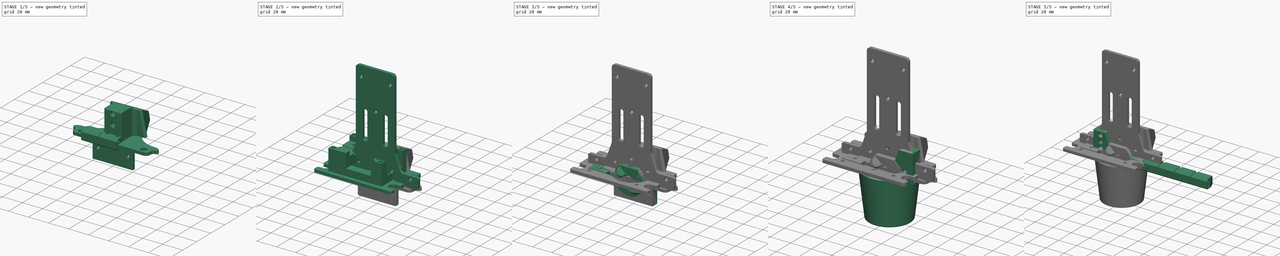
[diagram: build sequence overview — one tinted view per stage of 5, left to right]
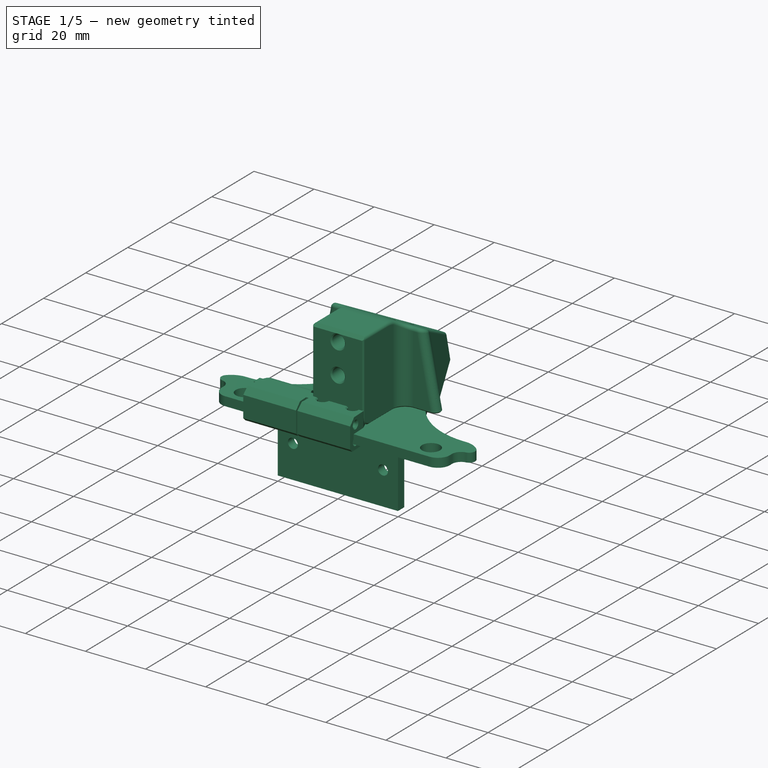
[diagram: stage 1 of 5 — iso view after this stage's code; geometry added in this stage tinted green]
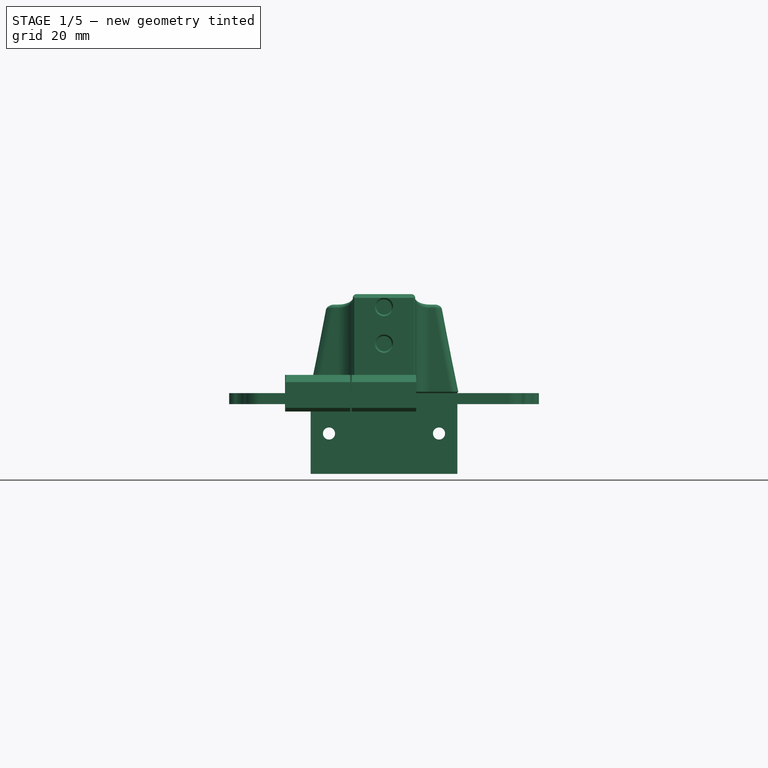
[diagram: stage 1 of 5 — front view after this stage's code; geometry added in this stage tinted green]
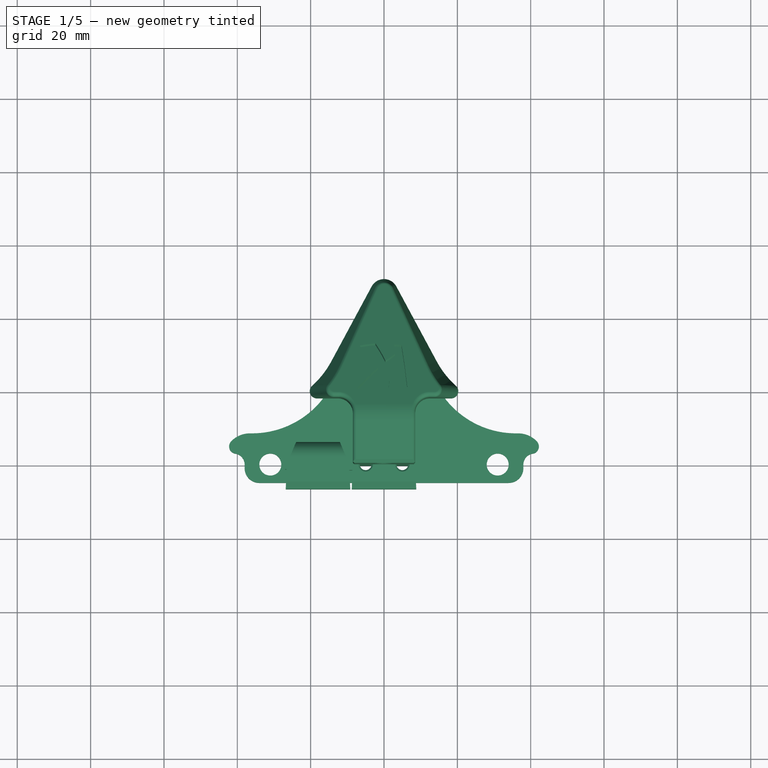
[diagram: stage 1 of 5 — top view after this stage's code; geometry added in this stage tinted green]
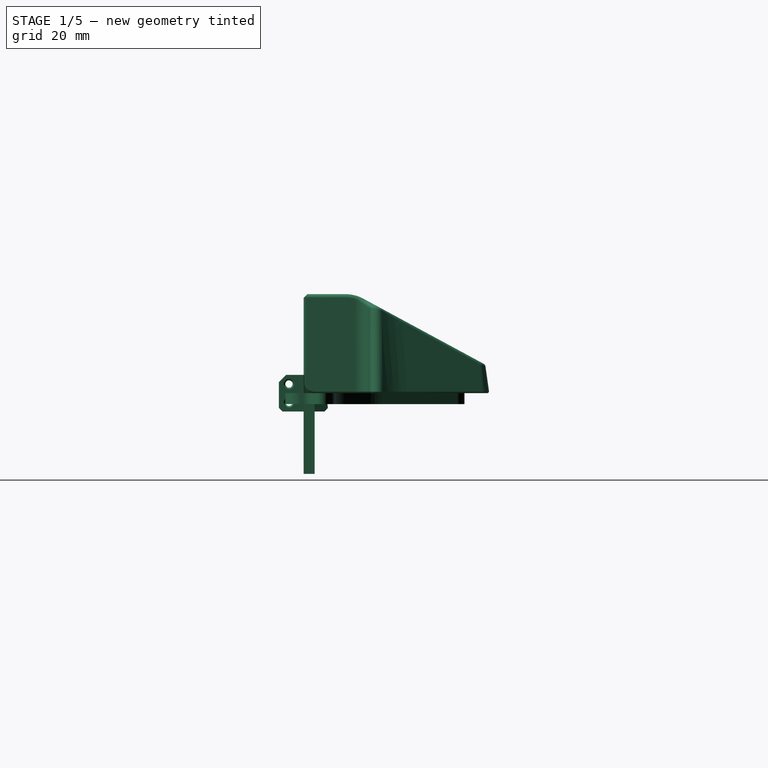
[diagram: stage 1 of 5 — right view after this stage's code; geometry added in this stage tinted green]
FCSTD DOCUMENT  (FreeCAD 2024.113R14555 (Git shallow))
Label: finger-filaflex
License: All rights reserved
LicenseURL: https://en.wikipedia.org/wiki/All_rights_reserved
objects: Sketcher::SketchObject×61, PartDesign::Chamfer×33, PartDesign::Pocket×31, PartDesign::Pad×25, PartDesign::Fillet×24, PartDesign::Body×20, App::Part×10, Part::Feature×7, PartDesign::Draft×7, Part::SubShapeBinder×7, App::Link×7, PartDesign::SubtractivePipe×6, PartDesign::FeatureBase×5, PartDesign::Mirrored×5, TechDraw::DrawProjGroupItem×5, TechDraw::DrawProjGroup×5, Part::Mirroring×3, PartDesign::Plane×2, PartDesign::SubShapeBinder×2, TechDraw::DrawSVGTemplate×2, +7 more types
note: 579 computed .brp shape members not serialized (recipe doc carries the construction recipe); baked Part::Feature solids carry a one-line shape summary decoded from their .brp
EXTERNAL_REF file=main-actuator.FCStd obj=Part

FEATURE [PartDesign::Body] Body012  label="PotBlanc"
  AutoGroupSolids = false
  ClaimAllChildren = false
  ExportMode = 0
  FixShape = 1
  Group = -> [Sketch038,Revolution,Fillet010]
  InvalidShape = false
  Origin = -> Origin019
  Placement = pos=(36,0,12) rot=(0,0,1;0rad)
  SingleSolid = true
  Tip = -> Fillet010
  TreeRank = 364
  ValidateShape = false
  _ExportChildren = -> [Revolution,Fillet010]
  _GroupVersion = 1
FEATURE [App::Link] Link001  label="Link001(PotBlanc)"
  AutoLinkLabel = true
  AutoPlacement = true
  LinkPlacement = pos=(-36,-8.94069e-06,12) rot=(0,0,1;0rad)
  LinkedObject = -> Body012
  Placement = pos=(-36,-8.94069e-06,12) rot=(0,0,1;0rad)
  SyncGroupVisibility = false
  TreeRank = 368
  _LinkVersion = 1
FEATURE [App::Part] Part007  label="EnsemblePot"
  ClaimAllChildren = false
  ExportMode = 1
  Group = -> [Body012,Link001]
  Origin = -> Origin020
  Placement = pos=(0,33,-7) rot=(0,0,1;0rad)
  TreeRank = 371
  _ExportChildren = -> [Body012,Link001]
  _GroupVersion = 1
FEATURE [Sketcher::SketchObject] Sketch039
  ArcFitTolerance = 1e-06
  AttachmentSupport = -> [XY_Plane019]
  ExternalBSplineMaxDegree = 5
  ExternalBSplineTolerance = 0.0001
  FixShape = 1
  FullyConstrained = true
  InternalTolerance = 1e-06
  InvalidShape = false
  MakeInternals = false
  MapMode = 5
  Placement = pos=(0,0,0) rot=(0,1,0;3.14159rad)
  Support = -> [XY_Plane019]
  TreeRank = 394
  ValidateShape = false
  sketch-geometry (10):
    g0: ArcOfCircle CenterX=-36 CenterY=33 CenterZ=0 NormalX=0 NormalY=0 NormalZ=1 AngleXU=0 Radius=24.5 StartAngle=4.71239 EndAngle=5.78914
    g1: LineSegment StartX=-36 StartY=8.5 StartZ=0 EndX=-41.2409 EndY=8.5 EndZ=0
    g2: LineSegment StartX=-41.2409 StartY=8.5 StartZ=0 EndX=-44 EndY=2 EndZ=0
    g3: LineSegment StartX=-44 StartY=2 StartZ=0 EndX=-44 EndY=-5 EndZ=0
    g4: LineSegment StartX=-44 StartY=-5 StartZ=0 EndX=0 EndY=-5 EndZ=0
    g5: LineSegment StartX=0 StartY=-5 StartZ=0 EndX=1e-15 EndY=30 EndZ=0
    g6: ArcOfCircle CenterX=0 CenterY=13.6105 CenterZ=0 NormalX=0 NormalY=0 NormalZ=1 AngleXU=0 Radius=16.3895 StartAngle=1.5708 EndAngle=2.64755
    g7: Circle CenterX=-41 CenterY=0 CenterZ=0 NormalX=0 NormalY=0 NormalZ=1 AngleXU=0 Radius=2
    g8: Circle CenterX=-31 CenterY=0 CenterZ=0 NormalX=0 NormalY=0 NormalZ=1 AngleXU=0 Radius=3
    g9: Circle CenterX=-5 CenterY=0 CenterZ=0 NormalX=0 NormalY=0 NormalZ=1 AngleXU=0 Radius=1.6
  constraints (31):
    c: Vertical(g0,g0)
    c: DistanceY(g0) = 33
    c: Radius(g0) = 24.5
    c: Coincident(g1,g0)
    c: Horizontal(g1)
    c: Coincident(g2,g1)
    c: Coincident(g3,g2)
    c: Vertical(g3)
    c: Coincident(g4,g3)
    c: PointOnObject(g4,g-2)
    c: Horizontal(g4)
    c: Coincident(g5,g4)
    c: PointOnObject(g5,g-2)
    c: DistanceX(g0) = -36
    c: Coincident(g6,g5)
    c: Tangent(g6,g0) = 1.5708
    c: PointOnObject(g6,g5)
    c: DistanceY(g-1,g5) = 30
    c: DistanceY(g4,g-1) = 5
    c: DistanceX(g4,g4) = 44
    c: Angle(g3,g2) = 2.74017
    c: DistanceY(g-1,g2) = 2
    c: PointOnObject(g7,g-1)
    c: PointOnObject(g8,g-1)
    c: PointOnObject(g9,g-1)
    c: DistanceX(g9,g-1) = 5
    c: Diameter(g9) = 3.2
    c: DistanceX(g7,g8) = 10
    c: DistanceX(g8,g9) = 26
    c: Diameter(g8) = 6
    c: Diameter(g7) = 4
FEATURE [PartDesign::Pad] Pad013
  AddSubType = 0
  AlongSketchNormal = false
  AutoTaperInnerAngle = true
  CheckUpToFaceLimits = true
  ClaimChildren = false
  Direction = (0,0,-1)
  Fit = 0
  FitJoin = 0
  FixShape = 1
  InnerFit = 0
  InnerFitJoin = 0
  InvalidShape = false
  Length = 3
  Length2 = 10
  Linearize = true
  NewSolid = false
  Profile = -> Sketch039
  ReferenceAxis = -> Sketch039 [N_Axis]
  Refine = true
  Suppress = false
  TaperInnerAngle = 0
  TaperInnerAngleRev = 0
  TreeRank = 396
  Type = 0
  ValidateShape = false
  _ProfileBasedVersion = 1
FEATURE [PartDesign::Mirrored] Mirrored001
  AddSubType = 0
  BaseFeature = -> Pad013
  CopyShape = false
  FixShape = 1
  InvalidShape = false
  MirrorPlane = -> Sketch039 [V_Axis]
  NewSolid = false
  OriginalSubs = -> [Pad013]
  Originals = -> [Pad013]
  ParallelTransform = true
  Refine = true
  SubTransform = true
  Suppress = false
  TreeRank = 397
  ValidateShape = false
  _Version = 3
FEATURE [PartDesign::Fillet] Fillet011
  AddSubType = 0
  Base = -> Mirrored001 [Edge5,Edge30,Edge8,Edge32]
  BaseFeature = -> Mirrored001
  FixShape = 1
  InvalidShape = false
  NewSolid = false
  Radius = 7
  Refine = true
  SupportTransform = false
  Suppress = false
  TreeRank = 398
  UseAllEdges = false
  ValidateShape = false
FEATURE [Sketcher::SketchObject] Sketch041
  ArcFitTolerance = 1e-06
  AttachmentSupport = -> [XY_Plane019]
  ExternalBSplineMaxDegree = 5
  ExternalBSplineTolerance = 0.0001
  ExternalGeometry = -> [Fillet011]
  FixShape = 1
  FullyConstrained = true
  InternalTolerance = 1e-06
  InvalidShape = false
  MakeInternals = false
  MapMode = 5
  Support = -> [XY_Plane019]
  TreeRank = 413
  ValidateShape = false
  sketch-geometry (5):
    g0: ArcOfCircle CenterX=41 CenterY=0 CenterZ=0 NormalX=0 NormalY=0 NormalZ=1 AngleXU=0 Radius=3 StartAngle=1.5708 EndAngle=3.14159
    g1: LineSegment StartX=38 StartY=0 StartZ=0 EndX=38 EndY=-8 EndZ=0
    g2: LineSegment StartX=47 StartY=3 StartZ=0 EndX=41 EndY=3 EndZ=0
    g3: LineSegment StartX=47 StartY=3 StartZ=0 EndX=47 EndY=-8 EndZ=0
    g4: LineSegment StartX=47 StartY=-8 StartZ=0 EndX=38 EndY=-8 EndZ=0
  constraints (13):
    c: Tangent(g0,g1) = -1.5708
    c: Tangent(g2,g0) = -1.5708
    c: Equal(g-4,g0)
    c: Coincident(g0,g-3)
    c: PointOnObject(g0,g-1)
    c: Coincident(g2,g3)
    c: Vertical(g3)
    c: Coincident(g3,g4)
    c: Coincident(g4,g1)
    c: Horizontal(g4)
    c: DistanceX(g-5,g3) = 3
    c: DistanceY(g3,g-5) = 3
    c: Horizontal(g2)
FEATURE [PartDesign::Pocket] Pocket019
  AddSubType = 1
  AlongSketchNormal = false
  AutoTaperInnerAngle = true
  BaseFeature = -> Fillet011
  CheckUpToFaceLimits = true
  ClaimChildren = false
  Direction = (0,0,-1)
  Fit = 0
  FitJoin = 0
  FixShape = 1
  InnerFit = 0
  InnerFitJoin = 0
  InvalidShape = false
  Length = 5
  Length2 = 10
  Linearize = true
  NewSolid = false
  Profile = -> Sketch041
  ReferenceAxis = -> Sketch041 [N_Axis]
  Refine = true
  Suppress = false
  TaperInnerAngle = 0
  TaperInnerAngleRev = 0
  TreeRank = 414
  Type = 1
  ValidateShape = false
  _ProfileBasedVersion = 1
  _Version = 1
FEATURE [PartDesign::Fillet] Fillet013
  AddSubType = 0
  Base = -> Pocket019 [Edge53]
  BaseFeature = -> Pocket019
  FixShape = 1
  InvalidShape = false
  NewSolid = false
  Radius = 2
  Refine = true
  SupportTransform = false
  Suppress = false
  TreeRank = 415
  UseAllEdges = false
  ValidateShape = false
FEATURE [PartDesign::Fillet] Fillet014
  AddSubType = 0
  Base = -> Fillet013 [Edge32]
  BaseFeature = -> Fillet013
  FixShape = 1
  InvalidShape = false
  NewSolid = false
  Radius = 4
  Refine = true
  SupportTransform = false
  Suppress = false
  TreeRank = 416
  UseAllEdges = false
  ValidateShape = false
FEATURE [PartDesign::Mirrored] Mirrored002
  AddSubType = 0
  BaseFeature = -> Fillet014
  CopyShape = false
  FixShape = 1
  InvalidShape = false
  MirrorPlane = -> YZ_Plane019
  NewSolid = false
  OriginalSubs = -> [Pocket019,Fillet013,Fillet014]
  Originals = -> [Pocket019,Fillet013,Fillet014]
  ParallelTransform = true
  Refine = true
  SubTransform = true
  Suppress = false
  TreeRank = 417
  ValidateShape = false
  _Version = 3
FEATURE [PartDesign::Body] Body015  label="GestionnaireTube"
  AutoGroupSolids = false
  ClaimAllChildren = false
  ExportMode = 0
  FixShape = 1
  Group = -> [Sketch043,Pad016,Fillet017,Sketch044,Sketch045,Pipe003,Pipe004,Sketch046,Pipe005,Sketch047,Pocket020,Mirrored,Chamfer027,Chamfer028,Chamfer029]
  InvalidShape = false
  Origin = -> Origin024
  Placement = pos=(0,-6.7,102) rot=(0,0,1;0rad)
  SingleSolid = true
  Tip = -> Chamfer029
  TreeRank = 446
  ValidateShape = false
  _ExportChildren = -> [Pad016,Fillet017,Pipe003,Pipe004,Pipe005,Pocket020,Mirrored,Chamfer027,Chamfer028,Chamfer029]
  _GroupVersion = 1
FEATURE [Sketcher::SketchObject] Sketch048
  ArcFitTolerance = 1e-06
  AttachmentSupport = -> [XZ_Plane022]
  ExternalBSplineMaxDegree = 5
  ExternalBSplineTolerance = 0.0001
  FixShape = 1
  FullyConstrained = true
  InternalTolerance = 1e-06
  InvalidShape = false
  MakeInternals = false
  MapMode = 5
  Placement = pos=(0,0,0) rot=(1,0,0;1.5708rad)
  Support = -> [XZ_Plane022]
  TreeRank = 472
  ValidateShape = false
  sketch-geometry (7):
    g0: LineSegment StartX=20 StartY=-22 StartZ=0 EndX=20 EndY=0 EndZ=0
    g1: LineSegment StartX=20 StartY=0 StartZ=0 EndX=-20 EndY=0 EndZ=0
    g2: LineSegment StartX=-20 StartY=0 StartZ=0 EndX=-20 EndY=-22 EndZ=0
    g3: LineSegment StartX=-20 StartY=-22 StartZ=0 EndX=20 EndY=-22 EndZ=0
    g4: GeomPoint [constr] X=7e-16 Y=-11 Z=0
    g5: Circle CenterX=15 CenterY=-11 CenterZ=0 NormalX=0 NormalY=0 NormalZ=1 AngleXU=0 Radius=1.65
    g6: Circle CenterX=-15 CenterY=-11 CenterZ=0 NormalX=0 NormalY=0 NormalZ=1 AngleXU=0 Radius=1.65
  constraints (17):
    c: Coincident(g0,g1)
    c: Coincident(g1,g2)
    c: Coincident(g2,g3)
    c: Coincident(g3,g0)
    c: Horizontal(g1)
    c: Horizontal(g3)
    c: Vertical(g0)
    c: Vertical(g2)
    c: Symmetric(g1,g0,g4)
    c: DistanceX(g1,g1) = 40
    c: Symmetric(g1,g0,g-1)
    c: Equal(g5,g6)
    c: Diameter(g5) = 3.3
    c: Symmetric(g5,g6,g-2)
    c: DistanceX(g5) = 15
    c: DistanceY(g6,g1) = 11
    c: Horizontal(g4,g6)
FEATURE [PartDesign::Pad] Pad017
  AddSubType = 0
  AlongSketchNormal = false
  AutoTaperInnerAngle = true
  CheckUpToFaceLimits = true
  ClaimChildren = false
  Direction = (0,-1,-2e-16)
  Fit = 0
  FitJoin = 0
  FixShape = 1
  InnerFit = 0
  InnerFitJoin = 0
  InvalidShape = false
  Length = 3
  Length2 = 10
  Linearize = true
  NewSolid = false
  Profile = -> Sketch048
  ReferenceAxis = -> Sketch048 [N_Axis]
  Refine = true
  Reversed = true
  Suppress = false
  TaperInnerAngle = 0
  TaperInnerAngleRev = 0
  TreeRank = 473
  Type = 0
  ValidateShape = true
  _ProfileBasedVersion = 1
FEATURE [PartDesign::Body] Body005  label="CliptubeServo"
  AutoGroupSolids = false
  ClaimAllChildren = false
  ExportMode = 0
  FixShape = 1
  Group = -> [Binder,Sketch027,Pad008,Sketch028,Sketch029,Pipe002,Chamfer011,Chamfer033,Chamfer039]
  InvalidShape = false
  Origin = -> Origin009
  Placement = pos=(0,0,3.5) rot=(0,0,1;0rad)
  SingleSolid = true
  Tip = -> Chamfer039
  TreeRank = 206
  ValidateShape = false
  _ExportChildren = -> [Binder,Pad008,Pipe002,Chamfer011,Chamfer033,Chamfer039]
  _GroupVersion = 1
FEATURE [App::Part] Part001  label="ServoMG996R001"
  ClaimAllChildren = false
  ExportMode = 1
  Group = -> [Solid003,Solid004,Body004,Body005,Body017]
  Origin = -> Origin004
  Placement = pos=(0,0,0) rot=(1,0,0;1.5708rad)
  TreeRank = 114
  _ExportChildren = -> [Solid003,Solid004,Body004,Body005,Body017]
  _GroupVersion = 1
FEATURE [App::Part] Part002  label="EnsembleServo"
  ClaimAllChildren = false
  ExportMode = 1
  Group = -> [Part001,Part003]
  Origin = -> Origin005
  Placement = pos=(72,9.08e-14,157) rot=(1,0,0;3.14159rad)
  TreeRank = 116
  _ExportChildren = -> [Part001,Part003]
  _GroupVersion = 1
FEATURE [TechDraw::DrawProjGroupItem] ProjItem004  label="Front004"
  CoarseView = false
  Direction = (0,1,0)
  Focus = 100
  HardHidden = false
  IsoCount = 0
  IsoHidden = false
  IsoVisible = false
  LockPosition = true
  Perspective = false
  Rotation = 0
  RotationVector = (0,0,-1)
  ScaleType = 2
  ScrubCount = 0
  SeamHidden = false
  SeamVisible = false
  SmoothHidden = false
  SmoothVisible = false
  Source = -> [Fillet016]
  TreeRank = 538
  Type = 0
  X = 0
  XDirection = (0,0,-1)
  Y = 0
FEATURE [TechDraw::DrawProjGroup] ProjGroup004
  Anchor = -> ProjItem004
  AutoDistribute = true
  LockPosition = false
  ProjectionType = 0
  Rotation = 0
  ScaleType = 0
  Source = -> [Fillet016]
  TreeRank = 539
  Views = -> [ProjItem004]
  X = 53.2734
  Y = 162.917
  spacingX = 15
  spacingY = 15
FEATURE [TechDraw::DrawProjGroupItem] ProjItem  label="Front"
  CoarseView = false
  Direction = (0,0,-1)
  Focus = 100
  HardHidden = false
  IsoCount = 0
  IsoHidden = false
  IsoVisible = false
  LockPosition = true
  Perspective = false
  Rotation = 0
  RotationVector = (0,1,0)
  ScaleType = 2
  ScrubCount = 0
  SeamHidden = false
  SeamVisible = false
  SmoothHidden = false
  SmoothVisible = false
  Source = -> [Mirrored002]
  TreeRank = 547
  Type = 0
  X = 0
  XDirection = (0,1,0)
  Y = 0
FEATURE [TechDraw::DrawProjGroup] ProjGroup
  Anchor = -> ProjItem
  AutoDistribute = true
  LockPosition = false
  ProjectionType = 0
  Rotation = 0
  ScaleType = 0
  Source = -> [Mirrored002]
  TreeRank = 548
  Views = -> [ProjItem]
  X = 128.675
  Y = 164.008
  spacingX = 15
  spacingY = 15
FEATURE [TechDraw::DrawProjGroupItem] ProjItem007  label="Front007"
  CoarseView = false
  Direction = (0,0,1)
  Focus = 100
  HardHidden = false
  IsoCount = 0
  IsoHidden = false
  IsoVisible = false
  LockPosition = true
  Perspective = false
  Rotation = 0
  RotationVector = (-1,0,0)
  ScaleType = 2
  ScrubCount = 0
  SeamHidden = false
  SeamVisible = false
  SmoothHidden = false
  SmoothVisible = false
  Source = -> [Chamfer036]
  TreeRank = 550
  Type = 0
  X = 0
  XDirection = (-1,0,0)
  Y = 0
FEATURE [TechDraw::DrawProjGroup] ProjGroup007
  Anchor = -> ProjItem007
  AutoDistribute = true
  LockPosition = false
  ProjectionType = 0
  Rotation = 0
  ScaleType = 0
  Source = -> [Chamfer036]
  TreeRank = 551
  Views = -> [ProjItem007]
  X = 200.771
  Y = 120.46
  spacingX = 15
  spacingY = 15
FEATURE [TechDraw::DrawProjGroupItem] ProjItem008  label="Front008"
  CoarseView = false
  Direction = (0,1,0)
  Focus = 100
  HardHidden = false
  IsoCount = 0
  IsoHidden = false
  IsoVisible = false
  LockPosition = true
  Perspective = false
  Rotation = 0
  RotationVector = (-1,0,0)
  ScaleType = 2
  ScrubCount = 0
  SeamHidden = false
  SeamVisible = false
  SmoothHidden = false
  SmoothVisible = false
  Source = -> [Chamfer030]
  TreeRank = 553
  Type = 0
  X = 0
  XDirection = (-1,0,0)
  Y = 0
FEATURE [TechDraw::DrawProjGroup] ProjGroup008
  Anchor = -> ProjItem008
  AutoDistribute = true
  LockPosition = false
  ProjectionType = 0
  Rotation = 0
  ScaleType = 0
  Source = -> [Chamfer030]
  TreeRank = 554
  Views = -> [ProjItem008]
  X = 185.056
  Y = 176.989
  spacingX = 15
  spacingY = 15
FEATURE [TechDraw::DrawPage] Page  label="Laser3mmFingerFlex"
  KeepUpdated = true
  NextBalloonIndex = 1
  ProjectionType = 0
  Template = -> Template
  TreeRank = 352
  Views = -> [ProjGroup004,ProjGroup,ProjGroup007,ProjGroup008]
FEATURE [App::DocumentObjectGroup] Group  label="Laser"
  ClaimAllChildren = true
  ExportMode = 1
  Group = -> [Page]
  TreeRank = 406
  _GroupVersion = 1
FEATURE [Sketcher::SketchObject] Sketch056
  ArcFitTolerance = 1e-06
  AttachmentSupport = -> [XY_Plane019]
  ExternalBSplineMaxDegree = 5
  ExternalBSplineTolerance = 0.0001
  ExternalGeometry = -> [Mirrored002]
  FixShape = 1
  FullyConstrained = true
  InternalTolerance = 1e-06
  InvalidShape = false
  MakeInternals = false
  MapMode = 5
  Support = -> [XY_Plane019]
  TreeRank = 555
  ValidateShape = false
  sketch-geometry (4):
    g0: LineSegment StartX=-14.4297 StartY=21.3823 StartZ=0 EndX=-3.41234 EndY=41.8379 EndZ=0
    g1: LineSegment StartX=14.4297 StartY=21.3823 StartZ=0 EndX=3.41234 EndY=41.8379 EndZ=0
    g2: ArcOfCircle CenterX=0 CenterY=40 CenterZ=0 NormalX=0 NormalY=0 NormalZ=1 AngleXU=0 Radius=3.8758 StartAngle=0.494046 EndAngle=2.64755
    g3: LineSegment StartX=-14.4297 StartY=21.3823 StartZ=0 EndX=14.4297 EndY=21.3823 EndZ=0
  constraints (8):
    c: Tangent(g0,g-3) = -1.5708
    c: Tangent(g1,g-4) = 1.5708
    c: PointOnObject(g2,g-2)
    c: Coincident(g2,g1)
    c: Tangent(g2,g0) = 1.5708
    c: DistanceY(g-1,g2) = 40
    c: Coincident(g3,g0)
    c: Coincident(g3,g1)
FEATURE [PartDesign::Pad] Pad024
  AddSubType = 0
  AlongSketchNormal = false
  AutoTaperInnerAngle = true
  BaseFeature = -> Mirrored002
  CheckUpToFaceLimits = true
  ClaimChildren = false
  Direction = (0,0,1)
  Fit = 0
  FitJoin = 0
  FixShape = 1
  InnerFit = 0
  InnerFitJoin = 0
  InvalidShape = false
  Length = 3
  Length2 = 10
  Linearize = true
  NewSolid = false
  Profile = -> Sketch056
  ReferenceAxis = -> Sketch056 [N_Axis]
  Refine = true
  Reversed = true
  Suppress = false
  TaperInnerAngle = 0
  TaperInnerAngleRev = 0
  TreeRank = 556
  Type = 0
  ValidateShape = true
  _ProfileBasedVersion = 1
FEATURE [PartDesign::Body] Body013  label="PlaqueCentrale"
  AutoGroupSolids = false
  ClaimAllChildren = false
  ExportMode = 0
  FixShape = 1
  Group = -> [Sketch039,Pad013,Mirrored001,Fillet011,Sketch041,Pocket019,Fillet013,Fillet014,Mirrored002,Sketch056,Pad024]
  InvalidShape = false
  Origin = -> Origin021
  Placement = pos=(0,0,-5) rot=(0,0,1;0rad)
  SingleSolid = true
  Tip = -> Pad024
  TreeRank = 393
  ValidateShape = false
  _ExportChildren = -> [Pad013,Mirrored001,Fillet011,Pocket019,Fillet013,Fillet014,Mirrored002,Pad024]
  _GroupVersion = 1
FEATURE [Part::SubShapeBinder] Import006  label="Import006(Pad024)"
  BindCopyOnChange = 0
  BindMode = 0
  ClaimChildren = false
  Context = -> <external main-actuator.FCStd>#Part [Part005.Part003.Link008.Part006.Body018.Import006.]
  EdgeTolerance = 1e-06
  FillStyle = 0
  FixShape = 1
  Fuse = false
  InvalidShape = false
  MakeFace = false
  MergeEdges = true
  OffsetFill = false
  OffsetIntersection = false
  OffsetJoinType = 0
  OffsetOpenResult = false
  Outline = false
  PartialLoad = false
  Relative = true
  SplitEdges = false
  Support = -> [Body013[Pad024.]]
  TightBound = false
  TreeRank = 568
  ValidateShape = false
  _Version = 8
FEATURE [Sketcher::SketchObject] Sketch057
  ArcFitTolerance = 1e-06
  AttachmentSupport = -> [XY_Plane024]
  ExternalBSplineMaxDegree = 5
  ExternalBSplineTolerance = 0.0001
  ExternalGeometry = -> [Import006]
  FixShape = 1
  FullyConstrained = true
  InternalTolerance = 1e-06
  InvalidShape = false
  MakeInternals = false
  MapMode = 5
  Support = -> [XY_Plane024]
  TreeRank = 567
  ValidateShape = false
  sketch-geometry (3):
    g0: ArcOfCircle CenterX=-36 CenterY=39.75 CenterZ=0 NormalX=0 NormalY=0 NormalZ=1 AngleXU=0 Radius=24.5 StartAngle=5.19074 EndAngle=5.78914
    g1: ArcOfCircle CenterX=36 CenterY=39.75 CenterZ=0 NormalX=0 NormalY=0 NormalZ=1 AngleXU=0 Radius=24.5 StartAngle=3.63564 EndAngle=4.23404
    g2: LineSegment StartX=24.7223 StartY=18 StartZ=0 EndX=-24.7223 EndY=18 EndZ=0
  constraints (8):
    c: Coincident(g0,g-6)
    c: Coincident(g0,g-6)
    c: Coincident(g1,g-7)
    c: Coincident(g1,g-7)
    c: Coincident(g2,g1)
    c: Coincident(g2,g0)
    c: Horizontal(g2)
    c: DistanceY(g-1,g1) = 18
FEATURE [PartDesign::Pad] Pad025
  AddSubType = 0
  AlongSketchNormal = false
  AutoTaperInnerAngle = true
  CheckUpToFaceLimits = true
  ClaimChildren = false
  Direction = (0,0,1)
  Fit = 0
  FitJoin = 0
  FixShape = 1
  InnerFit = 0
  InnerFitJoin = 0
  InvalidShape = false
  Length = 27
  Length2 = 10
  Linearize = true
  NewSolid = false
  Profile = -> Sketch057
  ReferenceAxis = -> Sketch057 [N_Axis]
  Refine = true
  Suppress = false
  TaperAngle = -8
  TaperInnerAngle = 0
  TaperInnerAngleRev = 0
  TreeRank = 569
  Type = 0
  ValidateShape = true
  _ProfileBasedVersion = 1
FEATURE [Sketcher::SketchObject] Sketch058
  ArcFitTolerance = 1e-06
  AttachmentSupport = -> [XY_Plane024]
  ExternalBSplineMaxDegree = 5
  ExternalBSplineTolerance = 0.0001
  FixShape = 1
  FullyConstrained = true
  InternalTolerance = 1e-06
  InvalidShape = false
  MakeInternals = false
  MapMode = 5
  Support = -> [XY_Plane024]
  TreeRank = 570
  ValidateShape = false
  sketch-geometry (4):
    g0: LineSegment StartX=-25.5 StartY=0 StartZ=0 EndX=25.5 EndY=0 EndZ=0
    g1: LineSegment StartX=25.5 StartY=0 StartZ=0 EndX=25.5 EndY=22 EndZ=0
    g2: LineSegment StartX=25.5 StartY=22 StartZ=0 EndX=-25.5 EndY=22 EndZ=0
    g3: LineSegment StartX=-25.5 StartY=22 StartZ=0 EndX=-25.5 EndY=0 EndZ=0
  constraints (11):
    c: Coincident(g0,g1)
    c: Coincident(g1,g2)
    c: Coincident(g2,g3)
    c: Coincident(g3,g0)
    c: Horizontal(g2)
    c: Vertical(g1)
    c: Vertical(g3)
    c: PointOnObject(g0,g-1)
    c: Symmetric(g0,g0,g-2)
    c: DistanceX(g2,g2) = 51
    c: DistanceY(g1,g1) = 22
FEATURE [PartDesign::Pad] Pad026
  AddSubType = 0
  AlongSketchNormal = false
  AutoTaperInnerAngle = true
  BaseFeature = -> Pad025
  CheckUpToFaceLimits = true
  ClaimChildren = false
  Direction = (0,0,1)
  Fit = 0
  FitJoin = 0
  FixShape = 1
  InnerFit = 0
  InnerFitJoin = 0
  InvalidShape = false
  Length = 27
  Length2 = 10
  Linearize = true
  NewSolid = false
  Profile = -> Sketch058
  ReferenceAxis = -> Sketch058 [N_Axis]
  Refine = true
  Suppress = false
  TaperInnerAngle = 0
  TaperInnerAngleRev = 0
  TreeRank = 571
  Type = 0
  ValidateShape = true
  _ProfileBasedVersion = 1
FEATURE [Sketcher::SketchObject] Sketch059
  ArcFitTolerance = 1e-06
  AttachmentSupport = -> [XY_Plane024]
  ExternalBSplineMaxDegree = 5
  ExternalBSplineTolerance = 0.0001
  ExternalGeometry = -> [Import006]
  FixShape = 1
  FullyConstrained = true
  InternalTolerance = 1e-06
  InvalidShape = false
  MakeInternals = false
  MapMode = 5
  Support = -> [XY_Plane024]
  TreeRank = 572
  ValidateShape = false
  sketch-geometry (2):
    g0: Circle CenterX=-36 CenterY=39.75 CenterZ=0 NormalX=0 NormalY=0 NormalZ=1 AngleXU=0 Radius=24.5
    g1: Circle CenterX=36 CenterY=39.75 CenterZ=0 NormalX=0 NormalY=0 NormalZ=1 AngleXU=0 Radius=24.5
  constraints (4):
    c: Coincident(g0,g-3)
    c: PointOnObject(g-3,g0)
    c: Symmetric(g1,g0,g-2)
    c: Equal(g1,g0)
FEATURE [PartDesign::Pocket] Pocket024
  AddSubType = 1
  AlongSketchNormal = false
  AutoTaperInnerAngle = true
  BaseFeature = -> Pad026
  CheckUpToFaceLimits = true
  ClaimChildren = false
  Direction = (0,0,-1)
  Fit = 0
  FitJoin = 0
  FixShape = 1
  InnerFit = 0
  InnerFitJoin = 0
  InvalidShape = false
  Length = 27
  Length2 = 10
  Linearize = true
  NewSolid = false
  Profile = -> Sketch059
  ReferenceAxis = -> Sketch059 [N_Axis]
  Refine = true
  Reversed = true
  Suppress = false
  TaperAngle = 8
  TaperInnerAngle = 0
  TaperInnerAngleRev = 0
  TreeRank = 573
  Type = 0
  ValidateShape = true
  _ProfileBasedVersion = 1
  _Version = 1
FEATURE [Sketcher::SketchObject] Sketch060
  ArcFitTolerance = 1e-06
  AttachmentSupport = -> [XY_Plane024]
  ExternalBSplineMaxDegree = 5
  ExternalBSplineTolerance = 0.0001
  FixShape = 1
  FullyConstrained = true
  InternalTolerance = 1e-06
  InvalidShape = false
  MakeInternals = false
  MapMode = 5
  Support = -> [XY_Plane024]
  TreeRank = 574
  ValidateShape = false
  sketch-geometry (8):
    g0: LineSegment StartX=-8.5 StartY=0 StartZ=0 EndX=-48.5 EndY=0 EndZ=0
    g1: LineSegment StartX=-48.5 StartY=0 StartZ=0 EndX=-48.5 EndY=18 EndZ=0
    g2: LineSegment StartX=-48.5 StartY=18 StartZ=0 EndX=-8.5 EndY=18 EndZ=0
    g3: LineSegment StartX=-8.5 StartY=18 StartZ=0 EndX=-8.5 EndY=0 EndZ=0
    g4: LineSegment StartX=8.5 StartY=0 StartZ=0 EndX=48.5 EndY=0 EndZ=0
    g5: LineSegment StartX=48.5 StartY=0 StartZ=0 EndX=48.5 EndY=18 EndZ=0
    g6: LineSegment StartX=48.5 StartY=18 StartZ=0 EndX=8.5 EndY=18 EndZ=0
    g7: LineSegment StartX=8.5 StartY=18 StartZ=0 EndX=8.5 EndY=0 EndZ=0
  constraints (23):
    c: Coincident(g0,g1)
    c: Coincident(g1,g2)
    c: Coincident(g2,g3)
    c: Coincident(g3,g0)
    c: Horizontal(g0)
    c: Horizontal(g2)
    c: Vertical(g1)
    c: Vertical(g3)
    c: PointOnObject(g0,g-1)
    c: DistanceY(g3,g3) = 18
    c: DistanceX(g0,g-1) = 8.5
    c: DistanceX(g2,g2) = 40
    c: Coincident(g4,g5)
    c: Coincident(g5,g6)
    c: Coincident(g6,g7)
    c: Coincident(g7,g4)
    c: Horizontal(g4)
    c: Horizontal(g6)
    c: Vertical(g5)
    c: Vertical(g7)
    c: PointOnObject(g4,g-1)
    c: Symmetric(g6,g2,g-2)
    c: Equal(g6,g2)
FEATURE [PartDesign::Pocket] Pocket025
  AddSubType = 1
  AlongSketchNormal = false
  AutoTaperInnerAngle = true
  BaseFeature = -> Pocket024
  CheckUpToFaceLimits = true
  ClaimChildren = false
  Direction = (0,0,-1)
  Fit = 0
  FitJoin = 0
  FixShape = 1
  InnerFit = 0
  InnerFitJoin = 0
  InvalidShape = false
  Length = 5
  Length2 = 10
  Linearize = true
  NewSolid = false
  Profile = -> Sketch060
  ReferenceAxis = -> Sketch060 [N_Axis]
  Refine = true
  Reversed = true
  Suppress = false
  TaperInnerAngle = 0
  TaperInnerAngleRev = 0
  TreeRank = 575
  Type = 1
  ValidateShape = true
  _ProfileBasedVersion = 1
  _Version = 1
FEATURE [Sketcher::SketchObject] Sketch061
  ArcFitTolerance = 1e-06
  AttachmentSupport = -> [YZ_Plane024]
  ExternalBSplineMaxDegree = 5
  ExternalBSplineTolerance = 0.0001
  FixShape = 1
  FullyConstrained = true
  InternalTolerance = 1e-06
  InvalidShape = false
  MakeInternals = false
  MapMode = 5
  Placement = pos=(0,0,0) rot=(0.57735,0.57735,0.57735;2.0944rad)
  Support = -> [YZ_Plane024]
  TreeRank = 576
  ValidateShape = false
  sketch-geometry (3):
    g0: LineSegment StartX=14 StartY=27 StartZ=0 EndX=51 EndY=27 EndZ=0
    g1: LineSegment StartX=51 StartY=27 StartZ=0 EndX=51 EndY=7 EndZ=0
    g2: LineSegment StartX=51 StartY=7 StartZ=0 EndX=14 EndY=27 EndZ=0
  constraints (9):
    c: Horizontal(g0)
    c: Coincident(g0,g1)
    c: Coincident(g1,g2)
    c: Coincident(g2,g0)
    c: DistanceY(g0) = 27
    c: Vertical(g1)
    c: DistanceX(g-1,g0) = 14
    c: DistanceX(g0,g0) = 37
    c: DistanceY(g1,g1) = 20
FEATURE [PartDesign::Pocket] Pocket026
  AddSubType = 1
  AlongSketchNormal = false
  AutoTaperInnerAngle = true
  BaseFeature = -> Pocket025
  CheckUpToFaceLimits = true
  ClaimChildren = false
  Direction = (-1,2e-16,-3e-16)
  Fit = 0
  FitJoin = 0
  FixShape = 1
  InnerFit = 0
  InnerFitJoin = 0
  InvalidShape = false
  Length = 5
  Length2 = 10
  Linearize = true
  Midplane = true
  NewSolid = false
  Profile = -> Sketch061
  ReferenceAxis = -> Sketch061 [N_Axis]
  Refine = true
  Suppress = false
  TaperInnerAngle = 0
  TaperInnerAngleRev = 0
  TreeRank = 577
  Type = 1
  ValidateShape = true
  _ProfileBasedVersion = 1
  _Version = 1
FEATURE [PartDesign::Fillet] Fillet022
  AddSubType = 0
  Base = -> Pocket026 [Edge26,Edge28]
  BaseFeature = -> Pocket026
  FixShape = 1
  InvalidShape = false
  NewSolid = false
  Radius = 2
  Refine = true
  SupportTransform = false
  Suppress = false
  TreeRank = 578
  UseAllEdges = false
  ValidateShape = true
FEATURE [PartDesign::Fillet] Fillet025
  AddSubType = 0
  Base = -> Fillet022 [Edge35,Edge20]
  BaseFeature = -> Fillet022
  FixShape = 1
  InvalidShape = false
  NewSolid = false
  Radius = 4
  Refine = true
  SupportTransform = false
  Suppress = false
  TreeRank = 581
  UseAllEdges = false
  ValidateShape = true
FEATURE [PartDesign::Fillet] Fillet026
  AddSubType = 0
  Base = -> Fillet025 [Edge6]
  BaseFeature = -> Fillet025
  FixShape = 1
  InvalidShape = false
  NewSolid = false
  Radius = 3
  Refine = true
  SupportTransform = false
  Suppress = false
  TreeRank = 582
  UseAllEdges = false
  ValidateShape = true
FEATURE [PartDesign::Fillet] Fillet027
  AddSubType = 0
  Base = -> Fillet026 [Edge48]
  BaseFeature = -> Fillet026
  FixShape = 1
  InvalidShape = false
  NewSolid = false
  Radius = 10
  Refine = true
  SupportTransform = false
  Suppress = false
  TreeRank = 583
  UseAllEdges = false
  ValidateShape = true
FEATURE [PartDesign::Chamfer] Chamfer040
  AddSubType = 0
  Angle = 45
  Base = -> Fillet027 [Edge30]
  BaseFeature = -> Fillet027
  ChamferType = 0
  FixShape = 1
  FlipDirection = false
  InvalidShape = false
  NewSolid = false
  Refine = true
  Size = 1
  Size2 = 1
  SupportTransform = false
  Suppress = false
  TreeRank = 584
  UseAllEdges = false
  ValidateShape = true
FEATURE [PartDesign::Chamfer] Chamfer041
  AddSubType = 0
  Angle = 45
  Base = -> Chamfer040 [Edge36]
  BaseFeature = -> Chamfer040
  ChamferType = 0
  FixShape = 1
  FlipDirection = false
  InvalidShape = false
  NewSolid = false
  Refine = true
  Size = 0.4
  Size2 = 1
  SupportTransform = false
  Suppress = false
  TreeRank = 585
  UseAllEdges = false
  ValidateShape = true
FEATURE [PartDesign::Fillet] Fillet028
  AddSubType = 0
  Base = -> Chamfer041 [Edge48]
  BaseFeature = -> Chamfer041
  FixShape = 1
  InvalidShape = false
  NewSolid = false
  Radius = 1
  Refine = true
  SupportTransform = false
  Suppress = false
  TreeRank = 586
  UseAllEdges = false
  ValidateShape = true
FEATURE [Part::Part2DObjectPython] ShapeString  # Draft 2D object (typed FeaturePython)
  FixShape = 1
  FontFile = G:/Mon Drive/02 - LES KARIBOUS/2024/COMMUNICATION/baveuse/baveuse.otf
  InvalidShape = false
  MakeFace = true
  Placement = pos=(6.51351,25.3688,12.2079) rot=(0,0.245248,0.96946;3.14159rad)
  Size = 7
  String = K
  Tracking = 0
  TreeRank = 587
  ValidateShape = false
FEATURE [PartDesign::SubShapeBinder] Binder001  label="Binder001(ShapeString)"
  BindCopyOnChange = 0
  BindMode = 0
  ClaimChildren = false
  Context = -> <external main-actuator.FCStd>#Part [Part005.Part003.Link008.Part006.Body018.Binder001.]
  EdgeTolerance = 1e-06
  FillStyle = 0
  FixShape = 1
  Fuse = false
  InvalidShape = false
  MakeFace = true
  MergeEdges = true
  OffsetFill = false
  OffsetIntersection = false
  OffsetJoinType = 0
  OffsetOpenResult = false
  Outline = false
  PartialLoad = false
  Relative = true
  SplitEdges = false
  Support = -> [ShapeString]
  TightBound = false
  TreeRank = 588
  ValidateShape = false
  _Version = 8
FEATURE [PartDesign::Pocket] Pocket027
  AddSubType = 1
  AlongSketchNormal = false
  AutoTaperInnerAngle = true
  BaseFeature = -> Fillet028
  CheckUpToFaceLimits = true
  ClaimChildren = false
  Direction = (1e-16,-0.475517,-0.879707)
  Fit = 0
  FitJoin = 0
  FixShape = 1
  InnerFit = 0
  InnerFitJoin = 0
  InvalidShape = false
  Length = 1
  Length2 = 10
  Linearize = true
  NewSolid = false
  Profile = -> Binder001
  Refine = true
  Suppress = false
  TaperInnerAngle = 0
  TaperInnerAngleRev = 0
  TreeRank = 589
  Type = 0
  ValidateShape = true
  _ProfileBasedVersion = 1
  _Version = 1
FEATURE [Part::SubShapeBinder] Import007  label="Import007(Fillet016)"
  BindCopyOnChange = 0
  BindMode = 0
  ClaimChildren = false
  Context = -> <external main-actuator.FCStd>#Part [Part005.Part003.Link008.Part006.Body018.Import007.]
  EdgeTolerance = 1e-06
  FillStyle = 0
  FixShape = 1
  Fuse = false
  InvalidShape = false
  MakeFace = false
  MergeEdges = true
  OffsetFill = false
  OffsetIntersection = false
  OffsetJoinType = 0
  OffsetOpenResult = false
  Outline = false
  PartialLoad = false
  Relative = true
  SplitEdges = false
  Support = -> [Body011[Fillet016.]]
  TightBound = false
  TreeRank = 591
  ValidateShape = false
  _Version = 8
FEATURE [Sketcher::SketchObject] Sketch062
  ArcFitTolerance = 1e-06
  AttachmentSupport = -> [Pocket027]
  ExternalBSplineMaxDegree = 5
  ExternalBSplineTolerance = 0.0001
  ExternalGeometry = -> [Import007]
  FixShape = 1
  FullyConstrained = true
  InternalTolerance = 1e-06
  InvalidShape = false
  MakeInternals = false
  MapMode = 5
  Placement = pos=(0,0,0) rot=(1,0,0;1.5708rad)
  Support = -> [Pocket027]
  TreeRank = 590
  ValidateShape = false
  sketch-geometry (2):
    g0: Circle CenterX=0 CenterY=23.5 CenterZ=0 NormalX=0 NormalY=0 NormalZ=1 AngleXU=0 Radius=2.1
    g1: Circle CenterX=0 CenterY=13.5 CenterZ=0 NormalX=0 NormalY=0 NormalZ=1 AngleXU=0 Radius=2.1
  constraints (4):
    c: Coincident(g0,g-3)
    c: Coincident(g1,g-4)
    c: Equal(g0,g1)
    c: Diameter(g0) = 4.2
FEATURE [PartDesign::Pocket] Pocket028
  AddSubType = 1
  AlongSketchNormal = false
  AutoTaperInnerAngle = true
  BaseFeature = -> Pocket027
  CheckUpToFaceLimits = true
  ClaimChildren = false
  Direction = (0,1,-2e-16)
  Fit = 0
  FitJoin = 0
  FixShape = 1
  InnerFit = 0
  InnerFitJoin = 0
  InvalidShape = false
  Length = 10
  Length2 = 10
  Linearize = true
  NewSolid = false
  Profile = -> Sketch062
  ReferenceAxis = -> Sketch062 [N_Axis]
  Refine = true
  Suppress = false
  TaperInnerAngle = 0
  TaperInnerAngleRev = 0
  TreeRank = 592
  Type = 0
  ValidateShape = true
  _ProfileBasedVersion = 1
  _Version = 1
FEATURE [Sketcher::SketchObject] Sketch063
  ArcFitTolerance = 1e-06
  AttachmentSupport = -> [XY_Plane024]
  ExternalBSplineMaxDegree = 5
  ExternalBSplineTolerance = 0.0001
  ExternalGeometry = -> [Import006]
  FixShape = 1
  FullyConstrained = true
  InternalTolerance = 1e-06
  InvalidShape = false
  MakeInternals = false
  MapMode = 5
  Support = -> [XY_Plane024]
  TreeRank = 593
  ValidateShape = false
  sketch-geometry (2):
    g0: Circle CenterX=5 CenterY=6.75 CenterZ=0 NormalX=0 NormalY=0 NormalZ=1 AngleXU=0 Radius=2.1
    g1: Circle CenterX=-5 CenterY=6.75 CenterZ=0 NormalX=0 NormalY=0 NormalZ=1 AngleXU=0 Radius=2.1
  constraints (4):
    c: Coincident(g0,g-3)
    c: Coincident(g1,g-4)
    c: Equal(g1,g0)
    c: Diameter(g1) = 4.2
FEATURE [PartDesign::Pocket] Pocket029
  AddSubType = 1
  AlongSketchNormal = false
  AutoTaperInnerAngle = true
  BaseFeature = -> Pocket028
  CheckUpToFaceLimits = true
  ClaimChildren = false
  Direction = (0,0,-1)
  Fit = 0
  FitJoin = 0
  FixShape = 1
  InnerFit = 0
  InnerFitJoin = 0
  InvalidShape = false
  Length = 10
  Length2 = 10
  Linearize = true
  NewSolid = false
  Profile = -> Sketch063
  ReferenceAxis = -> Sketch063 [N_Axis]
  Refine = true
  Reversed = true
  Suppress = false
  TaperInnerAngle = 0
  TaperInnerAngleRev = 0
  TreeRank = 594
  Type = 0
  ValidateShape = true
  _ProfileBasedVersion = 1
  _Version = 1
FEATURE [PartDesign::Chamfer] Chamfer042
  AddSubType = 0
  Angle = 45
  Base = -> Pocket029 [Edge49,Edge50,Edge28,Edge27]
  BaseFeature = -> Pocket029
  ChamferType = 0
  FixShape = 1
  FlipDirection = false
  InvalidShape = false
  NewSolid = false
  Refine = true
  Size = 0.4
  Size2 = 1
  SupportTransform = false
  Suppress = false
  TreeRank = 595
  UseAllEdges = false
  ValidateShape = true
FEATURE [PartDesign::Body] Body018  label="NezCentral-02"
  AutoGroupSolids = false
  ClaimAllChildren = false
  ExportMode = 0
  FixShape = 1
  Group = -> [Sketch057,Import006,Pad025,Sketch058,Pad026,Sketch059,Pocket024,Sketch060,Pocket025,Sketch061,Pocket026,Fillet022,Fillet025,Fillet026,Fillet027,Chamfer040,Chamfer041,Fillet028,Binder001,Pocket027,Sketch062,Import007,Pocket028,Sketch063,Pocket029,Chamfer042]
  InvalidShape = false
  Origin = -> Origin027
  Placement = pos=(0,-6.75,-5) rot=(0,0,1;0rad)
  SingleSolid = true
  Tip = -> Chamfer042
  TreeRank = 566
  ValidateShape = false
  _ExportChildren = -> [Import006,Pad025,Pad026,Pocket024,Pocket025,Pocket026,Fillet022,Fillet025,Fillet026,Fillet027,Chamfer040,Chamfer041,Fillet028,Pocket027,Import007,Pocket028,Pocket029,Chamfer042]
  _GroupVersion = 1
FEATURE [App::Part] Part006  label="EnsembleCentralFinger"
  ClaimAllChildren = false
  ExportMode = 1
  Group = -> [Body009,Body013,Body018,ShapeString]
  Origin = -> Origin017
  TreeRank = 321
  _ExportChildren = -> [Body009,Body013,Body018,ShapeString]
  _GroupVersion = 1
FEATURE [TechDraw::DrawSVGTemplate] Template001
  Height = 210
  Orientation = 1
  Template = <path>
  TreeRank = 597
  Width = 297
FEATURE [TechDraw::DrawProjGroupItem] ProjItem009  label="Front009"
  CoarseView = false
  Direction = (0,0,-1)
  Focus = 100
  HardHidden = false
  IsoCount = 0
  IsoHidden = false
  IsoVisible = false
  LockPosition = true
  Perspective = false
  Rotation = 0
  RotationVector = (0,1,0)
  ScaleType = 2
  ScrubCount = 0
  SeamHidden = false
  SeamVisible = false
  SmoothHidden = false
  SmoothVisible = false
  Source = -> [Pad024]
  TreeRank = 600
  Type = 0
  X = 0
  XDirection = (0,1,0)
  Y = 0
FEATURE [TechDraw::DrawProjGroup] ProjGroup009
  Anchor = -> ProjItem009
  AutoDistribute = true
  LockPosition = false
  ProjectionType = 0
  Rotation = 0
  ScaleType = 0
  Source = -> [Pad024]
  TreeRank = 601
  Views = -> [ProjItem009]
  X = 27.0732
  Y = 163.611
  spacingX = 15
  spacingY = 15
FEATURE [TechDraw::DrawPage] Page001  label="Laser3mm-Nez02"
  KeepUpdated = true
  NextBalloonIndex = 1
  ProjectionType = 0
  Template = -> Template001
  TreeRank = 598
  Views = -> [ProjGroup009]
FEATURE [Part::Feature] Solid005  label="FingerLeft"
  FixShape = 1
  InvalidShape = false
  TreeRank = 602
  ValidateShape = false
  shape: bbox 107.6 x 13.34 x 10 mm, 186 faces (baked)
FEATURE [PartDesign::FeatureBase] Clone003
  BaseFeature = -> Solid005
  FixShape = 1
  InvalidShape = false
  NewSolid = false
  Suppress = false
  TreeRank = 615
  ValidateShape = true
FEATURE [PartDesign::FeatureBase] Clone004
  BaseFeature = -> Solid005
  FixShape = 1
  InvalidShape = false
  NewSolid = false
  Suppress = false
  TreeRank = 626
  ValidateShape = true
FEATURE [Sketcher::SketchObject] Sketch064
  ArcFitTolerance = 1e-06
  AttachmentSupport = -> [XY_Plane025]
  ExternalBSplineMaxDegree = 5
  ExternalBSplineTolerance = 0.0001
  FixShape = 1
  FullyConstrained = false
  InternalTolerance = 1e-06
  InvalidShape = false
  MakeInternals = false
  MapMode = 5
  Support = -> [XY_Plane025]
  TreeRank = 628
  ValidateShape = false
  sketch-geometry (4):
    g0: LineSegment StartX=-104.306 StartY=14.4169 StartZ=0 EndX=-9.02854 EndY=14.4169 EndZ=0
    g1: LineSegment StartX=-9.02854 StartY=14.4169 StartZ=0 EndX=-9.02854 EndY=-10.5441 EndZ=0
    g2: LineSegment StartX=-9.02854 StartY=-10.5441 StartZ=0 EndX=-104.306 EndY=-10.5441 EndZ=0
    g3: LineSegment StartX=-104.306 StartY=-10.5441 StartZ=0 EndX=-104.306 EndY=14.4169 EndZ=0
  constraints (8):
    c: Coincident(g0,g1)
    c: Coincident(g1,g2)
    c: Coincident(g2,g3)
    c: Coincident(g3,g0)
    c: Horizontal(g0)
    c: Horizontal(g2)
    c: Vertical(g1)
    c: Vertical(g3)
FEATURE [PartDesign::Pocket] Pocket030
  AddSubType = 1
  AlongSketchNormal = false
  AutoTaperInnerAngle = true
  BaseFeature = -> Clone003
  CheckUpToFaceLimits = true
  ClaimChildren = false
  Direction = (0,0,-1)
  Fit = 0
  FitJoin = 0
  FixShape = 1
  InnerFit = 0
  InnerFitJoin = 0
  InvalidShape = false
  Length = 5
  Length2 = 10
  Linearize = true
  Midplane = true
  NewSolid = false
  Profile = -> Sketch064
  ReferenceAxis = -> Sketch064 [N_Axis]
  Refine = true
  Suppress = false
  TaperInnerAngle = 0
  TaperInnerAngleRev = 0
  TreeRank = 629
  Type = 1
  ValidateShape = true
  _ProfileBasedVersion = 1
  _Version = 1
FEATURE [PartDesign::Body] Body019
  AutoGroupSolids = false
  BaseFeature = -> Solid005
  ClaimAllChildren = false
  ExportMode = 0
  FixShape = 1
  Group = -> [Clone003,Sketch064,Pocket030]
  InvalidShape = false
  Origin = -> Origin029
  SingleSolid = true
  Tip = -> Pocket030
  TreeRank = 616
  ValidateShape = false
  _ExportChildren = -> [Clone003,Pocket030]
  _GroupVersion = 1
FEATURE [Sketcher::SketchObject] Sketch065
  ArcFitTolerance = 1e-06
  AttachmentSupport = -> [XY_Plane026]
  ExternalBSplineMaxDegree = 5
  ExternalBSplineTolerance = 0.0001
  FixShape = 1
  FullyConstrained = false
  InternalTolerance = 1e-06
  InvalidShape = false
  MakeInternals = false
  MapMode = 5
  Support = -> [XY_Plane026]
  TreeRank = 630
  ValidateShape = false
  sketch-geometry (8):
    g0: LineSegment StartX=-113.936 StartY=18.6334 StartZ=0 EndX=-27.0027 EndY=18.6334 EndZ=0
    g1: LineSegment StartX=-27.0027 StartY=18.6334 StartZ=0 EndX=-27.0027 EndY=-19.6844 EndZ=0
    g2: LineSegment StartX=-27.0027 StartY=-19.6844 StartZ=0 EndX=-113.936 EndY=-19.6844 EndZ=0
    g3: LineSegment StartX=-113.936 StartY=-19.6844 StartZ=0 EndX=-113.936 EndY=18.6334 EndZ=0
    g4: LineSegment StartX=14.6078 StartY=9.62095 StartZ=0 EndX=-8.99671 EndY=9.62095 EndZ=0
    g5: LineSegment StartX=-8.99671 StartY=9.62095 StartZ=0 EndX=-8.99671 EndY=-15.8434 EndZ=0
    g6: LineSegment StartX=-8.99671 StartY=-15.8434 StartZ=0 EndX=14.6078 EndY=-15.8434 EndZ=0
    g7: LineSegment StartX=14.6078 StartY=-15.8434 StartZ=0 EndX=14.6078 EndY=9.62095 EndZ=0
  constraints (16):
    c: Coincident(g0,g1)
    c: Coincident(g1,g2)
    c: Coincident(g2,g3)
    c: Coincident(g3,g0)
    c: Horizontal(g0)
    c: Horizontal(g2)
    c: Vertical(g1)
    c: Vertical(g3)
    c: Coincident(g4,g5)
    c: Coincident(g5,g6)
    c: Coincident(g6,g7)
    c: Coincident(g7,g4)
    c: Horizontal(g4)
    c: Horizontal(g6)
    c: Vertical(g5)
    c: Vertical(g7)
FEATURE [PartDesign::Pocket] Pocket031
  AddSubType = 1
  AlongSketchNormal = false
  AutoTaperInnerAngle = true
  BaseFeature = -> Clone004
  CheckUpToFaceLimits = true
  ClaimChildren = false
  Direction = (0,0,-1)
  Fit = 0
  FitJoin = 0
  FixShape = 1
  InnerFit = 0
  InnerFitJoin = 0
  InvalidShape = false
  Length = 5
  Length2 = 10
  Linearize = true
  Midplane = true
  NewSolid = false
  Profile = -> Sketch065
  ReferenceAxis = -> Sketch065 [N_Axis]
  Refine = true
  Suppress = false
  TaperInnerAngle = 0
  TaperInnerAngleRev = 0
  TreeRank = 631
  Type = 1
  ValidateShape = true
  _ProfileBasedVersion = 1
  _Version = 1
FEATURE [PartDesign::Body] Body020
  AutoGroupSolids = false
  BaseFeature = -> Solid005
  ClaimAllChildren = false
  ExportMode = 0
  FixShape = 1
  Group = -> [Clone004,Sketch065,Pocket031]
  InvalidShape = false
  Origin = -> Origin030
  Placement = pos=(-1.90261,-6.66579,0) rot=(0,0,-1;0.785398rad)
  SingleSolid = true
  Tip = -> Pocket031
  TreeRank = 627
  ValidateShape = false
  _ExportChildren = -> [Clone004,Pocket031]
  _GroupVersion = 1
FEATURE [App::Link] Link003  label="Link003(Body020)"
  AutoLinkLabel = true
  AutoPlacement = true
  LinkPlacement = pos=(-20.882,2.81361,0) rot=(0,0,-1;1.5708rad)
  LinkedObject = -> Body020
  Placement = pos=(-20.882,2.81361,0) rot=(0,0,-1;1.5708rad)
  SyncGroupVisibility = false
  TreeRank = 632
  _LinkVersion = 1
FEATURE [App::Link] Link004  label="Link004(*Body020)"
  AutoLinkLabel = true
  AutoPlacement = true
  LinkPlacement = pos=(-27.4782,22.497,0) rot=(0,0,1;3.9619rad)
  LinkedObject = -> Link003
  Placement = pos=(-27.4782,22.497,0) rot=(0,0,1;3.9619rad)
  SyncGroupVisibility = false
  TreeRank = 633
  _LinkVersion = 1
FEATURE [App::Link] Link005  label="Link005(*Body020)"
  AutoLinkLabel = true
  AutoPlacement = true
  LinkPlacement = pos=(-18.9135,41.0436,0) rot=(0,0,1;3.24631rad)
  LinkedObject = -> Link004
  Placement = pos=(-18.9135,41.0436,0) rot=(0,0,1;3.24631rad)
  SyncGroupVisibility = false
  TreeRank = 634
  _LinkVersion = 1
FEATURE [App::Link] Link006  label="Link006(*Body020)"
  AutoLinkLabel = true
  AutoPlacement = true
  LinkPlacement = pos=(0.744947,50.1014,0) rot=(0,0,1;2.42601rad)
  LinkedObject = -> Link005
  Placement = pos=(0.744947,50.1014,0) rot=(0,0,1;2.42601rad)
  SyncGroupVisibility = false
  TreeRank = 635
  _LinkVersion = 1
FEATURE [App::Part] Part009  label="FingerLeftClose"
  ClaimAllChildren = false
  ExportMode = 1
  Group = -> [Solid005,Body019,Body020,Link003,Link004,Link005,Link006]
  Origin = -> Origin028
  TreeRank = 605
  _ExportChildren = -> [Solid005,Body019,Body020,Link003,Link004,Link005,Link006]
  _GroupVersion = 1
FEATURE [App::Part] Part004  label="EnsembleFingerLeft"
  ClaimAllChildren = false
  ExportMode = 1
  Group = -> [Body,Body001,Part,Body002,Body014,Part009]
  Origin = -> Origin010
  Placement = pos=(-36,0,0) rot=(0,0,1;0rad)
  TreeRank = 228
  _ExportChildren = -> [Body,Body001,Part,Body002,Body014,Part009]
  _GroupVersion = 1
FEATURE [Part::Feature] Compound  label="Body021 (Mirror #4)"
  FixShape = 1
  InvalidShape = false
  Placement = pos=(-36.2,-107.2,73.3) rot=(0,0,1;0rad)
  TreeRank = 678
  ValidateShape = false
  shape: bbox 53 x 57.26 x 10 mm, 219 faces, 6 solids (baked)
FEATURE [App::Part] Part005  label="EnsembleFingerRight"
  ClaimAllChildren = false
  ExportMode = 1
  Group = -> [Body007,Body006,Body008,Part__Mirroring,Part__Mirroring001,Part__Mirroring002,Link,Link002,Compound]
  Origin = -> Origin014
  Placement = pos=(36,0,0) rot=(0,0,1;0rad)
  TreeRank = 285
  _ExportChildren = -> [Part__Mirroring,Part__Mirroring001,Part__Mirroring002,Link,Link002,Compound]
  _GroupVersion = 1
FEATURE [App::Part] Part008  label="finger-actuator"
  ClaimAllChildren = false
  ExportMode = 1
  Group = -> [Part004,Part005,Part006,Body011,Part007,Body015,Body016]
  Origin = -> Origin022
  TreeRank = 409
  _ExportChildren = -> [Part004,Part005,Part006,Body011,Part007,Body015,Body016]
  _GroupVersion = 1
note: 2 file-system paths scrubbed to <path> (originals preserved in the JSON sidecar)

RESOLVED EXTERNAL PARTS (link-assembly join: the EXTERNAL_REF files above that resolve inside this repo's crawl, each included once):
---- part main-actuator.FCStd = doc fcstd_d0ad67d6f4f1 (84396 chars; too large to inline — full recipe in that document) ----
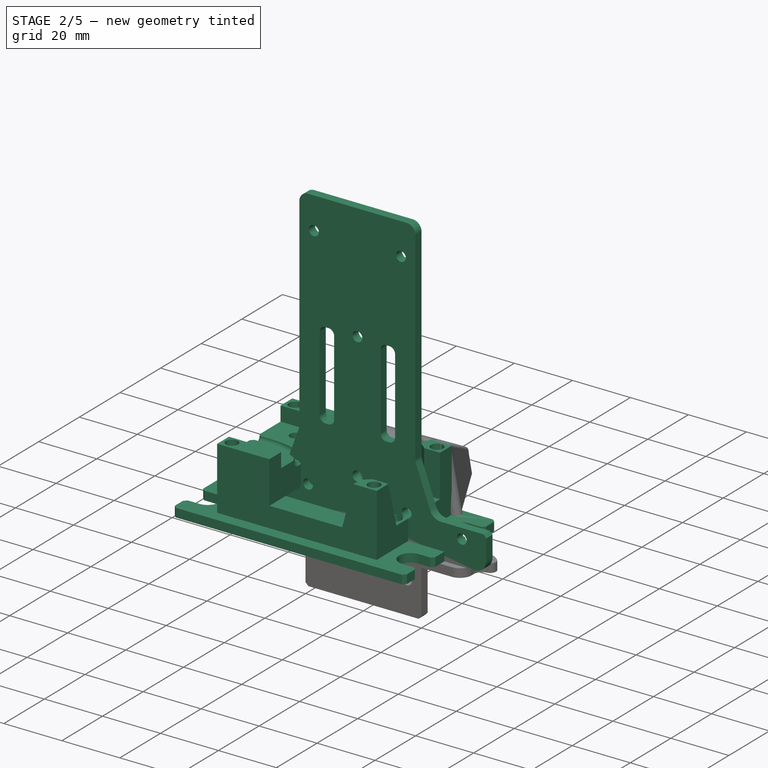
[diagram: stage 2 of 5 — iso view after this stage's code; geometry added in this stage tinted green]
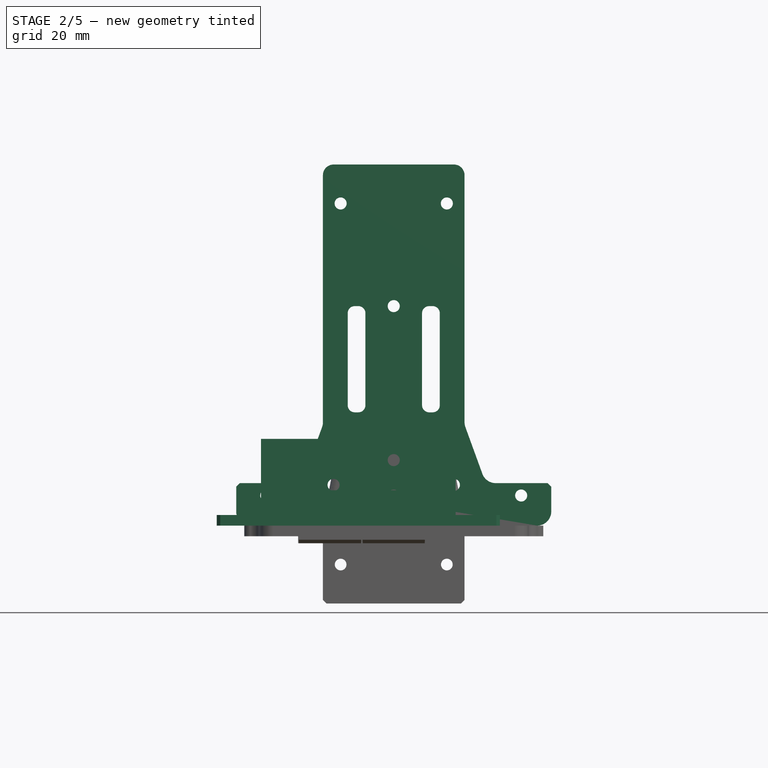
[diagram: stage 2 of 5 — front view after this stage's code; geometry added in this stage tinted green]
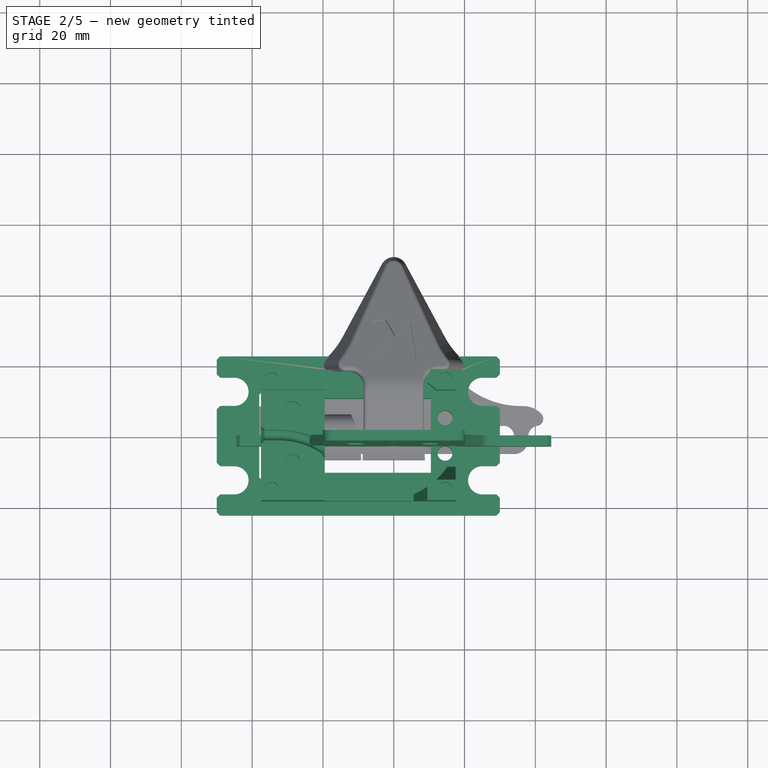
[diagram: stage 2 of 5 — top view after this stage's code; geometry added in this stage tinted green]
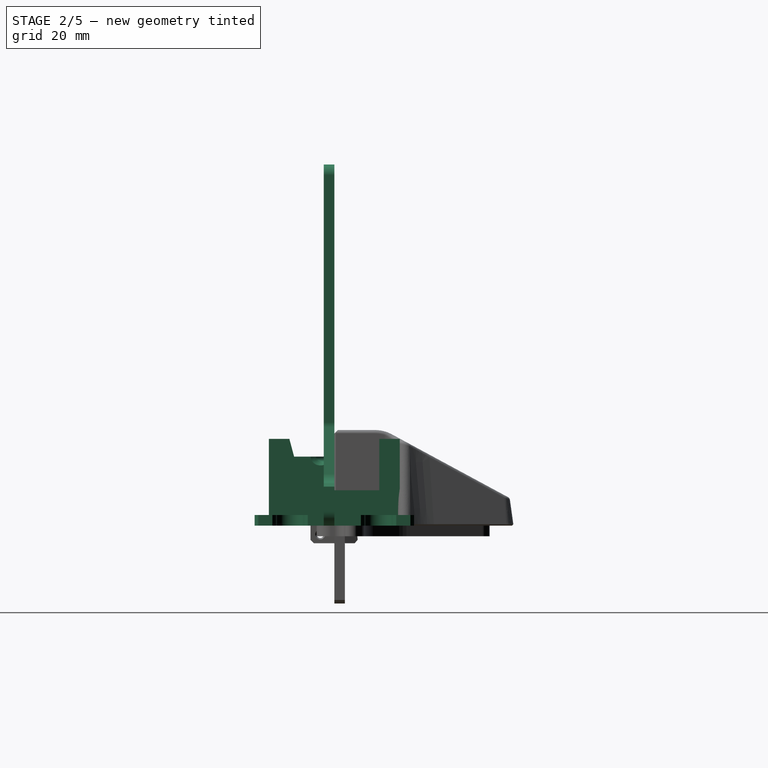
[diagram: stage 2 of 5 — right view after this stage's code; geometry added in this stage tinted green]
FEATURE [Sketcher::SketchObject] Sketch022
  ArcFitTolerance = 1e-06
  AttachmentSupport = -> [XY_Plane008]
  ExternalBSplineMaxDegree = 5
  ExternalBSplineTolerance = 0.0001
  FixShape = 1
  FullyConstrained = true
  InternalTolerance = 1e-06
  InvalidShape = false
  MakeInternals = false
  MapMode = 5
  Support = -> [XY_Plane008]
  TreeRank = 186
  ValidateShape = false
  sketch-geometry (19):
    g0: Circle CenterX=-34.5 CenterY=5 CenterZ=0 NormalX=0 NormalY=0 NormalZ=1 AngleXU=0 Radius=2.1
    g1: Circle CenterX=-34.5 CenterY=-5 CenterZ=0 NormalX=0 NormalY=0 NormalZ=1 AngleXU=0 Radius=2.1
    g2: Circle CenterX=14.5 CenterY=-5 CenterZ=0 NormalX=0 NormalY=0 NormalZ=1 AngleXU=0 Radius=2.1
    g3: Circle CenterX=14.5 CenterY=5 CenterZ=0 NormalX=0 NormalY=0 NormalZ=1 AngleXU=0 Radius=2.1
    g4: LineSegment [constr] StartX=-34.5 StartY=-5 StartZ=0 EndX=-34.5 EndY=5 EndZ=0
    g5: LineSegment [constr] StartX=-34.5 StartY=5 StartZ=0 EndX=14.5 EndY=5 EndZ=0
    g6: LineSegment [constr] StartX=14.5 StartY=5 StartZ=0 EndX=14.5 EndY=-5 EndZ=0
    g7: LineSegment [constr] StartX=14.5 StartY=-5 StartZ=0 EndX=-34.5 EndY=-5 EndZ=0
    g8: GeomPoint [constr] X=-10 Y=0 Z=0
    g9: LineSegment StartX=-30.5 StartY=-10.5 StartZ=0 EndX=-30.5 EndY=10.5 EndZ=0
    g10: LineSegment StartX=-30.5 StartY=10.5 StartZ=0 EndX=10.5 EndY=10.5 EndZ=0
    g11: LineSegment StartX=10.5 StartY=10.5 StartZ=0 EndX=10.5 EndY=-10.5 EndZ=0
    g12: LineSegment StartX=10.5 StartY=-10.5 StartZ=0 EndX=-30.5 EndY=-10.5 EndZ=0
    g13: GeomPoint [constr] X=-10 Y=0 Z=0
    g14: LineSegment StartX=-37.5 StartY=-12.5 StartZ=0 EndX=-37.5 EndY=12.5 EndZ=0
    g15: LineSegment StartX=-37.5 StartY=12.5 StartZ=0 EndX=17.5 EndY=12.5 EndZ=0
    g16: LineSegment StartX=17.5 StartY=12.5 StartZ=0 EndX=17.5 EndY=-12.5 EndZ=0
    g17: LineSegment StartX=17.5 StartY=-12.5 StartZ=0 EndX=-37.5 EndY=-12.5 EndZ=0
    g18: GeomPoint [constr] X=-10 Y=0 Z=0
  constraints (44):
    c: Coincident(g4,g5)
    c: Coincident(g5,g6)
    c: Coincident(g6,g7)
    c: Coincident(g7,g4)
    c: Horizontal(g5)
    c: Horizontal(g7)
    c: Vertical(g6)
    c: Symmetric(g5,g4,g8)
    c: Coincident(g5,g3)
    c: Coincident(g6,g2)
    c: Coincident(g4,g1)
    c: Coincident(g4,g0)
    c: Symmetric(g0,g1,g-1)
    c: DistanceY(g4,g4) = 10
    c: Coincident(g9,g10)
    c: Coincident(g10,g11)
    c: Coincident(g11,g12)
    c: Coincident(g12,g9)
    c: Horizontal(g10)
    c: Horizontal(g12)
    c: Vertical(g9)
    c: Vertical(g11)
    c: Symmetric(g10,g9,g13)
    c: Coincident(g13,g8)
    c: DistanceY(g11,g11) = 21
    c: DistanceX(g-1,g10) = 10.5
    c: DistanceX(g10,g10) = 41
    c: Equal(g1,g0)
    c: Equal(g1,g2)
    c: Equal(g1,g3)
    c: Diameter(g1) = 4.2
    c: DistanceX(g10,g3) = 4
    c: Coincident(g14,g15)
    c: Coincident(g15,g16)
    c: Coincident(g16,g17)
    c: Coincident(g17,g14)
    c: Horizontal(g15)
    c: Horizontal(g17)
    c: Vertical(g14)
    c: Vertical(g16)
    c: Symmetric(g15,g14,g18)
    c: Coincident(g18,g8)
    c: DistanceX(g15,g15) = 55
    c: DistanceY(g16,g16) = 25
FEATURE [PartDesign::Pad] Pad006
  AddSubType = 0
  AlongSketchNormal = false
  AutoTaperInnerAngle = true
  CheckUpToFaceLimits = true
  ClaimChildren = false
  Direction = (0,0,1)
  Fit = 0
  FitJoin = 0
  FixShape = 1
  InnerFit = 0
  InnerFitJoin = 0
  InvalidShape = false
  Length = 10
  Length2 = 10
  Linearize = true
  NewSolid = false
  Profile = -> Sketch022
  ReferenceAxis = -> Sketch022 [N_Axis]
  Refine = true
  Suppress = false
  TaperInnerAngle = 0
  TaperInnerAngleRev = 0
  TreeRank = 187
  Type = 0
  ValidateShape = false
  _ProfileBasedVersion = 1
FEATURE [Sketcher::SketchObject] Sketch023
  ArcFitTolerance = 1e-06
  AttachmentSupport = -> [Pad006]
  ExternalBSplineMaxDegree = 5
  ExternalBSplineTolerance = 0.0001
  ExternalGeometry = -> [Pad006]
  FixShape = 1
  FullyConstrained = true
  InternalTolerance = 1e-06
  InvalidShape = false
  MakeInternals = false
  MapMode = 5
  Placement = pos=(0,0,10) rot=(0,0,1;0rad)
  Support = -> [Pad006]
  TreeRank = 188
  ValidateShape = false
  sketch-geometry (4):
    g0: LineSegment StartX=-37.5 StartY=12.5 StartZ=0 EndX=-19.5 EndY=12.5 EndZ=0
    g1: LineSegment StartX=-19.5 StartY=12.5 StartZ=0 EndX=-19.5 EndY=-12.5 EndZ=0
    g2: LineSegment StartX=-19.5 StartY=-12.5 StartZ=0 EndX=-37.5 EndY=-12.5 EndZ=0
    g3: LineSegment StartX=-37.5 StartY=-12.5 StartZ=0 EndX=-37.5 EndY=12.5 EndZ=0
  constraints (10):
    c: Coincident(g0,g1)
    c: Coincident(g1,g2)
    c: Coincident(g2,g3)
    c: Coincident(g3,g0)
    c: Horizontal(g0)
    c: Horizontal(g2)
    c: Vertical(g1)
    c: Coincident(g0,g-3)
    c: Coincident(g-3,g2)
    c: DistanceX(g0,g0) = 18
FEATURE [PartDesign::Pad] Pad007
  AddSubType = 0
  AlongSketchNormal = false
  AutoTaperInnerAngle = true
  BaseFeature = -> Pad006
  CheckUpToFaceLimits = true
  ClaimChildren = false
  Direction = (0,0,1)
  Fit = 0
  FitJoin = 0
  FixShape = 1
  InnerFit = 0
  InnerFitJoin = 0
  InvalidShape = false
  Length = 9.5
  Length2 = 10
  Linearize = true
  NewSolid = false
  Profile = -> Sketch023
  ReferenceAxis = -> Sketch023 [N_Axis]
  Refine = true
  Suppress = false
  TaperInnerAngle = 0
  TaperInnerAngleRev = 0
  TreeRank = 189
  Type = 0
  ValidateShape = false
  _ProfileBasedVersion = 1
FEATURE [Sketcher::SketchObject] Sketch024
  ArcFitTolerance = 1e-06
  AttachmentSupport = -> [Pad007]
  ExternalBSplineMaxDegree = 5
  ExternalBSplineTolerance = 0.0001
  ExternalGeometry = -> [Pad007]
  FixShape = 1
  FullyConstrained = true
  InternalTolerance = 1e-06
  InvalidShape = false
  MakeInternals = false
  MapMode = 5
  Placement = pos=(-37.5,0,0) rot=(0.57735,-0.57735,-0.57735;2.0944rad)
  Support = -> [Pad007]
  TreeRank = 190
  ValidateShape = false
  sketch-geometry (1):
    g0: Circle CenterX=0 CenterY=19.5 CenterZ=0 NormalX=0 NormalY=0 NormalZ=1 AngleXU=0 Radius=1.5
  constraints (3):
    c: PointOnObject(g0,g-3)
    c: PointOnObject(g0,g-2)
    c: Diameter(g0) = 3
FEATURE [Part::SubShapeBinder] Import001  label="Import001(Chamfer009)"
  BindCopyOnChange = 0
  BindMode = 0
  ClaimChildren = false
  Context = -> Part002 [Part001.Body004.Import001.]
  EdgeTolerance = 1e-06
  FillStyle = 0
  FixShape = 1
  Fuse = false
  InvalidShape = false
  MakeFace = false
  MergeEdges = true
  OffsetFill = false
  OffsetIntersection = false
  OffsetJoinType = 0
  OffsetOpenResult = false
  Outline = false
  PartialLoad = false
  Relative = true
  SplitEdges = false
  Support = -> [Part003[Body003.Chamfer009.]]
  TightBound = false
  TreeRank = 192
  ValidateShape = false
  _Version = 8
FEATURE [Sketcher::SketchObject] Sketch025
  ArcFitTolerance = 1e-06
  AttachmentSupport = -> [Pad007]
  ExternalBSplineMaxDegree = 5
  ExternalBSplineTolerance = 0.0001
  ExternalGeometry = -> [Pad007,Import001]
  FixShape = 1
  FullyConstrained = true
  InternalTolerance = 1e-06
  InvalidShape = false
  MakeInternals = false
  MapMode = 5
  Placement = pos=(0,0,19.5) rot=(0,0,1;0rad)
  Support = -> [Pad007]
  TreeRank = 191
  ValidateShape = false
  sketch-geometry (3):
    g0: LineSegment StartX=-37.5 StartY=0 StartZ=0 EndX=-32.5 EndY=0 EndZ=0
    g1: LineSegment StartX=-19.5 StartY=-3.90357 StartZ=0 EndX=-7.71231 EndY=-11.6842 EndZ=0
    g2: ArcOfCircle CenterX=-32.5 CenterY=-23.5986 CenterZ=0 NormalX=0 NormalY=0 NormalZ=1 AngleXU=0 Radius=23.5986 StartAngle=0.987379 EndAngle=1.5708
  constraints (8):
    c: PointOnObject(g0,g-1)
    c: Horizontal(g0)
    c: PointOnObject(g0,g-3)
    c: Tangent(g1,g-4) = -1.5708
    c: Tangent(g2,g1) = 1.5708
    c: Tangent(g2,g0) = 1.5708
    c: DistanceX(g0,g0) = 5
    c: PointOnObject(g1,g-5)
FEATURE [PartDesign::SubtractivePipe] Pipe001
  AddSubType = 1
  AuxilleryCurvelinear = true
  AuxillerySpineTangent = false
  BaseFeature = -> Pad007
  Binormal = (0,0,0)
  ClaimChildren = false
  Fit = 0
  FitJoin = 0
  FixShape = 1
  InnerFit = 0
  InnerFitJoin = 0
  InvalidShape = false
  Linearize = true
  Mode = 0
  MoveProfile = false
  NewSolid = false
  Profile = -> Sketch024
  Refine = true
  RotateProfile = false
  Spine = -> Sketch025
  SpineTangent = false
  Suppress = false
  Transformation = 0
  Transition = 1
  TreeRank = 193
  ValidateShape = false
  _ProfileBasedVersion = 2
FEATURE [PartDesign::Chamfer] Chamfer010
  AddSubType = 0
  Angle = 45
  Base = -> Pipe001 [Edge15,Edge57]
  BaseFeature = -> Pipe001
  ChamferType = 0
  FixShape = 1
  FlipDirection = false
  InvalidShape = false
  NewSolid = false
  Refine = true
  Size = 1
  Size2 = 1
  SupportTransform = false
  Suppress = false
  TreeRank = 194
  UseAllEdges = false
  ValidateShape = false
FEATURE [Sketcher::SketchObject] Sketch026
  ArcFitTolerance = 1e-06
  AttachmentSupport = -> [Chamfer010]
  ExternalBSplineMaxDegree = 5
  ExternalBSplineTolerance = 0.0001
  ExternalGeometry = -> [Chamfer010]
  FixShape = 1
  FullyConstrained = true
  InternalTolerance = 1e-06
  InvalidShape = false
  MakeInternals = false
  MapMode = 5
  Placement = pos=(0,0,19.5) rot=(0,0,1;0rad)
  Support = -> [Chamfer010]
  TreeRank = 195
  ValidateShape = false
  sketch-geometry (5):
    g0: Circle CenterX=-28.5 CenterY=7.5 CenterZ=0 NormalX=0 NormalY=0 NormalZ=1 AngleXU=0 Radius=2.05
    g1: Circle CenterX=-28.5 CenterY=-7.5 CenterZ=0 NormalX=0 NormalY=0 NormalZ=1 AngleXU=0 Radius=2.05
    g2: LineSegment [constr] StartX=-37.5 StartY=12.5 StartZ=0 EndX=-37.5 EndY=-12.5 EndZ=0
    g3: LineSegment [constr] StartX=-19.5 StartY=-12.5 StartZ=0 EndX=-19.5 EndY=12.5 EndZ=0
    g4: LineSegment [constr] StartX=-19.5 StartY=7.5 StartZ=0 EndX=-37.5 EndY=7.5 EndZ=0
  constraints (12):
    c: Symmetric(g0,g1,g-1)
    c: Equal(g1,g0)
    c: Diameter(g1) = 4.1
    c: Coincident(g2,g-3)
    c: Coincident(g2,g-4)
    c: Coincident(g3,g-4)
    c: Coincident(g3,g-3)
    c: PointOnObject(g4,g3)
    c: PointOnObject(g4,g2)
    c: Horizontal(g4)
    c: Symmetric(g4,g4,g0)
    c: DistanceY(g1,g0) = 15
FEATURE [PartDesign::Pocket] Pocket012
  AddSubType = 1
  AlongSketchNormal = false
  AutoTaperInnerAngle = true
  BaseFeature = -> Chamfer010
  CheckUpToFaceLimits = true
  ClaimChildren = false
  Direction = (0,0,-1)
  Fit = 0
  FitJoin = 0
  FixShape = 1
  InnerFit = 0
  InnerFitJoin = 0
  InvalidShape = false
  Length = 8
  Length2 = 10
  Linearize = true
  NewSolid = false
  Profile = -> Sketch026
  ReferenceAxis = -> Sketch026 [N_Axis]
  Refine = true
  Suppress = false
  TaperInnerAngle = 0
  TaperInnerAngleRev = 0
  TreeRank = 196
  Type = 0
  ValidateShape = false
  _ProfileBasedVersion = 1
  _Version = 1
FEATURE [Part::SubShapeBinder] Import004  label="Import004(Chamfer019)"
  BindCopyOnChange = 0
  BindMode = 0
  ClaimChildren = false
  Context = -> <external main-actuator.FCStd>#Part [Part005.Part003.Link008.Body011.Import004.]
  EdgeTolerance = 1e-06
  FillStyle = 0
  FixShape = 1
  Fuse = false
  InvalidShape = false
  MakeFace = false
  MergeEdges = true
  OffsetFill = false
  OffsetIntersection = false
  OffsetJoinType = 0
  OffsetOpenResult = false
  Outline = false
  PartialLoad = false
  Relative = true
  SplitEdges = false
  Support = -> [Part004[Body001.Chamfer019.]]
  TightBound = false
  TreeRank = 344
  ValidateShape = false
  _Version = 8
FEATURE [Sketcher::SketchObject] Sketch037
  ArcFitTolerance = 1e-06
  AttachmentSupport = -> [XZ_Plane016]
  ExternalBSplineMaxDegree = 5
  ExternalBSplineTolerance = 0.0001
  ExternalGeometry = -> [Import004]
  FixShape = 1
  FullyConstrained = true
  InternalTolerance = 1e-06
  InvalidShape = false
  MakeInternals = false
  MapMode = 5
  Placement = pos=(0,0,0) rot=(1,0,0;1.5708rad)
  Support = -> [XZ_Plane016]
  TreeRank = 343
  ValidateShape = false
  sketch-geometry (19):
    g0: LineSegment StartX=-44.5 StartY=0 StartZ=0 EndX=-44.5 EndY=12 EndZ=0
    g1: LineSegment StartX=-44.5 StartY=12 StartZ=0 EndX=-26 EndY=12 EndZ=0
    g2: LineSegment StartX=-26 StartY=12 StartZ=0 EndX=-20 EndY=28.4849 EndZ=0
    g3: LineSegment StartX=-20 StartY=28.4849 StartZ=0 EndX=-20 EndY=102 EndZ=0
    g4: LineSegment StartX=-20 StartY=102 StartZ=0 EndX=20 EndY=102 EndZ=0
    g5: LineSegment StartX=20 StartY=102 StartZ=0 EndX=20 EndY=28.4849 EndZ=0
    g6: LineSegment StartX=20 StartY=28.4849 StartZ=0 EndX=26 EndY=12 EndZ=0
    g7: LineSegment StartX=26 StartY=12 StartZ=0 EndX=44.5 EndY=12 EndZ=0
    g8: LineSegment StartX=44.5 StartY=12 StartZ=0 EndX=44.5 EndY=0 EndZ=0
    g9: LineSegment StartX=44.5 StartY=0 StartZ=0 EndX=-44.5 EndY=0 EndZ=0
    g10: Circle CenterX=0 CenterY=18.5 CenterZ=0 NormalX=0 NormalY=0 NormalZ=1 AngleXU=0 Radius=1.7
    g11: Circle CenterX=0 CenterY=8.5 CenterZ=0 NormalX=0 NormalY=0 NormalZ=1 AngleXU=0 Radius=1.7
    g12: Circle CenterX=17 CenterY=11.5 CenterZ=0 NormalX=0 NormalY=0 NormalZ=1 AngleXU=0 Radius=1.7
    g13: Circle CenterX=-17 CenterY=11.5 CenterZ=0 NormalX=0 NormalY=0 NormalZ=1 AngleXU=0 Radius=1.7
    g14: Circle CenterX=-36 CenterY=8.5 CenterZ=0 NormalX=0 NormalY=0 NormalZ=1 AngleXU=0 Radius=1.7
    g15: Circle CenterX=36 CenterY=8.5 CenterZ=0 NormalX=0 NormalY=0 NormalZ=1 AngleXU=0 Radius=1.7
    g16: Circle CenterX=0 CenterY=62 CenterZ=0 NormalX=0 NormalY=0 NormalZ=1 AngleXU=0 Radius=1.7
    g17: Circle CenterX=-15 CenterY=91 CenterZ=0 NormalX=0 NormalY=0 NormalZ=1 AngleXU=0 Radius=1.7
    g18: Circle CenterX=15 CenterY=91 CenterZ=0 NormalX=0 NormalY=0 NormalZ=1 AngleXU=0 Radius=1.7
  constraints (49):
    c: Vertical(g0)
    c: Coincident(g1,g0)
    c: Horizontal(g1)
    c: Coincident(g1,g2)
    c: Coincident(g2,g3)
    c: Vertical(g3)
    c: Coincident(g3,g4)
    c: Horizontal(g4)
    c: Coincident(g4,g5)
    c: Coincident(g5,g6)
    c: Coincident(g6,g7)
    c: Horizontal(g7)
    c: Coincident(g7,g8)
    c: Vertical(g8)
    c: Coincident(g8,g9)
    c: Coincident(g9,g0)
    c: Horizontal(g9)
    c: Symmetric(g0,g8,g-1)
    c: Symmetric(g1,g6,g-2)
    c: Symmetric(g2,g5,g-2)
    c: Vertical(g5)
    c: DistanceY(g-1,g1) = 12
    c: Angle(g2,g1) = 1.91986
    c: DistanceX(g0,g1) = 18.5
    c: DistanceX(g0,g-1) = 44.5
    c: PointOnObject(g10,g-2)
    c: PointOnObject(g11,g-2)
    c: Equal(g15,g12)
    c: Equal(g15,g10)
    c: Equal(g15,g11)
    c: Equal(g15,g13)
    c: Equal(g15,g14)
    c: Diameter(g15) = 3.4
    c: Symmetric(g13,g12,g-2)
    c: Symmetric(g14,g15,g-2)
    c: DistanceY(g11,g10) = 10
    c: DistanceY(g-1,g11) = 8.5
    c: Coincident(g14,g-3)
    c: Coincident(g13,g-4)
    c: PointOnObject(g16,g-2)
    c: Equal(g18,g17)
    c: Equal(g17,g16)
    c: Equal(g16,g12)
    c: Symmetric(g17,g18,g-2)
    c: DistanceX(g17,g18) = 30
    c: DistanceY(g16,g18) = 29
    c: DistanceY(g18,g4) = 11
    c: DistanceY(g-1,g4) = 102
    c: DistanceX(g4,g4) = 40
FEATURE [PartDesign::Pad] Pad012
  AddSubType = 0
  AlongSketchNormal = false
  AutoTaperInnerAngle = true
  CheckUpToFaceLimits = true
  ClaimChildren = false
  Direction = (0,-1,-2e-16)
  Fit = 0
  FitJoin = 0
  FixShape = 1
  InnerFit = 0
  InnerFitJoin = 0
  InvalidShape = false
  Length = 3
  Length2 = 10
  Linearize = true
  NewSolid = false
  Profile = -> Sketch037
  ReferenceAxis = -> Sketch037 [N_Axis]
  Refine = true
  Suppress = false
  TaperInnerAngle = 0
  TaperInnerAngleRev = 0
  TreeRank = 345
  Type = 0
  ValidateShape = false
  _ProfileBasedVersion = 1
FEATURE [PartDesign::Fillet] Fillet007
  AddSubType = 0
  Base = -> Pad012 [Edge26,Edge1]
  BaseFeature = -> Pad012
  FixShape = 1
  InvalidShape = false
  NewSolid = false
  Radius = 4
  Refine = true
  SupportTransform = false
  Suppress = false
  TreeRank = 346
  UseAllEdges = false
  ValidateShape = false
FEATURE [PartDesign::Fillet] Fillet008
  AddSubType = 0
  Base = -> Fillet007 [Edge54,Edge53,Edge48,Edge27]
  BaseFeature = -> Fillet007
  FixShape = 1
  InvalidShape = false
  NewSolid = false
  Radius = 4
  Refine = true
  SupportTransform = false
  Suppress = false
  TreeRank = 347
  UseAllEdges = false
  ValidateShape = false
FEATURE [PartDesign::Chamfer] Chamfer024
  AddSubType = 0
  Angle = 45
  Base = -> Fillet008 [Edge47,Edge27]
  BaseFeature = -> Fillet008
  ChamferType = 0
  FixShape = 1
  FlipDirection = false
  InvalidShape = false
  NewSolid = false
  Refine = true
  Size = 1
  Size2 = 1
  SupportTransform = false
  Suppress = false
  TreeRank = 348
  UseAllEdges = false
  ValidateShape = false
FEATURE [PartDesign::Fillet] Fillet012
  AddSubType = 0
  Base = -> Chamfer024 [Edge49,Edge45]
  BaseFeature = -> Chamfer024
  FixShape = 1
  InvalidShape = false
  NewSolid = false
  Radius = 3
  Refine = true
  SupportTransform = false
  Suppress = false
  TreeRank = 410
  UseAllEdges = false
  ValidateShape = false
FEATURE [Sketcher::SketchObject] Sketch040
  ArcFitTolerance = 1e-06
  AttachmentSupport = -> [XZ_Plane016]
  ExternalBSplineMaxDegree = 5
  ExternalBSplineTolerance = 0.0001
  ExternalGeometry = -> [Fillet012]
  FixShape = 1
  FullyConstrained = true
  InternalTolerance = 1e-06
  InvalidShape = false
  MakeInternals = false
  MapMode = 5
  Placement = pos=(0,0,0) rot=(1,0,0;1.5708rad)
  Support = -> [XZ_Plane016]
  TreeRank = 411
  ValidateShape = false
  sketch-geometry (10):
    g0: LineSegment StartX=13 StartY=32 StartZ=0 EndX=13 EndY=62 EndZ=0
    g1: LineSegment StartX=13 StartY=62 StartZ=0 EndX=8 EndY=62 EndZ=0
    g2: LineSegment StartX=8 StartY=62 StartZ=0 EndX=8 EndY=32 EndZ=0
    g3: LineSegment StartX=8 StartY=32 StartZ=0 EndX=13 EndY=32 EndZ=0
    g4: GeomPoint [constr] X=10.5 Y=47 Z=0
    g5: LineSegment StartX=-8 StartY=32 StartZ=0 EndX=-8 EndY=62 EndZ=0
    g6: LineSegment StartX=-8 StartY=62 StartZ=0 EndX=-13 EndY=62 EndZ=0
    g7: LineSegment StartX=-13 StartY=62 StartZ=0 EndX=-13 EndY=32 EndZ=0
    g8: LineSegment StartX=-13 StartY=32 StartZ=0 EndX=-8 EndY=32 EndZ=0
    g9: GeomPoint [constr] X=-10.5 Y=47 Z=0
  constraints (25):
    c: Coincident(g0,g1)
    c: Coincident(g1,g2)
    c: Coincident(g2,g3)
    c: Coincident(g3,g0)
    c: Horizontal(g1)
    c: Horizontal(g3)
    c: Vertical(g0)
    c: Vertical(g2)
    c: Symmetric(g1,g0,g4)
    c: Coincident(g5,g6)
    c: Coincident(g6,g7)
    c: Coincident(g7,g8)
    c: Coincident(g8,g5)
    c: Horizontal(g6)
    c: Horizontal(g8)
    c: Vertical(g5)
    c: Vertical(g7)
    c: Symmetric(g6,g5,g9)
    c: Symmetric(g9,g4,g-2)
    c: Equal(g5,g2)
    c: DistanceX(g6,g6) = 5
    c: Equal(g1,g6)
    c: DistanceY(g7,g7) = 30
    c: DistanceY(g9,g-3) = 15
    c: DistanceX(g5,g1) = 16
FEATURE [PartDesign::Pocket] Pocket018
  AddSubType = 1
  AlongSketchNormal = false
  AutoTaperInnerAngle = true
  BaseFeature = -> Fillet012
  CheckUpToFaceLimits = true
  ClaimChildren = false
  Direction = (0,1,2e-16)
  Fit = 0
  FitJoin = 0
  FixShape = 1
  InnerFit = 0
  InnerFitJoin = 0
  InvalidShape = false
  Length = 5
  Length2 = 10
  Linearize = true
  NewSolid = false
  Profile = -> Sketch040
  ReferenceAxis = -> Sketch040 [N_Axis]
  Refine = true
  Reversed = true
  Suppress = false
  TaperInnerAngle = 0
  TaperInnerAngleRev = 0
  TreeRank = 412
  Type = 1
  ValidateShape = false
  _ProfileBasedVersion = 1
  _Version = 1
FEATURE [PartDesign::Body] Body009  label="NexVentral-01"
  AutoGroupSolids = false
  ClaimAllChildren = false
  ExportMode = 0
  FixShape = 1
  Group = -> [Sketch033,Import002,Pad010,Sketch034,Pocket016,Sketch035,Pocket017,Pad014,Draft002,Fillet015,Chamfer025,Chamfer026]
  InvalidShape = false
  Origin = -> Origin015
  Placement = pos=(0,0,22) rot=(0,0,1;0rad)
  SingleSolid = true
  Tip = -> Chamfer026
  TreeRank = 299
  ValidateShape = false
  _ExportChildren = -> [Import002,Pad010,Pocket016,Pocket017,Pad014,Draft002,Fillet015,Chamfer025,Chamfer026]
  _GroupVersion = 1
FEATURE [PartDesign::Fillet] Fillet016
  AddSubType = 0
  Base = -> Pocket018 [Edge100,Edge98,Edge104,Edge102,Edge84,Edge82,Edge88,Edge86]
  BaseFeature = -> Pocket018
  FixShape = 1
  InvalidShape = false
  NewSolid = false
  Radius = 2
  Refine = true
  SupportTransform = false
  Suppress = false
  TreeRank = 423
  UseAllEdges = false
  ValidateShape = false
FEATURE [PartDesign::Fillet] Fillet018
  AddSubType = 0
  Base = -> Pad017 [Edge2,Edge5]
  BaseFeature = -> Pad017
  FixShape = 1
  InvalidShape = false
  NewSolid = false
  Radius = 3
  Refine = true
  SupportTransform = false
  Suppress = false
  TreeRank = 474
  UseAllEdges = false
  ValidateShape = true
FEATURE [PartDesign::Chamfer] Chamfer030
  AddSubType = 0
  Angle = 45
  Base = -> Fillet018 [Edge3,Edge14]
  BaseFeature = -> Fillet018
  ChamferType = 0
  FixShape = 1
  FlipDirection = false
  InvalidShape = false
  NewSolid = false
  Refine = true
  Size = 1
  Size2 = 1
  SupportTransform = false
  Suppress = false
  TreeRank = 475
  UseAllEdges = false
  ValidateShape = true
FEATURE [PartDesign::Body] Body016  label="PlaqueClipGestionnaire"
  AutoGroupSolids = false
  ClaimAllChildren = false
  ExportMode = 0
  FixShape = 1
  Group = -> [Sketch048,Pad017,Fillet018,Chamfer030]
  InvalidShape = false
  Origin = -> Origin025
  Placement = pos=(0,0.3,102) rot=(0,0,1;0rad)
  SingleSolid = true
  Tip = -> Chamfer030
  TreeRank = 471
  ValidateShape = false
  _ExportChildren = -> [Pad017,Fillet018,Chamfer030]
  _GroupVersion = 1
FEATURE [PartDesign::Pad] Pad018
  AddSubType = 0
  AlongSketchNormal = false
  AutoTaperInnerAngle = true
  BaseFeature = -> Pocket012
  CheckUpToFaceLimits = true
  ClaimChildren = false
  Direction = (0,-1,0)
  Fit = 0
  FitJoin = 0
  FixShape = 1
  InnerFit = 0
  InnerFitJoin = 0
  InvalidShape = false
  Length = 6
  Length2 = 10
  Linearize = true
  NewSolid = false
  Profile = -> Pocket012 [Face7]
  Refine = true
  Suppress = false
  TaperInnerAngle = 0
  TaperInnerAngleRev = 0
  TreeRank = 476
  Type = 0
  ValidateShape = true
  _ProfileBasedVersion = 1
FEATURE [Sketcher::SketchObject] Sketch049
  ArcFitTolerance = 1e-06
  AttachmentSupport = -> [Pad018]
  ExternalBSplineMaxDegree = 5
  ExternalBSplineTolerance = 0.0001
  ExternalGeometry = -> [Pad018]
  FixShape = 1
  FullyConstrained = true
  InternalTolerance = 1e-06
  InvalidShape = false
  MakeInternals = false
  MapMode = 5
  Placement = pos=(0,0,19.5) rot=(0,0,1;0rad)
  Support = -> [Pad018]
  TreeRank = 477
  ValidateShape = false
  sketch-geometry (4):
    g0: LineSegment StartX=-37.5 StartY=-18.5 StartZ=0 EndX=-19.5 EndY=-18.5 EndZ=0
    g1: LineSegment StartX=-19.5 StartY=-18.5 StartZ=0 EndX=-19.5 EndY=-12.7 EndZ=0
    g2: LineSegment StartX=-19.5 StartY=-12.7 StartZ=0 EndX=-37.5 EndY=-12.7 EndZ=0
    g3: LineSegment StartX=-37.5 StartY=-12.7 StartZ=0 EndX=-37.5 EndY=-18.5 EndZ=0
  constraints (10):
    c: Coincident(g0,g1)
    c: Coincident(g1,g2)
    c: Coincident(g2,g3)
    c: Coincident(g3,g0)
    c: Horizontal(g2)
    c: Vertical(g1)
    c: Vertical(g3)
    c: Coincident(g0,g-3)
    c: Coincident(g-3,g0)
    c: DistanceY(g3,g3) = 5.8
FEATURE [PartDesign::Pad] Pad021
  AddSubType = 0
  AlongSketchNormal = false
  AutoTaperInnerAngle = true
  BaseFeature = -> Pad018
  CheckUpToFaceLimits = true
  ClaimChildren = false
  Direction = (0,1,0)
  Fit = 0
  FitJoin = 0
  FixShape = 1
  InnerFit = 0
  InnerFitJoin = 0
  InvalidShape = false
  Length = 6
  Length2 = 10
  Linearize = true
  NewSolid = false
  Profile = -> Pad018 [Face3]
  Refine = true
  Suppress = false
  TaperInnerAngle = 0
  TaperInnerAngleRev = 0
  TreeRank = 485
  Type = 0
  ValidateShape = true
  _ProfileBasedVersion = 1
FEATURE [PartDesign::Pad] Pad019
  AddSubType = 0
  AlongSketchNormal = false
  AutoTaperInnerAngle = true
  BaseFeature = -> Pad021
  CheckUpToFaceLimits = true
  ClaimChildren = false
  Direction = (0,0,1)
  Fit = 0
  FitJoin = 0
  FixShape = 1
  InnerFit = 0
  InnerFitJoin = 0
  InvalidShape = false
  Length = 5
  Length2 = 10
  Linearize = true
  NewSolid = false
  Profile = -> Sketch049
  ReferenceAxis = -> Sketch049 [N_Axis]
  Refine = true
  Suppress = false
  TaperInnerAngle = 0
  TaperInnerAngleRev = 0
  TreeRank = 478
  Type = 0
  ValidateShape = true
  _ProfileBasedVersion = 1
FEATURE [Sketcher::SketchObject] Sketch050
  ArcFitTolerance = 1e-06
  AttachmentSupport = -> [Pad019]
  ExternalBSplineMaxDegree = 5
  ExternalBSplineTolerance = 0.0001
  ExternalGeometry = -> [Pad019]
  FixShape = 1
  FullyConstrained = true
  InternalTolerance = 1e-06
  InvalidShape = false
  MakeInternals = false
  MapMode = 5
  Placement = pos=(0,0,10) rot=(0,0,1;0rad)
  Support = -> [Pad019]
  TreeRank = 479
  ValidateShape = false
  sketch-geometry (7):
    g0: LineSegment StartX=17.5 StartY=-18.5 StartZ=0 EndX=9.5 EndY=-18.5 EndZ=0
    g1: LineSegment [constr] StartX=9.5 StartY=-18.5 StartZ=0 EndX=9.5 EndY=-12.7 EndZ=0
    g2: LineSegment [constr] StartX=9.5 StartY=-12.7 StartZ=0 EndX=17.5 EndY=-12.7 EndZ=0
    g3: LineSegment StartX=17.5 StartY=-12.7 StartZ=0 EndX=17.5 EndY=-18.5 EndZ=0
    g4: ArcOfCircle CenterX=0 CenterY=0 CenterZ=0 NormalX=0 NormalY=0 NormalZ=1 AngleXU=0 Radius=17.5 StartAngle=5.28622 EndAngle=5.47111
    g5: LineSegment StartX=12.0399 StartY=-12.7 StartZ=0 EndX=17.5 EndY=-12.7 EndZ=0
    g6: LineSegment StartX=9.5 StartY=-14.6969 StartZ=0 EndX=9.5 EndY=-18.5 EndZ=0
  constraints (19):
    c: Coincident(g0,g1)
    c: Coincident(g1,g2)
    c: Coincident(g2,g3)
    c: Coincident(g3,g0)
    c: Horizontal(g0)
    c: Horizontal(g2)
    c: Vertical(g1)
    c: Vertical(g3)
    c: DistanceY(g3,g3) = 5.8
    c: Coincident(g4,g-1)
    c: PointOnObject(g4,g2)
    c: PointOnObject(g4,g1)
    c: Coincident(g5,g4)
    c: Coincident(g5,g3)
    c: Coincident(g6,g4)
    c: Coincident(g6,g0)
    c: DistanceX(g0,g0) = 8
    c: Radius(g4) = 17.5
    c: Coincident(g0,g-3)
FEATURE [PartDesign::Pad] Pad020
  AddSubType = 0
  AlongSketchNormal = false
  AutoTaperInnerAngle = true
  BaseFeature = -> Pad019
  CheckUpToFaceLimits = true
  ClaimChildren = false
  Direction = (0,0,1)
  Fit = 0
  FitJoin = 0
  FixShape = 1
  InnerFit = 0
  InnerFitJoin = 0
  InvalidShape = false
  Length = 10
  Length2 = 10
  Linearize = true
  NewSolid = false
  Profile = -> Sketch050
  ReferenceAxis = -> Sketch050 [N_Axis]
  Refine = true
  Suppress = false
  TaperInnerAngle = 0
  TaperInnerAngleRev = 0
  TreeRank = 480
  Type = 3
  UpToFace = -> Pad019 [Face23]
  ValidateShape = true
  _ProfileBasedVersion = 1
FEATURE [Sketcher::SketchObject] Sketch051
  ArcFitTolerance = 1e-06
  ExternalBSplineMaxDegree = 5
  ExternalBSplineTolerance = 0.0001
  ExternalGeometry = -> [Pad020]
  FixShape = 1
  FullyConstrained = true
  InternalTolerance = 1e-06
  InvalidShape = false
  MakeInternals = false
  MapMode = 5
  Placement = pos=(0,0,24.5) rot=(0,0,1;0rad)
  TreeRank = 482
  ValidateShape = false
  sketch-geometry (2):
    g0: Circle CenterX=-34.5 CenterY=-15.5 CenterZ=0 NormalX=0 NormalY=0 NormalZ=1 AngleXU=0 Radius=2.1
    g1: Circle CenterX=14.5 CenterY=-15.5 CenterZ=0 NormalX=0 NormalY=0 NormalZ=1 AngleXU=0 Radius=2.1
  constraints (6):
    c: Horizontal(g0,g1)
    c: Equal(g0,g1)
    c: Vertical(g0,g-3)
    c: DistanceY(g1,g-1) = 15.5
    c: Vertical(g-4,g1)
    c: Equal(g1,g-4)
FEATURE [PartDesign::Pocket] Pocket021
  AddSubType = 1
  AlongSketchNormal = false
  AutoTaperInnerAngle = true
  BaseFeature = -> Pad020
  CheckUpToFaceLimits = true
  ClaimChildren = false
  Direction = (0,0,-1)
  Fit = 0
  FitJoin = 0
  FixShape = 1
  InnerFit = 0
  InnerFitJoin = 0
  InvalidShape = false
  Length = 8
  Length2 = 10
  Linearize = true
  NewSolid = false
  Profile = -> Sketch051
  ReferenceAxis = -> Sketch051 [N_Axis]
  Refine = true
  Suppress = false
  TaperInnerAngle = 0
  TaperInnerAngleRev = 0
  TreeRank = 483
  Type = 0
  ValidateShape = true
  _ProfileBasedVersion = 1
  _Version = 1
FEATURE [PartDesign::Mirrored] Mirrored003
  AddSubType = 0
  BaseFeature = -> Pocket021
  CopyShape = false
  FixShape = 1
  InvalidShape = false
  MirrorPlane = -> XZ_Plane008
  NewSolid = false
  OriginalSubs = -> [Pad020,Pad019,Pocket021]
  Originals = -> [Pad020,Pad019,Pocket021]
  ParallelTransform = true
  Refine = true
  SubTransform = true
  Suppress = false
  TreeRank = 486
  ValidateShape = true
  _Version = 3
FEATURE [PartDesign::Draft] Draft003
  AddSubType = 0
  Angle = 15
  Base = -> Mirrored003 [Face18]
  BaseFeature = -> Mirrored003
  FixShape = 1
  InvalidShape = false
  NeutralPlane = -> Mirrored003 [Face17]
  NewSolid = false
  Refine = true
  SupportTransform = false
  Suppress = false
  TreeRank = 487
  ValidateShape = true
FEATURE [PartDesign::Draft] Draft004
  AddSubType = 0
  Angle = 15
  Base = -> Draft003 [Face25]
  BaseFeature = -> Draft003
  FixShape = 1
  InvalidShape = false
  NeutralPlane = -> Draft003 [Face17]
  NewSolid = false
  Refine = true
  SupportTransform = false
  Suppress = false
  TreeRank = 488
  ValidateShape = true
FEATURE [Part::SubShapeBinder] Import005  label="Import005(Chamfer032)"
  BindCopyOnChange = 0
  BindMode = 0
  ClaimChildren = false
  Context = -> Part002 [Part001.Body017.Import005.]
  EdgeTolerance = 1e-06
  FillStyle = 0
  FixShape = 1
  Fuse = false
  InvalidShape = false
  MakeFace = false
  MergeEdges = true
  OffsetFill = false
  OffsetIntersection = false
  OffsetJoinType = 0
  OffsetOpenResult = false
  Outline = false
  PartialLoad = false
  Relative = true
  SplitEdges = false
  Support = -> [Body004[Chamfer032.]]
  TightBound = false
  TreeRank = 508
  ValidateShape = false
  _Version = 8
FEATURE [Sketcher::SketchObject] Sketch053
  ArcFitTolerance = 1e-06
  AttachmentSupport = -> [XY_Plane023]
  ExternalBSplineMaxDegree = 5
  ExternalBSplineTolerance = 0.0001
  ExternalGeometry = -> [Import005]
  FixShape = 1
  FullyConstrained = true
  InternalTolerance = 1e-06
  InvalidShape = false
  MakeInternals = false
  MapMode = 5
  Support = -> [XY_Plane023]
  TreeRank = 507
  ValidateShape = false
  sketch-geometry (22):
    g0: LineSegment StartX=-50 StartY=-22.5 StartZ=0 EndX=-50 EndY=22.5 EndZ=0
    g1: LineSegment StartX=-50 StartY=22.5 StartZ=0 EndX=30 EndY=22.5 EndZ=0
    g2: LineSegment StartX=30 StartY=22.5 StartZ=0 EndX=30 EndY=-22.5 EndZ=0
    g3: LineSegment StartX=30 StartY=-22.5 StartZ=0 EndX=-50 EndY=-22.5 EndZ=0
    g4: GeomPoint [constr] X=-10 Y=-1e-16 Z=0
    g5: LineSegment [constr] StartX=-34.5 StartY=-15.5 StartZ=0 EndX=-34.5 EndY=15.5 EndZ=0
    g6: LineSegment [constr] StartX=-34.5 StartY=15.5 StartZ=0 EndX=14.5 EndY=15.5 EndZ=0
    g7: LineSegment [constr] StartX=14.5 StartY=15.5 StartZ=0 EndX=14.5 EndY=-15.5 EndZ=0
    g8: LineSegment [constr] StartX=14.5 StartY=-15.5 StartZ=0 EndX=-34.5 EndY=-15.5 EndZ=0
    g9: GeomPoint [constr] X=-10 Y=-1e-16 Z=0
    g10: Circle CenterX=-34.5 CenterY=15.5 CenterZ=0 NormalX=0 NormalY=0 NormalZ=1 AngleXU=0 Radius=1.6
    g11: Circle CenterX=-34.5 CenterY=-15.5 CenterZ=0 NormalX=0 NormalY=0 NormalZ=1 AngleXU=0 Radius=1.6
    g12: Circle CenterX=14.5 CenterY=-15.5 CenterZ=0 NormalX=0 NormalY=0 NormalZ=1 AngleXU=0 Radius=1.6
    g13: Circle CenterX=14.5 CenterY=15.5 CenterZ=0 NormalX=0 NormalY=0 NormalZ=1 AngleXU=0 Radius=1.6
    g14: Circle [constr] CenterX=0 CenterY=0 CenterZ=0 NormalX=0 NormalY=0 NormalZ=1 AngleXU=0 Radius=17.5
    g15: LineSegment StartX=-38 StartY=-12.7 StartZ=0 EndX=-38 EndY=12.7 EndZ=0
    g16: LineSegment StartX=-38 StartY=12.7 StartZ=0 EndX=-12.0399 EndY=12.7 EndZ=0
    g17: LineSegment [constr] StartX=-12.0399 StartY=12.7 StartZ=0 EndX=-12.0399 EndY=-12.7 EndZ=0
    g18: LineSegment StartX=-12.0399 StartY=-12.7 StartZ=0 EndX=-38 EndY=-12.7 EndZ=0
    g19: GeomPoint [constr] X=-25.02 Y=1.2e-15 Z=0
    g20: ArcOfCircle CenterX=0 CenterY=0 CenterZ=0 NormalX=0 NormalY=0 NormalZ=1 AngleXU=0 Radius=17.5 StartAngle=3.95366 EndAngle=8.61271
    g21: GeomPoint [constr] X=-10 Y=-1e-16 Z=0
  constraints (50):
    c: Coincident(g0,g1)
    c: Coincident(g1,g2)
    c: Coincident(g2,g3)
    c: Coincident(g3,g0)
    c: Horizontal(g1)
    c: Horizontal(g3)
    c: Vertical(g0)
    c: Vertical(g2)
    c: Symmetric(g1,g0,g4)
    c: PointOnObject(g4,g-1)
    c: DistanceX(g1,g1) = 80
    c: Coincident(g5,g6)
    c: Coincident(g6,g7)
    c: Coincident(g7,g8)
    c: Coincident(g8,g5)
    c: Horizontal(g6)
    c: Horizontal(g8)
    c: Vertical(g5)
    c: Vertical(g7)
    c: Symmetric(g6,g5,g9)
    c: Coincident(g9,g4)
    c: DistanceX(g6,g6) = 49
    c: Coincident(g6,g-3)
    c: DistanceY(g2,g2) = 45
    c: Coincident(g10,g5)
    c: Coincident(g11,g5)
    c: Coincident(g12,g7)
    c: Coincident(g13,g-3)
    c: Equal(g13,g12)
    c: Equal(g13,g11)
    c: Equal(g13,g10)
    c: Diameter(g13) = 3.2
    c: Coincident(g14,g-1)
    c: Coincident(g15,g16)
    c: Coincident(g16,g17)
    c: Coincident(g17,g18)
    c: Coincident(g18,g15)
    c: Horizontal(g16)
    c: Horizontal(g18)
    c: Vertical(g15)
    c: Vertical(g17)
    c: Symmetric(g16,g15,g19)
    c: PointOnObject(g16,g14)
    c: DistanceY(g15,g15) = 25.4
    c: Coincident(g20,g14)
    c: Coincident(g20,g16)
    c: Coincident(g20,g18)
    c: Diameter(g20) = 35
    c: DistanceX(g15,g20) = 38
    c: Coincident(g21,g4)
FEATURE [PartDesign::Pad] Pad022
  AddSubType = 0
  AlongSketchNormal = false
  AutoTaperInnerAngle = true
  CheckUpToFaceLimits = true
  ClaimChildren = false
  Direction = (0,0,1)
  Fit = 0
  FitJoin = 0
  FixShape = 1
  InnerFit = 0
  InnerFitJoin = 0
  InvalidShape = false
  Length = 3
  Length2 = 10
  Linearize = true
  NewSolid = false
  Profile = -> Sketch053
  ReferenceAxis = -> Sketch053 [N_Axis]
  Refine = true
  Suppress = false
  TaperInnerAngle = 0
  TaperInnerAngleRev = 0
  TreeRank = 509
  Type = 0
  ValidateShape = true
  _ProfileBasedVersion = 1
FEATURE [Sketcher::SketchObject] Sketch054
  ArcFitTolerance = 1e-06
  AttachmentSupport = -> [XY_Plane023]
  ExternalBSplineMaxDegree = 5
  ExternalBSplineTolerance = 0.0001
  ExternalGeometry = -> [Pad022]
  FixShape = 1
  FullyConstrained = true
  InternalTolerance = 1e-06
  InvalidShape = false
  MakeInternals = false
  MapMode = 5
  Support = -> [XY_Plane023]
  TreeRank = 510
  ValidateShape = false
  sketch-geometry (16):
    g0: ArcOfCircle CenterX=-50 CenterY=12.5 CenterZ=0 NormalX=0 NormalY=0 NormalZ=1 AngleXU=0 Radius=4 StartAngle=1.5708 EndAngle=4.71239
    g1: ArcOfCircle CenterX=-45 CenterY=12.5 CenterZ=0 NormalX=0 NormalY=0 NormalZ=1 AngleXU=0 Radius=4 StartAngle=4.71239 EndAngle=7.85398
    g2: LineSegment StartX=-50 StartY=8.5 StartZ=0 EndX=-45 EndY=8.5 EndZ=0
    g3: LineSegment StartX=-45 StartY=16.5 StartZ=0 EndX=-50 EndY=16.5 EndZ=0
    g4: ArcOfCircle CenterX=-50 CenterY=-12.5 CenterZ=0 NormalX=0 NormalY=0 NormalZ=1 AngleXU=0 Radius=4 StartAngle=1.5708 EndAngle=4.71239
    g5: ArcOfCircle CenterX=-45 CenterY=-12.5 CenterZ=0 NormalX=0 NormalY=0 NormalZ=1 AngleXU=0 Radius=4 StartAngle=4.71239 EndAngle=7.85398
    g6: LineSegment StartX=-50 StartY=-16.5 StartZ=0 EndX=-45 EndY=-16.5 EndZ=0
    g7: LineSegment StartX=-45 StartY=-8.5 StartZ=0 EndX=-50 EndY=-8.5 EndZ=0
    g8: ArcOfCircle CenterX=30 CenterY=12.5 CenterZ=0 NormalX=0 NormalY=0 NormalZ=1 AngleXU=0 Radius=4 StartAngle=4.71239 EndAngle=7.85398
    g9: ArcOfCircle CenterX=25 CenterY=12.5 CenterZ=0 NormalX=0 NormalY=0 NormalZ=1 AngleXU=0 Radius=4 StartAngle=1.5708 EndAngle=4.71239
    g10: LineSegment StartX=30 StartY=16.5 StartZ=0 EndX=25 EndY=16.5 EndZ=0
    g11: LineSegment StartX=25 StartY=8.5 StartZ=0 EndX=30 EndY=8.5 EndZ=0
    g12: ArcOfCircle CenterX=30 CenterY=-12.5 CenterZ=0 NormalX=0 NormalY=0 NormalZ=1 AngleXU=0 Radius=4 StartAngle=4.71239 EndAngle=7.85398
    g13: ArcOfCircle CenterX=25 CenterY=-12.5 CenterZ=0 NormalX=0 NormalY=0 NormalZ=1 AngleXU=0 Radius=4 StartAngle=1.5708 EndAngle=4.71239
    g14: LineSegment StartX=30 StartY=-8.5 StartZ=0 EndX=25 EndY=-8.5 EndZ=0
    g15: LineSegment StartX=25 StartY=-16.5 StartZ=0 EndX=30 EndY=-16.5 EndZ=0
  constraints (38):
    c: Tangent(g0,g2) = -1.5708
    c: Tangent(g2,g1) = -1.5708
    c: Tangent(g1,g3) = -1.5708
    c: Tangent(g3,g0) = -1.5708
    c: Equal(g0,g1)
    c: PointOnObject(g0,g-4)
    c: Horizontal(g2)
    c: Tangent(g4,g6) = -1.5708
    c: Tangent(g6,g5) = -1.5708
    c: Tangent(g5,g7) = -1.5708
    c: Tangent(g7,g4) = -1.5708
    c: Equal(g4,g5)
    c: Horizontal(g6)
    c: Tangent(g8,g10) = -1.5708
    c: Tangent(g10,g9) = -1.5708
    c: Tangent(g9,g11) = -1.5708
    c: Tangent(g11,g8) = -1.5708
    c: Equal(g8,g9)
    c: PointOnObject(g8,g-3)
    c: Horizontal(g10)
    c: Tangent(g12,g14) = -1.5708
    c: Tangent(g14,g13) = -1.5708
    c: Tangent(g13,g15) = -1.5708
    c: Tangent(g15,g12) = -1.5708
    c: Equal(g12,g13)
    c: Horizontal(g14)
    c: Equal(g14,g7)
    c: Equal(g7,g2)
    c: Equal(g2,g11)
    c: Equal(g9,g13)
    c: Equal(g13,g5)
    c: Equal(g5,g1)
    c: DistanceX(g9,g8) = 5
    c: Diameter(g9) = 8
    c: Symmetric(g8,g12,g-1)
    c: Symmetric(g0,g4,g-1)
    c: Horizontal(g1,g9)
    c: DistanceY(g12,g8) = 25
FEATURE [PartDesign::Pocket] Pocket023
  AddSubType = 1
  AlongSketchNormal = false
  AutoTaperInnerAngle = true
  BaseFeature = -> Pad022
  CheckUpToFaceLimits = true
  ClaimChildren = false
  Direction = (0,0,-1)
  Fit = 0
  FitJoin = 0
  FixShape = 1
  InnerFit = 0
  InnerFitJoin = 0
  InvalidShape = false
  Length = 5
  Length2 = 10
  Linearize = true
  NewSolid = false
  Profile = -> Sketch054
  ReferenceAxis = -> Sketch054 [N_Axis]
  Refine = true
  Reversed = true
  Suppress = false
  TaperInnerAngle = 0
  TaperInnerAngleRev = 0
  TreeRank = 511
  Type = 1
  ValidateShape = true
  _ProfileBasedVersion = 1
  _Version = 1
FEATURE [PartDesign::Chamfer] Chamfer034
  AddSubType = 0
  Angle = 45
  Base = -> Pocket023 [Edge68,Edge67,Edge4,Edge60]
  BaseFeature = -> Pocket023
  ChamferType = 0
  FixShape = 1
  FlipDirection = false
  InvalidShape = false
  NewSolid = false
  Refine = true
  Size = 1
  Size2 = 1
  SupportTransform = false
  Suppress = false
  TreeRank = 512
  UseAllEdges = false
  ValidateShape = true
FEATURE [PartDesign::Chamfer] Chamfer035
  AddSubType = 0
  Angle = 45
  Base = -> Chamfer034 [Edge73,Edge79,Edge81,Edge87,Edge74,Edge80,Edge3,Edge72]
  BaseFeature = -> Chamfer034
  ChamferType = 0
  FixShape = 1
  FlipDirection = false
  InvalidShape = false
  NewSolid = false
  Refine = true
  Size = 1
  Size2 = 1
  SupportTransform = false
  Suppress = false
  TreeRank = 513
  UseAllEdges = false
  ValidateShape = true
FEATURE [PartDesign::Fillet] Fillet019
  AddSubType = 0
  Base = -> Chamfer035 [Edge119,Edge118]
  BaseFeature = -> Chamfer035
  FixShape = 1
  InvalidShape = false
  NewSolid = false
  Radius = 24
  Refine = true
  SupportTransform = false
  Suppress = false
  TreeRank = 514
  UseAllEdges = false
  ValidateShape = true
FEATURE [PartDesign::Chamfer] Chamfer036
  AddSubType = 0
  Angle = 45
  Base = -> Fillet019 [Edge48,Edge44]
  BaseFeature = -> Fillet019
  ChamferType = 0
  FixShape = 1
  FlipDirection = false
  InvalidShape = false
  NewSolid = false
  Refine = true
  Size = 1
  Size2 = 1
  SupportTransform = false
  Suppress = false
  TreeRank = 515
  UseAllEdges = false
  ValidateShape = true
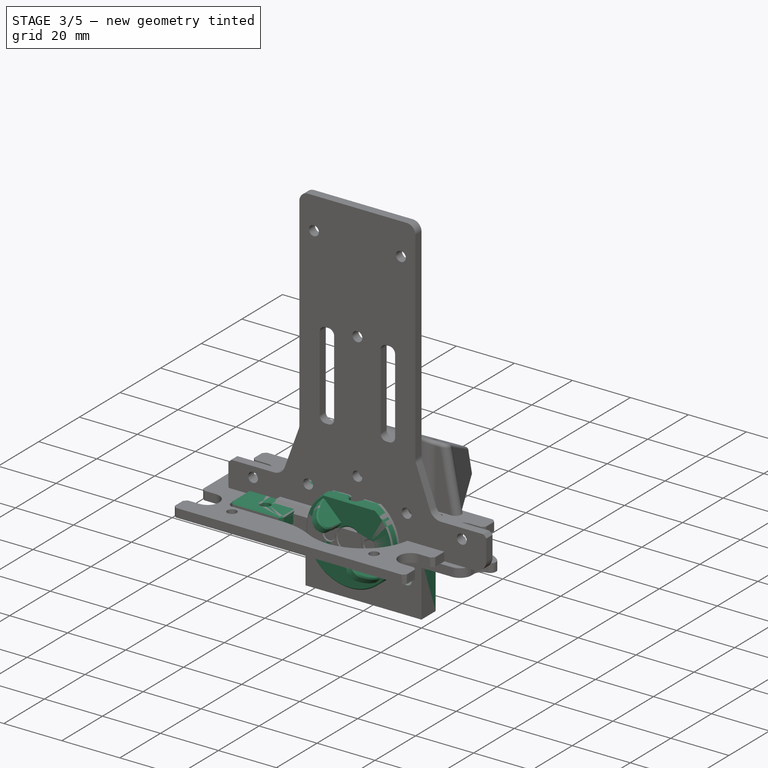
[diagram: stage 3 of 5 — iso view after this stage's code; geometry added in this stage tinted green]
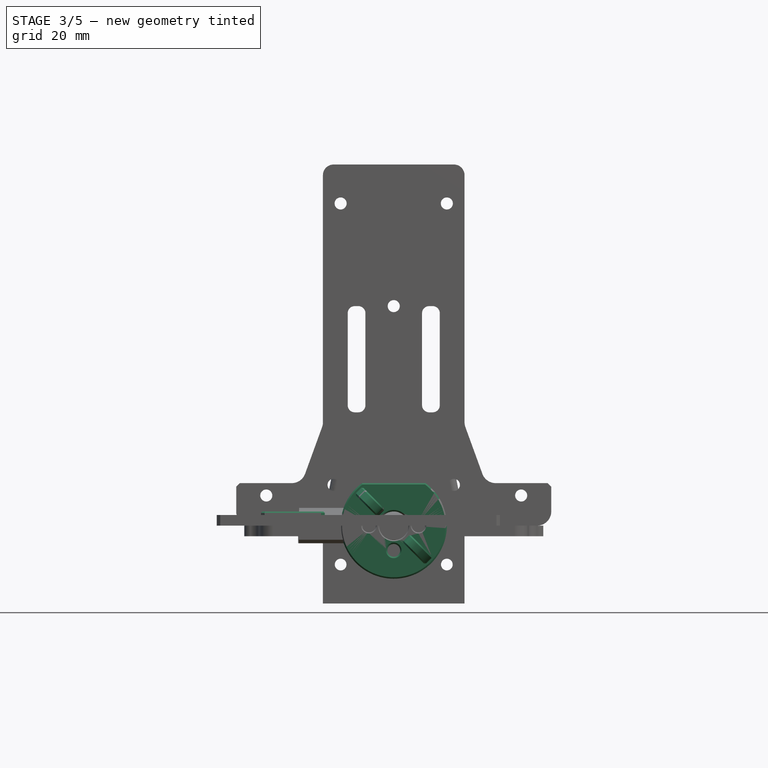
[diagram: stage 3 of 5 — front view after this stage's code; geometry added in this stage tinted green]
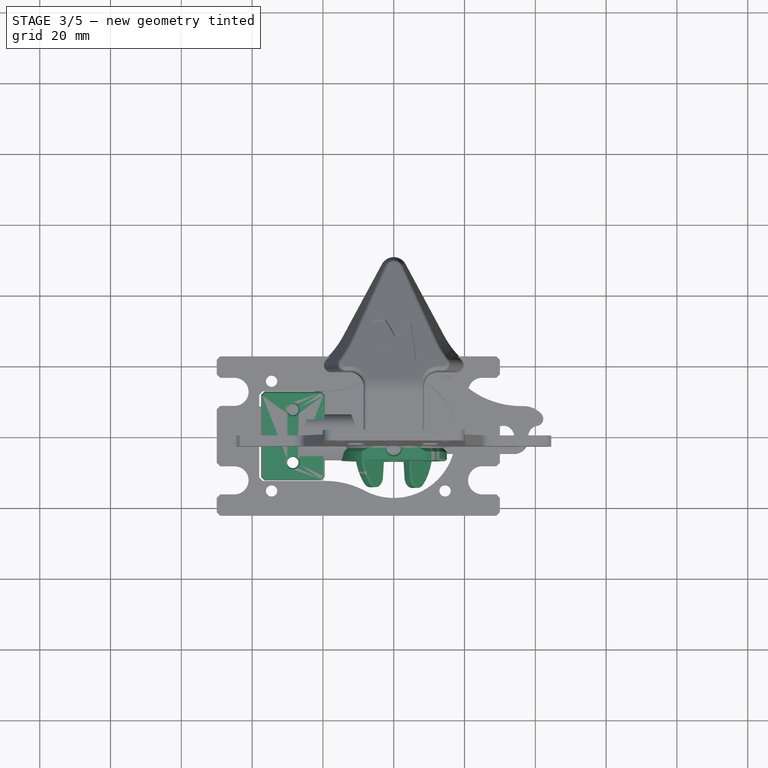
[diagram: stage 3 of 5 — top view after this stage's code; geometry added in this stage tinted green]
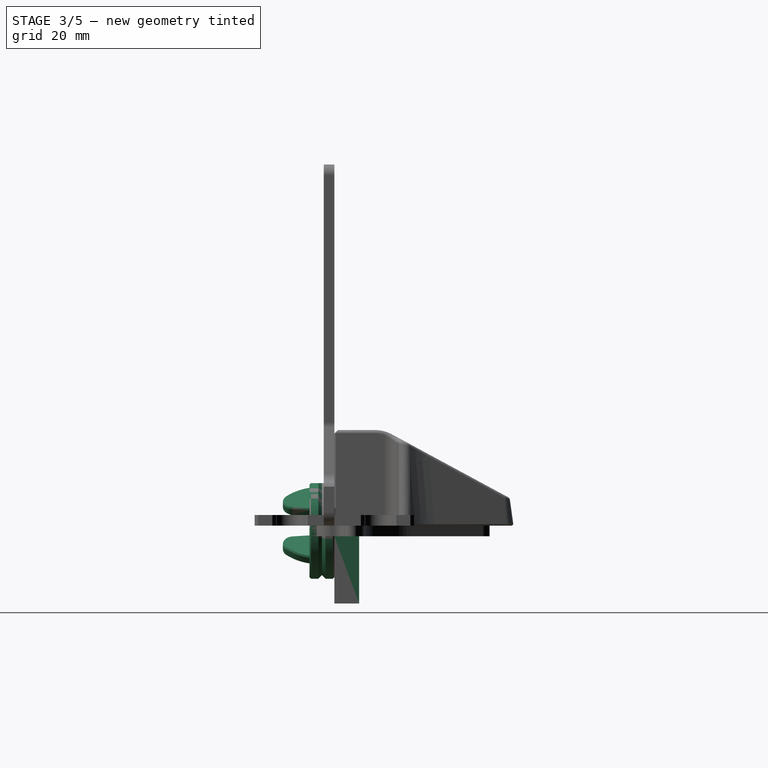
[diagram: stage 3 of 5 — right view after this stage's code; geometry added in this stage tinted green]
FEATURE [PartDesign::Body] Body002  label="ClipTubeLeft"
  AutoGroupSolids = false
  ClaimAllChildren = false
  ExportMode = 0
  FixShape = 1
  Group = -> [Sketch015,Import,Pad004,Chamfer007,Sketch016,Pocket009,Chamfer008]
  InvalidShape = false
  Origin = -> Origin003
  Placement = pos=(0,4,0) rot=(0,0,1;0rad)
  SingleSolid = true
  Tip = -> Chamfer008
  TreeRank = 95
  ValidateShape = false
  _ExportChildren = -> [Import,Pad004,Chamfer007,Pocket009,Chamfer008]
  _GroupVersion = 1
FEATURE [Part::Feature] Solid002  label="ServoPalonnier"
  FixShape = 1
  InvalidShape = false
  Placement = pos=(0,0,0) rot=(1,0,0;1.5708rad)
  TreeRank = 110
  ValidateShape = false
  shape: bbox 20 x 5.4 x 20 mm, 12 faces (baked)
FEATURE [Part::Feature] Solid003  label="ServoBody001"
  FixShape = 1
  InvalidShape = false
  TreeRank = 111
  ValidateShape = false
  shape: bbox 54 x 20 x 39 mm, 22 faces (baked)
FEATURE [Part::Feature] Solid004  label="ServoAxis001"
  FixShape = 1
  InvalidShape = false
  TreeRank = 112
  ValidateShape = false
  shape: bbox 6 x 6 x 10 mm, 4 faces (baked)
FEATURE [Sketcher::SketchObject] Sketch017
  ArcFitTolerance = 1e-06
  AttachmentSupport = -> [XZ_Plane007]
  ExternalBSplineMaxDegree = 5
  ExternalBSplineTolerance = 0.0001
  FixShape = 1
  FullyConstrained = true
  InternalTolerance = 1e-06
  InvalidShape = false
  MakeInternals = false
  MapMode = 5
  Placement = pos=(0,0,0) rot=(1,0,0;1.5708rad)
  Support = -> [XZ_Plane007]
  TreeRank = 166
  ValidateShape = false
  sketch-geometry (6):
    g0: Circle CenterX=0 CenterY=0 CenterZ=0 NormalX=0 NormalY=0 NormalZ=1 AngleXU=0 Radius=4
    g1: Circle CenterX=0 CenterY=0 CenterZ=0 NormalX=0 NormalY=0 NormalZ=1 AngleXU=0 Radius=15
    g2: Circle CenterX=-7 CenterY=0 CenterZ=0 NormalX=0 NormalY=0 NormalZ=1 AngleXU=0 Radius=1.8
    g3: Circle CenterX=0 CenterY=-7 CenterZ=0 NormalX=0 NormalY=0 NormalZ=1 AngleXU=0 Radius=1.8
    g4: Circle CenterX=7 CenterY=0 CenterZ=0 NormalX=0 NormalY=0 NormalZ=1 AngleXU=0 Radius=1.8
    g5: Circle [constr] CenterX=0 CenterY=0 CenterZ=0 NormalX=0 NormalY=0 NormalZ=1 AngleXU=0 Radius=7
  constraints (15):
    c: Coincident(g0,g-1)
    c: Coincident(g1,g0)
    c: Diameter(g1) = 30
    c: Diameter(g0) = 8
    c: PointOnObject(g2,g-1)
    c: PointOnObject(g3,g-2)
    c: PointOnObject(g4,g-1)
    c: Coincident(g5,g0)
    c: PointOnObject(g4,g5)
    c: PointOnObject(g3,g5)
    c: PointOnObject(g2,g5)
    c: Equal(g4,g2)
    c: Equal(g4,g3)
    c: Diameter(g4) = 3.6
    c: Diameter(g5) = 14
FEATURE [PartDesign::Pad] Pad005
  AddSubType = 0
  AlongSketchNormal = false
  AutoTaperInnerAngle = true
  CheckUpToFaceLimits = true
  ClaimChildren = false
  Direction = (0,-1,-2e-16)
  Fit = 0
  FitJoin = 0
  FixShape = 1
  InnerFit = 0
  InnerFitJoin = 0
  InvalidShape = false
  Length = 7
  Length2 = 10
  Linearize = true
  NewSolid = false
  Profile = -> Sketch017
  ReferenceAxis = -> Sketch017 [N_Axis]
  Refine = true
  Suppress = false
  TaperInnerAngle = 0
  TaperInnerAngleRev = 0
  TreeRank = 167
  Type = 0
  ValidateShape = false
  _ProfileBasedVersion = 1
FEATURE [Sketcher::SketchObject] Sketch018
  ArcFitTolerance = 1e-06
  AttachmentSupport = -> [XY_Plane007]
  ExternalBSplineMaxDegree = 5
  ExternalBSplineTolerance = 0.0001
  ExternalGeometry = -> [Pad005]
  FixShape = 1
  FullyConstrained = true
  InternalTolerance = 1e-06
  InvalidShape = false
  MakeInternals = false
  MapMode = 5
  Support = -> [XY_Plane007]
  TreeRank = 168
  ValidateShape = false
  sketch-geometry (4):
    g0: LineSegment StartX=15 StartY=-2.5 StartZ=0 EndX=14 EndY=-3.5 EndZ=0
    g1: LineSegment StartX=14 StartY=-3.5 StartZ=0 EndX=15 EndY=-4.5 EndZ=0
    g2: LineSegment StartX=15 StartY=-4.5 StartZ=0 EndX=15 EndY=-2.5 EndZ=0
    g3: GeomPoint [constr] X=15 Y=-3.5 Z=0
  constraints (9):
    c: Coincident(g1,g0)
    c: Coincident(g2,g1)
    c: Coincident(g2,g0)
    c: Vertical(g2)
    c: Equal(g0,g1)
    c: Perpendicular(g1,g0)
    c: Symmetric(g-3,g-3,g3)
    c: Symmetric(g1,g0,g3)
    c: DistanceY(g2,g2) = 2
FEATURE [PartDesign::Groove] Groove
  AddSubType = 1
  Angle = 360
  Axis = (0,1,0)
  Base = (0,0,0)
  BaseFeature = -> Pad005
  ClaimChildren = false
  Fit = 0
  FitJoin = 0
  FixShape = 1
  InnerFit = 0
  InnerFitJoin = 0
  InvalidShape = false
  Linearize = true
  NewSolid = false
  Profile = -> Sketch018
  ReferenceAxis = -> Sketch018 [V_Axis]
  Refine = true
  Suppress = false
  TreeRank = 169
  ValidateShape = false
  _ProfileBasedVersion = 1
FEATURE [Sketcher::SketchObject] Sketch020
  ArcFitTolerance = 1e-06
  AttachmentSupport = -> [XZ_Plane007]
  ExternalBSplineMaxDegree = 5
  ExternalBSplineTolerance = 0.0001
  ExternalGeometry = -> [Groove]
  FixShape = 1
  FullyConstrained = true
  InternalTolerance = 1e-06
  InvalidShape = false
  MakeInternals = false
  MapMode = 5
  Placement = pos=(0,0,0) rot=(1,0,0;1.5708rad)
  Support = -> [XZ_Plane007]
  TreeRank = 171
  ValidateShape = false
  sketch-geometry (6):
    g0: LineSegment StartX=-9 StartY=12 StartZ=0 EndX=-9 EndY=15 EndZ=0
    g1: LineSegment StartX=-9 StartY=15 StartZ=0 EndX=9 EndY=15 EndZ=0
    g2: LineSegment StartX=9 StartY=15 StartZ=0 EndX=9 EndY=12 EndZ=0
    g3: LineSegment StartX=9 StartY=12 StartZ=0 EndX=-9 EndY=12 EndZ=0
    g4: GeomPoint [constr] X=0 Y=13.5 Z=0
    g5: GeomPoint [constr] X=0 Y=4 Z=0
  constraints (15):
    c: Coincident(g0,g1)
    c: Coincident(g1,g2)
    c: Coincident(g2,g3)
    c: Coincident(g3,g0)
    c: Horizontal(g1)
    c: Horizontal(g3)
    c: Vertical(g0)
    c: Vertical(g2)
    c: Symmetric(g1,g0,g4)
    c: PointOnObject(g4,g-2)
    c: PointOnObject(g2,g-3)
    c: Tangent(g1,g-3)
    c: PointOnObject(g5,g-2)
    c: PointOnObject(g5,g-4)
    c: DistanceY(g5,g2) = 8
FEATURE [PartDesign::Pocket] Pocket010
  AddSubType = 1
  AlongSketchNormal = false
  AutoTaperInnerAngle = true
  BaseFeature = -> Groove
  CheckUpToFaceLimits = true
  ClaimChildren = false
  Direction = (0,1,2e-16)
  Fit = 0
  FitJoin = 0
  FixShape = 1
  InnerFit = 0
  InnerFitJoin = 0
  InvalidShape = false
  Length = 5
  Length2 = 10
  Linearize = true
  NewSolid = false
  Profile = -> Sketch020
  ReferenceAxis = -> Sketch020 [N_Axis]
  Refine = true
  Reversed = true
  Suppress = false
  TaperInnerAngle = 0
  TaperInnerAngleRev = 0
  TreeRank = 172
  Type = 1
  ValidateShape = false
  _ProfileBasedVersion = 1
  _Version = 1
FEATURE [Sketcher::SketchObject] Sketch021
  ArcFitTolerance = 1e-06
  AttachmentSupport = -> [XY_Plane007]
  ExternalBSplineMaxDegree = 5
  ExternalBSplineTolerance = 0.0001
  FixShape = 1
  FullyConstrained = true
  InternalTolerance = 1e-06
  InvalidShape = false
  MakeInternals = false
  MapMode = 5
  Support = -> [XY_Plane007]
  TreeRank = 173
  ValidateShape = false
  sketch-geometry (1):
    g0: Circle CenterX=0 CenterY=-3.5 CenterZ=0 NormalX=0 NormalY=0 NormalZ=1 AngleXU=0 Radius=2.05
  constraints (3):
    c: PointOnObject(g0,g-2)
    c: DistanceY(g0,g-1) = 3.5
    c: Diameter(g0) = 4.1
FEATURE [PartDesign::Pocket] Pocket011
  AddSubType = 1
  AlongSketchNormal = false
  AutoTaperInnerAngle = true
  BaseFeature = -> Pocket010
  CheckUpToFaceLimits = true
  ClaimChildren = false
  Direction = (0,0,-1)
  Fit = 0
  FitJoin = 0
  FixShape = 1
  InnerFit = 0
  InnerFitJoin = 0
  InvalidShape = false
  Length = 5
  Length2 = 10
  Linearize = true
  NewSolid = false
  Profile = -> Sketch021
  ReferenceAxis = -> Sketch021 [N_Axis]
  Refine = true
  Reversed = true
  Suppress = false
  TaperInnerAngle = 0
  TaperInnerAngleRev = 0
  TreeRank = 174
  Type = 1
  ValidateShape = false
  _ProfileBasedVersion = 1
  _Version = 1
FEATURE [PartDesign::Chamfer] Chamfer009
  AddSubType = 0
  Angle = 45
  Base = -> Pocket011 [Edge18,Face8,Face9]
  BaseFeature = -> Pocket011
  ChamferType = 0
  FixShape = 1
  FlipDirection = false
  InvalidShape = false
  NewSolid = false
  Refine = true
  Size = 0.4
  Size2 = 1
  SupportTransform = false
  Suppress = false
  TreeRank = 175
  UseAllEdges = false
  ValidateShape = false
FEATURE [PartDesign::SubShapeBinder] Binder  label="Binder(Pocket012)..."
  BindCopyOnChange = 0
  BindMode = 0
  ClaimChildren = false
  Context = -> Part002 [Part001.Body005.Binder.]
  EdgeTolerance = 1e-06
  FillStyle = 0
  FixShape = 1
  Fuse = false
  InvalidShape = false
  MakeFace = true
  MergeEdges = true
  OffsetFill = false
  OffsetIntersection = false
  OffsetJoinType = 0
  OffsetOpenResult = false
  Outline = false
  PartialLoad = false
  Relative = true
  SplitEdges = false
  Support = -> [Body004[Pocket012.Face2,Pocket012.Face5]]
  TightBound = false
  TreeRank = 207
  ValidateShape = false
  _Version = 8
FEATURE [Sketcher::SketchObject] Sketch027
  ArcFitTolerance = 1e-06
  AttachmentSupport = -> [Binder]
  ExternalBSplineMaxDegree = 5
  ExternalBSplineTolerance = 0.0001
  ExternalGeometry = -> [Binder]
  FixShape = 1
  FullyConstrained = true
  InternalTolerance = 1e-06
  InvalidShape = false
  MakeInternals = false
  MapMode = 2
  Support = -> [Binder]
  TreeRank = 208
  ValidateShape = false
  sketch-geometry (6):
    g0: LineSegment StartX=-37.5 StartY=12.5 StartZ=0 EndX=-19.5 EndY=12.5 EndZ=0
    g1: LineSegment StartX=-19.5 StartY=12.5 StartZ=0 EndX=-19.5 EndY=-12.5 EndZ=0
    g2: LineSegment StartX=-19.5 StartY=-12.5 StartZ=0 EndX=-37.5 EndY=-12.5 EndZ=0
    g3: LineSegment StartX=-37.5 StartY=-12.5 StartZ=0 EndX=-37.5 EndY=12.5 EndZ=0
    g4: Circle CenterX=-28.5 CenterY=7.5 CenterZ=0 NormalX=0 NormalY=0 NormalZ=1 AngleXU=0 Radius=1.6
    g5: Circle CenterX=-28.5 CenterY=-7.5 CenterZ=0 NormalX=0 NormalY=0 NormalZ=1 AngleXU=0 Radius=1.6
  constraints (14):
    c: Coincident(g0,g1)
    c: Coincident(g1,g2)
    c: Coincident(g2,g3)
    c: Coincident(g3,g0)
    c: Horizontal(g0)
    c: Horizontal(g2)
    c: Vertical(g1)
    c: Vertical(g3)
    c: Coincident(g0,g-3)
    c: Coincident(g1,g-4)
    c: Coincident(g4,g-5)
    c: Coincident(g5,g-6)
    c: Equal(g5,g4)
    c: Diameter(g5) = 3.2
FEATURE [PartDesign::Pad] Pad008
  AddSubType = 0
  AlongSketchNormal = false
  AutoTaperInnerAngle = true
  CheckUpToFaceLimits = true
  ClaimChildren = false
  Direction = (0,0,1)
  Fit = 0
  FitJoin = 0
  FixShape = 1
  InnerFit = 0
  InnerFitJoin = 0
  InvalidShape = false
  Length = 4
  Length2 = 10
  Linearize = true
  NewSolid = false
  Profile = -> Sketch027
  ReferenceAxis = -> Sketch027 [N_Axis]
  Refine = true
  Suppress = false
  TaperInnerAngle = 0
  TaperInnerAngleRev = 0
  TreeRank = 209
  Type = 0
  ValidateShape = false
  _ProfileBasedVersion = 1
FEATURE [Sketcher::SketchObject] Sketch028
  ArcFitTolerance = 1e-06
  AttachmentSupport = -> [Pad008]
  ExternalBSplineMaxDegree = 5
  ExternalBSplineTolerance = 0.0001
  FixShape = 1
  FullyConstrained = true
  InternalTolerance = 1e-06
  InvalidShape = false
  MakeInternals = false
  MapMode = 5
  Placement = pos=(-37.5,0,0) rot=(0.57735,-0.57735,-0.57735;2.0944rad)
  Support = -> [Pad008]
  TreeRank = 210
  ValidateShape = false
  sketch-geometry (1):
    g0: Circle CenterX=0 CenterY=0 CenterZ=0 NormalX=0 NormalY=0 NormalZ=1 AngleXU=0 Radius=1.5
  constraints (2):
    c: Coincident(g0,g-1)
    c: Diameter(g0) = 3
FEATURE [Sketcher::SketchObject] Sketch029
  ArcFitTolerance = 1e-06
  AttachmentSupport = -> [Pad008]
  ExternalBSplineMaxDegree = 5
  ExternalBSplineTolerance = 0.0001
  ExternalGeometry = -> [Binder,Pad008]
  FixShape = 1
  FullyConstrained = true
  InternalTolerance = 1e-06
  InvalidShape = false
  MakeInternals = false
  MapMode = 5
  Placement = pos=(0,0,0) rot=(1,0,0;3.14159rad)
  Support = -> [Pad008]
  TreeRank = 211
  ValidateShape = false
  sketch-geometry (3):
    g0: LineSegment StartX=-37.5 StartY=0 StartZ=0 EndX=-32.5 EndY=0 EndZ=0
    g1: LineSegment StartX=0 StartY=16.7748 StartZ=0 EndX=-19.5 EndY=3.90357 EndZ=0
    g2: ArcOfCircle CenterX=-32.5 CenterY=23.5986 CenterZ=0 NormalX=0 NormalY=0 NormalZ=1 AngleXU=0 Radius=23.5986 StartAngle=4.71239 EndAngle=5.29581
  constraints (8):
    c: PointOnObject(g0,g-1)
    c: PointOnObject(g0,g-1)
    c: PointOnObject(g1,g-2)
    c: Tangent(g2,g1) = 1.5708
    c: Tangent(g2,g0) = -1.5708
    c: PointOnObject(g1,g-4)
    c: Coincident(g2,g-3)
    c: PointOnObject(g0,g-5)
FEATURE [PartDesign::SubtractivePipe] Pipe002
  AddSubType = 1
  AuxilleryCurvelinear = true
  AuxillerySpineTangent = false
  BaseFeature = -> Pad008
  Binormal = (0,0,0)
  ClaimChildren = false
  Fit = 0
  FitJoin = 0
  FixShape = 1
  InnerFit = 0
  InnerFitJoin = 0
  InvalidShape = false
  Linearize = true
  Mode = 0
  MoveProfile = false
  NewSolid = false
  Profile = -> Sketch028
  Refine = true
  RotateProfile = false
  Spine = -> Sketch029
  SpineTangent = false
  Suppress = false
  Transformation = 0
  Transition = 1
  TreeRank = 212
  ValidateShape = false
  _ProfileBasedVersion = 2
FEATURE [PartDesign::Chamfer] Chamfer011
  AddSubType = 0
  Angle = 45
  Base = -> Pipe002 [Edge6,Edge11]
  BaseFeature = -> Pipe002
  ChamferType = 0
  FixShape = 1
  FlipDirection = false
  InvalidShape = false
  NewSolid = false
  Refine = true
  Size = 1
  Size2 = 1
  SupportTransform = false
  Suppress = false
  TreeRank = 213
  UseAllEdges = false
  ValidateShape = false
FEATURE [PartDesign::Body] Body014  label="Tube-1ID-3OD"
  AutoGroupSolids = false
  ClaimAllChildren = false
  ExportMode = 0
  FixShape = 1
  Group = -> [Sketch042,Pad015]
  InvalidShape = false
  Origin = -> Origin023
  Placement = pos=(24,4,12) rot=(0,0,1;0rad)
  SingleSolid = true
  Tip = -> Pad015
  TreeRank = 433
  ValidateShape = false
  _ExportChildren = -> [Pad015]
  _GroupVersion = 1
FEATURE [App::Link] Link002  label="Link002(Tube-1ID-3OD)"
  AutoLinkLabel = true
  AutoPlacement = true
  LinkPlacement = pos=(-24,4.00001,12) rot=(0,0,1;0rad)
  LinkedObject = -> Body014
  Placement = pos=(-24,4.00001,12) rot=(0,0,1;0rad)
  SyncGroupVisibility = false
  TreeRank = 436
  _LinkVersion = 1
FEATURE [Sketcher::SketchObject] Sketch043
  ArcFitTolerance = 1e-06
  AttachmentSupport = -> [XZ_Plane021]
  ExternalBSplineMaxDegree = 5
  ExternalBSplineTolerance = 0.0001
  FixShape = 1
  FullyConstrained = true
  InternalTolerance = 1e-06
  InvalidShape = false
  MakeInternals = false
  MapMode = 5
  Placement = pos=(0,0,0) rot=(1,0,0;1.5708rad)
  Support = -> [XZ_Plane021]
  TreeRank = 447
  ValidateShape = false
  sketch-geometry (7):
    g0: Circle CenterX=15 CenterY=-11 CenterZ=0 NormalX=0 NormalY=0 NormalZ=1 AngleXU=0 Radius=1.65
    g1: Circle CenterX=-15 CenterY=-11 CenterZ=0 NormalX=0 NormalY=0 NormalZ=1 AngleXU=0 Radius=1.65
    g2: LineSegment StartX=20 StartY=-22 StartZ=0 EndX=-20 EndY=-22 EndZ=0
    g3: LineSegment StartX=-20 StartY=-22 StartZ=0 EndX=-20 EndY=0 EndZ=0
    g4: LineSegment StartX=-20 StartY=0 StartZ=0 EndX=20 EndY=0 EndZ=0
    g5: LineSegment StartX=20 StartY=0 StartZ=0 EndX=20 EndY=-22 EndZ=0
    g6: LineSegment [constr] StartX=15 StartY=-11 StartZ=0 EndX=-20 EndY=-11 EndZ=0
  constraints (18):
    c: Symmetric(g1,g0,g-2)
    c: DistanceX(g1,g0) = 30
    c: Equal(g1,g0)
    c: Diameter(g1) = 3.3
    c: DistanceY(g1,g-1) = 11
    c: Coincident(g2,g3)
    c: Coincident(g3,g4)
    c: Coincident(g4,g5)
    c: Coincident(g5,g2)
    c: Horizontal(g2)
    c: Vertical(g3)
    c: Vertical(g5)
    c: Symmetric(g3,g4,g-2)
    c: DistanceX(g4,g4) = 40
    c: Coincident(g6,g0)
    c: Horizontal(g6)
    c: Symmetric(g2,g3,g6)
    c: PointOnObject(g3,g-1)
FEATURE [PartDesign::Pad] Pad016
  AddSubType = 0
  AlongSketchNormal = false
  AutoTaperInnerAngle = true
  CheckUpToFaceLimits = true
  ClaimChildren = false
  Direction = (0,-1,-2e-16)
  Fit = 0
  FitJoin = 0
  FixShape = 1
  InnerFit = 0
  InnerFitJoin = 0
  InvalidShape = false
  Length = 7
  Length2 = 10
  Linearize = true
  NewSolid = false
  Profile = -> Sketch043
  ReferenceAxis = -> Sketch043 [N_Axis]
  Refine = true
  Reversed = true
  Suppress = false
  TaperInnerAngle = 0
  TaperInnerAngleRev = 0
  TreeRank = 448
  Type = 0
  ValidateShape = true
  _ProfileBasedVersion = 1
FEATURE [PartDesign::Fillet] Fillet017
  AddSubType = 0
  Base = -> Pad016 [Edge5,Edge8]
  BaseFeature = -> Pad016
  FixShape = 1
  InvalidShape = false
  NewSolid = false
  Radius = 3
  Refine = true
  SupportTransform = false
  Suppress = false
  TreeRank = 449
  UseAllEdges = false
  ValidateShape = true
FEATURE [Sketcher::SketchObject] Sketch044
  ArcFitTolerance = 1e-06
  AttachmentSupport = -> [Fillet017]
  ExternalBSplineMaxDegree = 5
  ExternalBSplineTolerance = 0.0001
  ExternalGeometry = -> [Fillet017]
  FixShape = 1
  FullyConstrained = true
  InternalTolerance = 1e-06
  InvalidShape = false
  MakeInternals = false
  MapMode = 5
  Placement = pos=(0,7,0) rot=(0,0.707107,0.707107;3.14159rad)
  Support = -> [Fillet017]
  TreeRank = 450
  ValidateShape = false
  sketch-geometry (10):
    g0: ArcOfCircle CenterX=-20.5 CenterY=-7.07107 CenterZ=0 NormalX=0 NormalY=0 NormalZ=1 AngleXU=0 Radius=10 StartAngle=0 EndAngle=0.785398
    g1: ArcOfCircle CenterX=-0.5 CenterY=-7.07107 CenterZ=0 NormalX=0 NormalY=0 NormalZ=1 AngleXU=0 Radius=10 StartAngle=2.35619 EndAngle=3.14159
    g2: LineSegment StartX=-13.4289 StartY=-5.30859e-08 StartZ=0 EndX=-15.4289 EndY=2 EndZ=0
    g3: ArcOfCircle CenterX=-12.2 CenterY=-15.7459 CenterZ=0 NormalX=0 NormalY=0 NormalZ=1 AngleXU=0 Radius=10 StartAngle=5.60753 EndAngle=6.28319
    g4: LineSegment StartX=-4.39701 StartY=-22 StartZ=0 EndX=-6 EndY=-24 EndZ=0
    g5: LineSegment StartX=-7.57107 StartY=1e-16 StartZ=0 EndX=-5.57107 EndY=2 EndZ=0
    g6: LineSegment StartX=-10.5 StartY=-7.07107 StartZ=0 EndX=-10.5 EndY=-24 EndZ=0
    g7: LineSegment [constr] StartX=-15.4289 StartY=2 StartZ=0 EndX=0 EndY=2 EndZ=0
    g8: LineSegment [constr] StartX=-10.5 StartY=-24 StartZ=0 EndX=0 EndY=-24 EndZ=0
    g9: LineSegment StartX=-2.2 StartY=-15.7459 StartZ=0 EndX=-2.2 EndY=2 EndZ=0
  constraints (30):
    c: Tangent(g2,g0) = -1.5708
    c: Tangent(g5,g1) = 1.5708
    c: Tangent(g4,g3) = 1.5708
    c: DistanceY(g-1,g5) = 2
    c: Vertical(g6)
    c: Tangent(g6,g1)
    c: Tangent(g6,g0) = 1.5708
    c: Coincident(g7,g2)
    c: Horizontal(g7)
    c: PointOnObject(g7,g-2)
    c: PointOnObject(g5,g7)
    c: Coincident(g1,g0)
    c: Coincident(g8,g6)
    c: Horizontal(g8)
    c: PointOnObject(g4,g8)
    c: Equal(g1,g0)
    c: Equal(g1,g3)
    c: Radius(g1) = 10
    c: PointOnObject(g9,g7)
    c: Vertical(g9)
    c: Tangent(g9,g3) = -1.5708
    c: DistanceX(g9,g-1) = 2.2
    c: Perpendicular(g5,g2)
    c: Equal(g5,g2)
    c: DistanceX(g4,g8) = 6
    c: PointOnObject(g8,g-2)
    c: DistanceY(g8,g-3) = 2
    c: DistanceX(g6,g8) = 10.5
    c: PointOnObject(g3,g-3)
    c: DistanceY(g1,g5) = 2
FEATURE [Sketcher::SketchObject] Sketch045
  ArcFitTolerance = 1e-06
  AttachmentSupport = -> [Fillet017]
  ExternalBSplineMaxDegree = 5
  ExternalBSplineTolerance = 0.0001
  ExternalGeometry = -> [Sketch044]
  FixShape = 1
  FullyConstrained = true
  InternalTolerance = 1e-06
  InvalidShape = false
  MakeInternals = false
  MapMode = 5
  Placement = pos=(0,4.9e-15,-22) rot=(1,0,0;3.14159rad)
  Support = -> [Fillet017]
  TreeRank = 451
  ValidateShape = false
  sketch-geometry (5):
    g0: Circle [constr] CenterX=10.5 CenterY=-5.6 CenterZ=0 NormalX=0 NormalY=0 NormalZ=1 AngleXU=0 Radius=1.4
    g1: ArcOfCircle CenterX=10.5 CenterY=-5.6 CenterZ=0 NormalX=0 NormalY=0 NormalZ=1 AngleXU=0 Radius=1.4 StartAngle=0.221311 EndAngle=2.92027
    g2: LineSegment StartX=9.13415 StartY=-5.29267 StartZ=0 EndX=8.75 EndY=-7 EndZ=0
    g3: LineSegment StartX=8.75 StartY=-7 StartZ=0 EndX=12.25 EndY=-7 EndZ=0
    g4: LineSegment StartX=12.25 StartY=-7 StartZ=0 EndX=11.8659 EndY=-5.29269 EndZ=0
  constraints (14):
    c: PointOnObject(g-3,g0)
    c: Vertical(g0,g-3)
    c: Diameter(g0) = 2.8
    c: Coincident(g1,g0)
    c: PointOnObject(g1,g0)
    c: Coincident(g2,g1)
    c: Tangent(g2,g0)
    c: Coincident(g3,g2)
    c: Horizontal(g3)
    c: Coincident(g4,g3)
    c: Coincident(g4,g1)
    c: Tangent(g4,g0)
    c: Symmetric(g3,g2,g-3)
    c: DistanceX(g3,g3) = 3.5
FEATURE [PartDesign::SubtractivePipe] Pipe003
  AddSubType = 1
  AuxilleryCurvelinear = true
  AuxillerySpineTangent = false
  BaseFeature = -> Fillet017
  Binormal = (0,0,0)
  ClaimChildren = false
  Fit = 0
  FitJoin = 0
  FixShape = 1
  InnerFit = 0
  InnerFitJoin = 0
  InvalidShape = false
  Linearize = true
  Mode = 0
  MoveProfile = false
  NewSolid = false
  Profile = -> Sketch045
  Refine = true
  RotateProfile = false
  Spine = -> Sketch044 [Edge1,Edge2,Edge3]
  SpineTangent = false
  Suppress = false
  Transformation = 0
  Transition = 1
  TreeRank = 452
  ValidateShape = true
  _ProfileBasedVersion = 2
FEATURE [PartDesign::SubtractivePipe] Pipe004
  AddSubType = 1
  AuxilleryCurvelinear = true
  AuxillerySpineTangent = false
  BaseFeature = -> Pipe003
  Binormal = (0,0,0)
  ClaimChildren = false
  Fit = 0
  FitJoin = 0
  FixShape = 1
  InnerFit = 0
  InnerFitJoin = 0
  InvalidShape = false
  Linearize = true
  Mode = 0
  MoveProfile = false
  NewSolid = false
  Profile = -> Sketch045
  Refine = true
  RotateProfile = false
  Spine = -> Sketch044 [Edge5,Edge4,Edge3]
  SpineTangent = false
  Suppress = false
  Transformation = 0
  Transition = 1
  TreeRank = 453
  ValidateShape = true
  _ProfileBasedVersion = 2
FEATURE [Sketcher::SketchObject] Sketch046
  ArcFitTolerance = 1e-06
  AttachmentSupport = -> [XY_Plane021]
  ExternalBSplineMaxDegree = 5
  ExternalBSplineTolerance = 0.0001
  ExternalGeometry = -> [Sketch044]
  FixShape = 1
  FullyConstrained = true
  InternalTolerance = 1e-06
  InvalidShape = false
  MakeInternals = false
  MapMode = 5
  Support = -> [XY_Plane021]
  TreeRank = 454
  ValidateShape = false
  sketch-geometry (5):
    g0: Circle [constr] CenterX=2.2 CenterY=5.6 CenterZ=0 NormalX=0 NormalY=0 NormalZ=1 AngleXU=0 Radius=1.4
    g1: ArcOfCircle CenterX=2.2 CenterY=5.6 CenterZ=0 NormalX=0 NormalY=0 NormalZ=1 AngleXU=0 Radius=1.4 StartAngle=3.36292 EndAngle=6.06187
    g2: LineSegment StartX=0.834149 StartY=5.29267 StartZ=0 EndX=0.45 EndY=7 EndZ=0
    g3: LineSegment StartX=0.45 StartY=7 StartZ=0 EndX=3.95 EndY=7 EndZ=0
    g4: LineSegment StartX=3.95 StartY=7 StartZ=0 EndX=3.56585 EndY=5.29268 EndZ=0
  constraints (13):
    c: PointOnObject(g-3,g0)
    c: Vertical(g0,g-3)
    c: Diameter(g0) = 2.8
    c: Coincident(g1,g0)
    c: PointOnObject(g1,g0)
    c: Coincident(g2,g1)
    c: Tangent(g2,g0)
    c: Coincident(g2,g3)
    c: Horizontal(g3)
    c: Coincident(g3,g4)
    c: Symmetric(g3,g2,g-3)
    c: DistanceX(g3,g3) = 3.5
    c: Tangent(g4,g1) = 1.5708
FEATURE [PartDesign::SubtractivePipe] Pipe005
  AddSubType = 1
  AuxilleryCurvelinear = true
  AuxillerySpineTangent = false
  BaseFeature = -> Pipe004
  Binormal = (0,0,0)
  ClaimChildren = false
  Fit = 0
  FitJoin = 0
  FixShape = 1
  InnerFit = 0
  InnerFitJoin = 0
  InvalidShape = false
  Linearize = true
  Mode = 0
  MoveProfile = false
  NewSolid = false
  Profile = -> Sketch046
  Refine = true
  RotateProfile = false
  Spine = -> Sketch044 [Edge6,Edge7,Edge8]
  SpineTangent = false
  Suppress = false
  Transformation = 0
  Transition = 1
  TreeRank = 455
  ValidateShape = true
  _ProfileBasedVersion = 2
FEATURE [Sketcher::SketchObject] Sketch047
  ArcFitTolerance = 1e-06
  AttachmentSupport = -> [Pipe005]
  ExternalBSplineMaxDegree = 5
  ExternalBSplineTolerance = 0.0001
  ExternalGeometry = -> [Pipe005]
  FixShape = 1
  FullyConstrained = true
  InternalTolerance = 1e-06
  InvalidShape = false
  MakeInternals = false
  MapMode = 5
  Placement = pos=(0,7,0) rot=(0,0.707107,0.707107;3.14159rad)
  Support = -> [Pipe005]
  TreeRank = 456
  ValidateShape = false
  sketch-geometry (1):
    g0: Circle CenterX=-10.5 CenterY=-0.901586 CenterZ=0 NormalX=0 NormalY=0 NormalZ=1 AngleXU=0 Radius=2.5
  constraints (2):
    c: Coincident(g0,g-3)
    c: Diameter(g0) = 5
FEATURE [PartDesign::Pocket] Pocket020
  AddSubType = 1
  AlongSketchNormal = false
  AutoTaperInnerAngle = true
  BaseFeature = -> Pipe005
  CheckUpToFaceLimits = true
  ClaimChildren = false
  Direction = (0,-1,2e-16)
  Fit = 0
  FitJoin = 0
  FixShape = 1
  InnerFit = 0
  InnerFitJoin = 0
  InvalidShape = false
  Length = 1.5
  Length2 = 10
  Linearize = true
  NewSolid = false
  Profile = -> Sketch047
  ReferenceAxis = -> Sketch047 [N_Axis]
  Refine = true
  Suppress = false
  TaperInnerAngle = 0
  TaperInnerAngleRev = 0
  TreeRank = 457
  Type = 0
  ValidateShape = true
  _ProfileBasedVersion = 1
  _Version = 1
FEATURE [PartDesign::Mirrored] Mirrored
  AddSubType = 0
  BaseFeature = -> Pocket020
  CopyShape = false
  FixShape = 1
  InvalidShape = false
  MirrorPlane = -> Sketch045 [V_Axis]
  NewSolid = false
  OriginalSubs = -> [Pipe003,Pipe004,Pipe005,Pocket020]
  Originals = -> [Pipe003,Pipe004,Pipe005,Pocket020]
  ParallelTransform = true
  Refine = true
  SubTransform = true
  Suppress = false
  TreeRank = 458
  ValidateShape = true
  _Version = 3
FEATURE [PartDesign::Draft] Draft005
  AddSubType = 0
  Angle = 15
  Base = -> Draft004 [Face24]
  BaseFeature = -> Draft004
  FixShape = 1
  InvalidShape = false
  NeutralPlane = -> Draft004 [Face37]
  NewSolid = false
  Refine = true
  SupportTransform = false
  Suppress = false
  TreeRank = 489
  ValidateShape = true
FEATURE [PartDesign::Draft] Draft006
  AddSubType = 0
  Angle = 15
  Base = -> Draft005 [Face22]
  BaseFeature = -> Draft005
  FixShape = 1
  InvalidShape = false
  NeutralPlane = -> Draft005 [Face37]
  NewSolid = false
  Refine = true
  SupportTransform = false
  Suppress = false
  TreeRank = 490
  ValidateShape = true
FEATURE [Sketcher::SketchObject] Sketch052
  ArcFitTolerance = 1e-06
  AttachmentSupport = -> [XY_Plane008]
  ExternalBSplineMaxDegree = 5
  ExternalBSplineTolerance = 0.0001
  ExternalGeometry = -> [Draft006]
  FixShape = 1
  FullyConstrained = true
  InternalTolerance = 1e-06
  InvalidShape = false
  MakeInternals = false
  MapMode = 5
  Support = -> [XY_Plane008]
  TreeRank = 491
  ValidateShape = false
  sketch-geometry (5):
    g0: LineSegment StartX=-18.5 StartY=-18.5 StartZ=0 EndX=-14.5 EndY=-14.5 EndZ=0
    g1: LineSegment StartX=-14.5 StartY=-14.5 StartZ=0 EndX=0.614737 EndY=-14.5 EndZ=0
    g2: LineSegment StartX=0.614737 StartY=-14.5 StartZ=0 EndX=4.61474 EndY=-18.5 EndZ=0
    g3: LineSegment StartX=4.61474 StartY=-18.5 StartZ=0 EndX=-18.5 EndY=-18.5 EndZ=0
    g4: LineSegment [constr] StartX=-6.94263 StartY=-18.5 StartZ=0 EndX=-6.94263 EndY=-14.5 EndZ=0
  constraints (14):
    c: PointOnObject(g0,g-3)
    c: Coincident(g0,g1)
    c: Horizontal(g1)
    c: Coincident(g1,g2)
    c: Coincident(g2,g3)
    c: Coincident(g3,g0)
    c: PointOnObject(g4,g1)
    c: Vertical(g4)
    c: Symmetric(g-3,g-3,g4)
    c: Symmetric(g0,g2,g4)
    c: Equal(g0,g2)
    c: Angle(g3,g0) = 0.785398
    c: DistanceY(g4,g4) = 4
    c: DistanceX(g2,g-3) = 1
FEATURE [PartDesign::Pocket] Pocket022
  AddSubType = 1
  AlongSketchNormal = false
  AutoTaperInnerAngle = true
  BaseFeature = -> Draft006
  CheckUpToFaceLimits = true
  ClaimChildren = false
  Direction = (0,0,-1)
  Fit = 0
  FitJoin = 0
  FixShape = 1
  InnerFit = 0
  InnerFitJoin = 0
  InvalidShape = false
  Length = 5
  Length2 = 10
  Linearize = true
  NewSolid = false
  Profile = -> Sketch052
  ReferenceAxis = -> Sketch052 [N_Axis]
  Refine = true
  Reversed = true
  Suppress = false
  TaperInnerAngle = 0
  TaperInnerAngleRev = 0
  TreeRank = 492
  Type = 1
  ValidateShape = true
  _ProfileBasedVersion = 1
  _Version = 1
FEATURE [PartDesign::Mirrored] Mirrored004
  AddSubType = 0
  BaseFeature = -> Pocket022
  CopyShape = false
  FixShape = 1
  InvalidShape = false
  MirrorPlane = -> XZ_Plane008
  NewSolid = false
  OriginalSubs = -> [Pocket022]
  Originals = -> [Pocket022]
  ParallelTransform = true
  Refine = true
  SubTransform = true
  Suppress = false
  TreeRank = 493
  ValidateShape = true
  _Version = 3
FEATURE [PartDesign::Chamfer] Chamfer031
  AddSubType = 0
  Angle = 45
  Base = -> Mirrored004 [Edge111,Edge100,Edge33,Edge31,Edge18,Edge22]
  BaseFeature = -> Mirrored004
  ChamferType = 0
  FixShape = 1
  FlipDirection = false
  InvalidShape = false
  NewSolid = false
  Refine = true
  Size = 2
  Size2 = 1
  SupportTransform = false
  Suppress = false
  TreeRank = 494
  UseAllEdges = false
  ValidateShape = true
FEATURE [PartDesign::Chamfer] Chamfer032
  AddSubType = 0
  Angle = 45
  Base = -> Chamfer031 [Edge11,Edge67,Edge21,Edge3]
  BaseFeature = -> Chamfer031
  ChamferType = 0
  FixShape = 1
  FlipDirection = false
  InvalidShape = false
  NewSolid = false
  Refine = true
  Size = 1
  Size2 = 1
  SupportTransform = false
  Suppress = false
  TreeRank = 495
  UseAllEdges = false
  ValidateShape = true
FEATURE [PartDesign::Chamfer] Chamfer033
  AddSubType = 0
  Angle = 45
  Base = -> Chamfer011 [Edge3,Edge16,Edge28,Edge6]
  BaseFeature = -> Chamfer011
  ChamferType = 0
  FixShape = 1
  FlipDirection = false
  InvalidShape = false
  NewSolid = false
  Refine = true
  Size = 1
  Size2 = 1
  SupportTransform = false
  Suppress = false
  TreeRank = 496
  UseAllEdges = false
  ValidateShape = true
FEATURE [PartDesign::Body] Body017  label="PlaqueServo"
  AutoGroupSolids = false
  ClaimAllChildren = false
  ExportMode = 0
  FixShape = 1
  Group = -> [Sketch053,Import005,Pad022,Sketch054,Pocket023,Chamfer034,Chamfer035,Fillet019,Chamfer036]
  InvalidShape = false
  Origin = -> Origin026
  Placement = pos=(0,0,8.5) rot=(0,0,1;0rad)
  SingleSolid = true
  Tip = -> Chamfer036
  TreeRank = 506
  ValidateShape = false
  _ExportChildren = -> [Import005,Pad022,Pocket023,Chamfer034,Chamfer035,Fillet019,Chamfer036]
  _GroupVersion = 1
FEATURE [PartDesign::Plane] DatumPlane001
  AttachmentOffset = pos=(0,0,0) rot=(0,1,0;0.785398rad)
  AttachmentSupport = -> [XY_Plane007]
  FixShape = 1
  InvalidShape = false
  Length = 40.3015
  MapMode = 5
  MinimumLength = 10
  MinimumWidth = 10
  Placement = pos=(0,0,0) rot=(0,1,0;0.785398rad)
  ResizeMode = 0
  Support = -> [XY_Plane007]
  TreeRank = 516
  ValidateShape = false
  Width = 14.5259
FEATURE [Sketcher::SketchObject] Sketch055
  ArcFitTolerance = 1e-06
  AttachmentSupport = -> [DatumPlane001]
  ExternalBSplineMaxDegree = 5
  ExternalBSplineTolerance = 0.0001
  FixShape = 1
  FullyConstrained = true
  InternalTolerance = 1e-06
  InvalidShape = false
  MakeInternals = false
  MapMode = 5
  Placement = pos=(0,0,0) rot=(0,1,0;0.785398rad)
  Support = -> [DatumPlane001]
  TreeRank = 517
  ValidateShape = false
  sketch-geometry (3):
    g0: ArcOfCircle CenterX=0 CenterY=-3.92571 CenterZ=0 NormalX=0 NormalY=0 NormalZ=1 AngleXU=0 Radius=14.3336 StartAngle=3.35775 EndAngle=4.29008
    g1: LineSegment StartX=-5 StartY=-7 StartZ=0 EndX=-5.87489 EndY=-17 EndZ=0
    g2: LineSegment StartX=-14 StartY=-7 StartZ=0 EndX=-5 EndY=-7 EndZ=0
  constraints (10):
    c: PointOnObject(g0,g-2)
    c: DistanceY(g0,g0) = 10
    c: Coincident(g1,g0)
    c: Coincident(g2,g0)
    c: Coincident(g2,g1)
    c: DistanceY(g1,g-1) = 7
    c: Horizontal(g2)
    c: Angle(g1,g-2) = 0.0872665
    c: DistanceX(g1,g-1) = 5
    c: DistanceX(g0,g-1) = 14
FEATURE [PartDesign::Pad] Pad023
  AddSubType = 0
  AlongSketchNormal = false
  AutoTaperInnerAngle = true
  BaseFeature = -> Chamfer009
  CheckUpToFaceLimits = true
  ClaimChildren = false
  Direction = (0.707107,0,0.707107)
  Fit = 0
  FitJoin = 0
  FixShape = 1
  InnerFit = 0
  InnerFitJoin = 0
  InvalidShape = false
  Length = 3
  Length2 = 10
  Linearize = true
  Midplane = true
  NewSolid = false
  Profile = -> Sketch055
  ReferenceAxis = -> Sketch055 [N_Axis]
  Refine = true
  Suppress = false
  TaperInnerAngle = 0
  TaperInnerAngleRev = 0
  TreeRank = 518
  Type = 0
  ValidateShape = true
  _ProfileBasedVersion = 1
FEATURE [PartDesign::PolarPattern] PolarPattern
  AddSubType = 0
  Angle = 360
  Axis = -> Y_Axis007
  BaseFeature = -> Pad023
  CopyShape = false
  FixShape = 1
  InvalidShape = false
  NewSolid = false
  Occurrences = 2
  OriginalSubs = -> [Pad023]
  Originals = -> [Pad023]
  ParallelTransform = true
  Refine = true
  SubTransform = true
  Suppress = false
  TreeRank = 519
  ValidateShape = true
  _Version = 3
FEATURE [PartDesign::Fillet] Fillet020
  AddSubType = 0
  Base = -> PolarPattern [Edge66,Edge75]
  BaseFeature = -> PolarPattern
  FixShape = 1
  InvalidShape = false
  NewSolid = false
  Radius = 3
  Refine = true
  SupportTransform = false
  Suppress = false
  TreeRank = 520
  UseAllEdges = false
  ValidateShape = true
FEATURE [PartDesign::Chamfer] Chamfer037
  AddSubType = 0
  Angle = 45
  Base = -> Fillet020 [Edge40,Edge41,Edge7,Edge23]
  BaseFeature = -> Fillet020
  ChamferType = 0
  FixShape = 1
  FlipDirection = false
  InvalidShape = false
  NewSolid = false
  Refine = true
  Size = 0.4
  Size2 = 1
  SupportTransform = false
  Suppress = false
  TreeRank = 521
  UseAllEdges = false
  ValidateShape = true
FEATURE [PartDesign::Body] Body003  label="Poulie"
  AutoGroupSolids = false
  ClaimAllChildren = false
  ExportMode = 0
  FixShape = 1
  Group = -> [Sketch017,Pad005,Sketch018,Groove,Sketch020,Pocket010,Sketch021,Pocket011,Chamfer009,DatumPlane001,Sketch055,Pad023,PolarPattern,Fillet020,Chamfer037]
  InvalidShape = false
  Origin = -> Origin007
  SingleSolid = true
  Tip = -> Chamfer037
  TreeRank = 165
  ValidateShape = false
  _ExportChildren = -> [Pad005,Groove,Pocket010,Pocket011,Chamfer009,DatumPlane001,Pad023,PolarPattern,Fillet020,Chamfer037]
  _GroupVersion = 1
FEATURE [App::Part] Part003  label="EnsemblePalonnier"
  ClaimAllChildren = false
  ExportMode = 1
  Group = -> [Solid002,Body003]
  Origin = -> Origin006
  TreeRank = 143
  _ExportChildren = -> [Solid002,Body003]
  _GroupVersion = 1
FEATURE [PartDesign::Fillet] Fillet021
  AddSubType = 0
  Base = -> Chamfer032 [Edge133,Edge129,Edge125,Edge95,Edge117,Edge115,Edge113,Edge107]
  BaseFeature = -> Chamfer032
  FixShape = 1
  InvalidShape = false
  NewSolid = false
  Radius = 2
  Refine = true
  SupportTransform = false
  Suppress = false
  TreeRank = 522
  UseAllEdges = false
  ValidateShape = true
FEATURE [PartDesign::Chamfer] Chamfer038
  AddSubType = 0
  Angle = 45
  Base = -> Fillet021 [Face35,Edge147,Edge141,Edge173,Edge176]
  BaseFeature = -> Fillet021
  ChamferType = 0
  FixShape = 1
  FlipDirection = false
  InvalidShape = false
  NewSolid = false
  Refine = true
  Size = 0.4
  Size2 = 1
  SupportTransform = false
  Suppress = false
  TreeRank = 523
  UseAllEdges = false
  ValidateShape = true
FEATURE [PartDesign::Body] Body004  label="SupportServo"
  AutoGroupSolids = false
  ClaimAllChildren = false
  ExportMode = 0
  FixShape = 1
  Group = -> [Sketch022,Pad006,Sketch023,Pad007,Sketch024,Sketch025,Import001,Pipe001,Chamfer010,Sketch026,Pocket012,Pad018,Sketch049,Pad021,Pad019,Sketch050,Pad020,Pocket021,Sketch051,Mirrored003,Draft003,Draft004,Draft005,Draft006,Sketch052,Pocket022,Mirrored004,Chamfer031,Chamfer032,Fillet021,Chamfer038]
  InvalidShape = false
  Origin = -> Origin008
  Placement = pos=(0,0,-16) rot=(0,0,1;0rad)
  SingleSolid = true
  Tip = -> Chamfer038
  TreeRank = 185
  ValidateShape = false
  _ExportChildren = -> [Pad006,Pad007,Import001,Pipe001,Chamfer010,Pocket012,Pad018,Pad021,Pad019,Pad020,Pocket021,Mirrored003,Draft003,Draft004,Draft005,Draft006,Pocket022,Mirrored004,Chamfer031,Chamfer032,Fillet021,Chamfer038]
  _GroupVersion = 1
FEATURE [PartDesign::Chamfer] Chamfer039
  AddSubType = 0
  Angle = 45
  Base = -> Chamfer033 [Face5]
  BaseFeature = -> Chamfer033
  ChamferType = 0
  FixShape = 1
  FlipDirection = false
  InvalidShape = false
  NewSolid = false
  Refine = true
  Size = 0.4
  Size2 = 1
  SupportTransform = false
  Suppress = false
  TreeRank = 524
  UseAllEdges = false
  ValidateShape = true
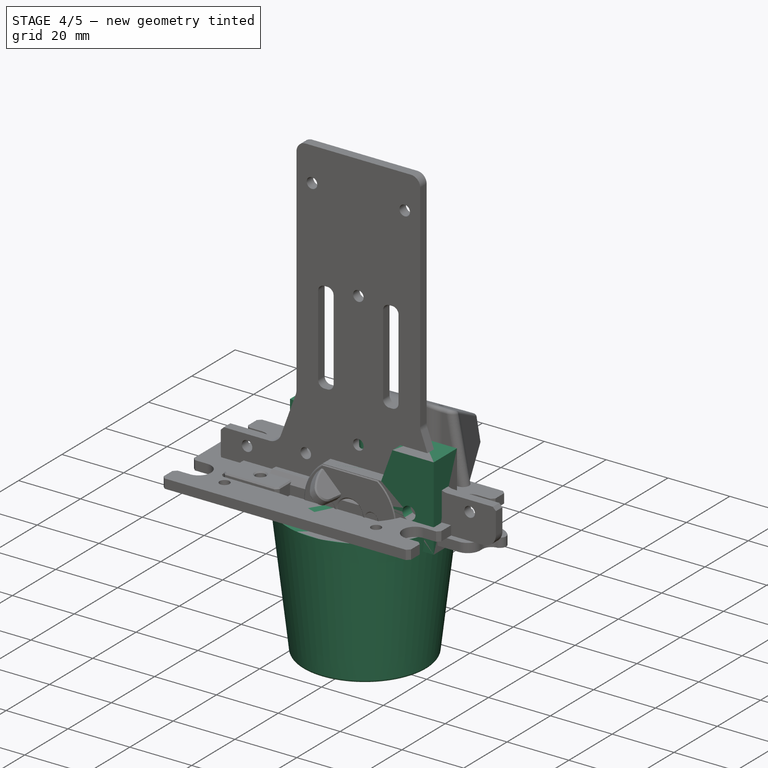
[diagram: stage 4 of 5 — iso view after this stage's code; geometry added in this stage tinted green]
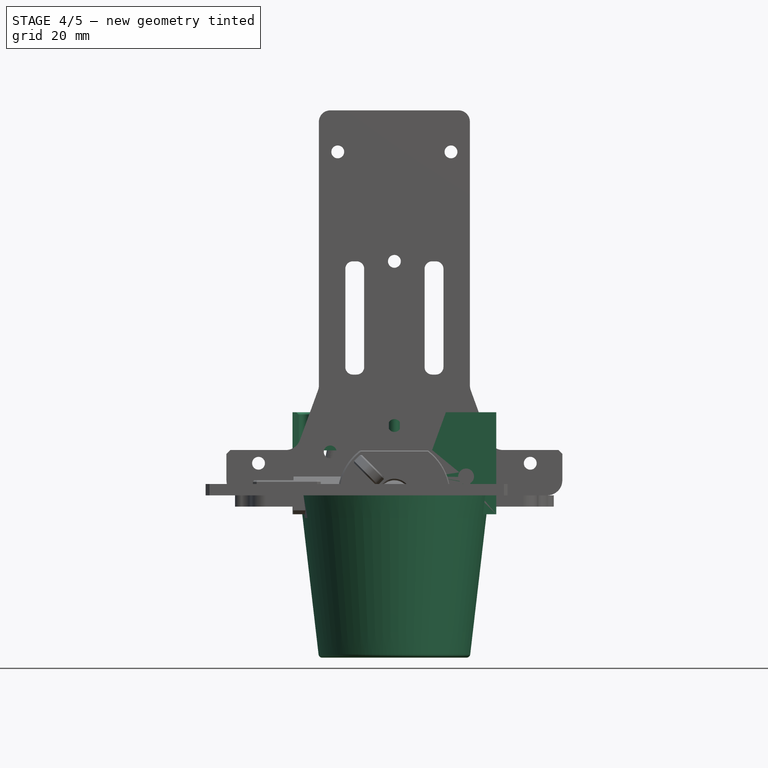
[diagram: stage 4 of 5 — front view after this stage's code; geometry added in this stage tinted green]
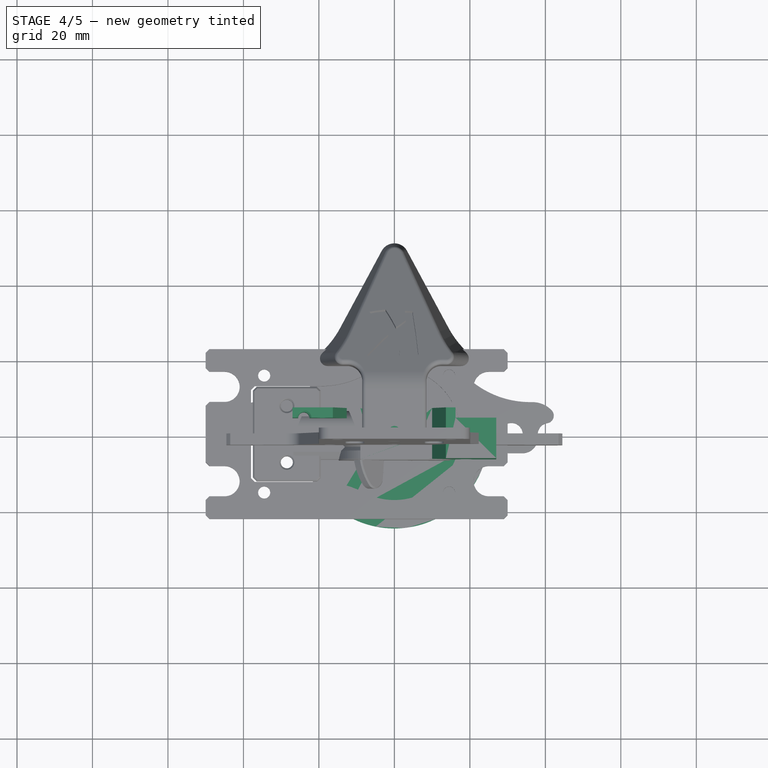
[diagram: stage 4 of 5 — top view after this stage's code; geometry added in this stage tinted green]
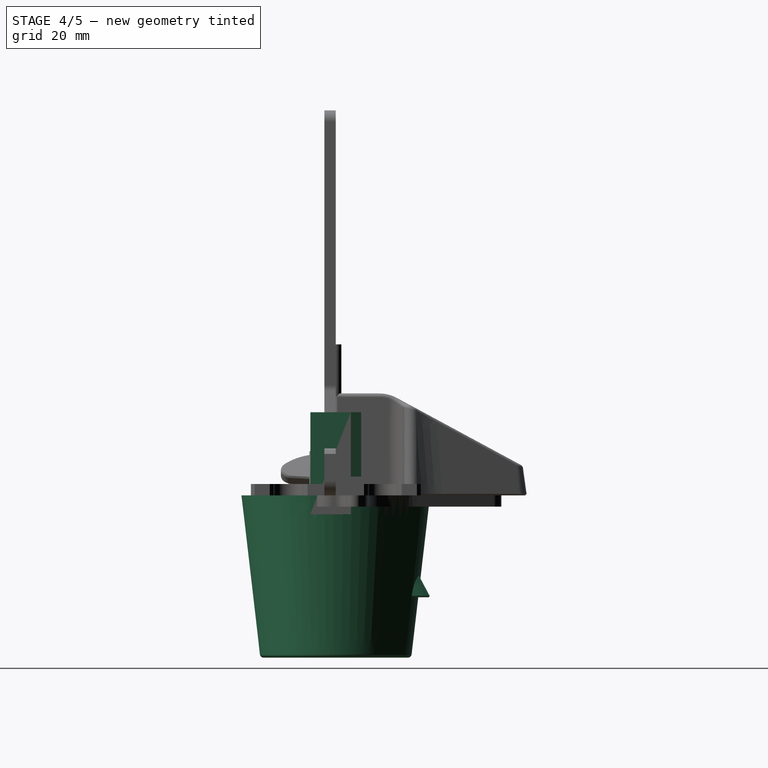
[diagram: stage 4 of 5 — right view after this stage's code; geometry added in this stage tinted green]
FEATURE [PartDesign::Plane] DatumPlane
  AttachmentOffset = pos=(0,0,-9) rot=(0,0,1;0rad)
  AttachmentSupport = -> [YZ_Plane]
  FixShape = 1
  InvalidShape = false
  Length = 13.3404
  MapMode = 5
  MinimumLength = 10
  MinimumWidth = 10
  Placement = pos=(-9,2e-15,-2e-15) rot=(0.57735,0.57735,0.57735;2.0944rad)
  ResizeMode = 0
  Support = -> [YZ_Plane]
  TreeRank = 20
  ValidateShape = false
  Width = 10
  expr: AttachmentOffset.Base.z = -Sketch.Constraints.LargeurTotal / 2
FEATURE [Sketcher::SketchObject] Sketch004
  ArcFitTolerance = 1e-06
  AttachmentSupport = -> [XZ_Plane001]
  ExternalBSplineMaxDegree = 5
  ExternalBSplineTolerance = 0.0001
  FixShape = 1
  FullyConstrained = true
  InternalTolerance = 1e-06
  InvalidShape = false
  MakeInternals = false
  MapMode = 5
  Placement = pos=(0,0,0) rot=(1,0,0;1.5708rad)
  Support = -> [XZ_Plane001]
  TreeRank = 37
  ValidateShape = false
  expr: Constraints[17] = Sketch.Constraints.LargeurTotal
  sketch-geometry (11):
    g0: LineSegment StartX=-9 StartY=12 StartZ=0 EndX=-9 EndY=5 EndZ=0
    g1: LineSegment StartX=-9 StartY=5 StartZ=0 EndX=10 EndY=5 EndZ=0
    g2: LineSegment StartX=10 StartY=5 StartZ=0 EndX=10 EndY=-5 EndZ=0
    g3: LineSegment StartX=10 StartY=-5 StartZ=0 EndX=27 EndY=-5 EndZ=0
    g4: LineSegment StartX=27 StartY=-5 StartZ=0 EndX=27 EndY=12 EndZ=0
    g5: LineSegment [constr] StartX=27 StartY=12 StartZ=0 EndX=-9 EndY=12 EndZ=0
    g6: LineSegment [constr] StartX=9 StartY=5 StartZ=0 EndX=9 EndY=-5 EndZ=0
    g7: LineSegment StartX=10 StartY=12 StartZ=0 EndX=10 EndY=22 EndZ=0
    g8: LineSegment StartX=10 StartY=22 StartZ=0 EndX=27 EndY=22 EndZ=0
    g9: LineSegment StartX=27 StartY=22 StartZ=0 EndX=27 EndY=12 EndZ=0
    g10: LineSegment StartX=-9 StartY=12 StartZ=0 EndX=10 EndY=12 EndZ=0
  constraints (31):
    c: Vertical(g0)
    c: Coincident(g0,g1)
    c: Horizontal(g1)
    c: Coincident(g1,g2)
    c: Coincident(g2,g3)
    c: Horizontal(g3)
    c: Coincident(g3,g4)
    c: Vertical(g4)
    c: Coincident(g4,g5)
    c: Coincident(g5,g0)
    c: Horizontal(g5)
    c: Vertical(g6)
    c: PointOnObject(g6,g3)
    c: DistanceY(g2,g2) = 10
    c: Symmetric(g1,g2,g-1)
    c: DistanceX(g6,g1) = 1
    c: Symmetric(g0,g6,g-2)
    c: DistanceX(g0,g6) = 18
    c: DistanceX(g3,g3) = 17
    c: DistanceY(g0,g0) = 7
    c: PointOnObject(g7,g5)
    c: Vertical(g7)
    c: Coincident(g7,g8)
    c: Horizontal(g8)
    c: Coincident(g8,g9)
    c: Coincident(g9,g4)
    c: Vertical(g9)
    c: Coincident(g10,g0)
    c: Coincident(g10,g7)
    c: PointOnObject(g7,g2)
    c: DistanceY(g9,g9) = 10
FEATURE [PartDesign::Pad] Pad002
  AddSubType = 0
  AlongSketchNormal = false
  AutoTaperInnerAngle = true
  CheckUpToFaceLimits = true
  ClaimChildren = false
  Direction = (0,-1,-2e-16)
  Fit = 0
  FitJoin = 0
  FixShape = 1
  InnerFit = 0
  InnerFitJoin = 0
  InvalidShape = false
  Length = 13.4558
  Length2 = 10
  Linearize = true
  Midplane = true
  NewSolid = false
  Profile = -> Sketch004
  ReferenceAxis = -> Sketch004 [N_Axis]
  Refine = true
  Suppress = false
  TaperInnerAngle = 0
  TaperInnerAngleRev = 0
  TreeRank = 38
  Type = 0
  ValidateShape = false
  _ProfileBasedVersion = 1
  expr: Length = Sketch.Constraints.HauteurTotal
FEATURE [Part::Feature] Solid  label="V623ZZ-intern"
  FixShape = 1
  InvalidShape = false
  TreeRank = 43
  ValidateShape = false
  shape: bbox 8 x 4 x 8 mm, 8 faces (baked)
FEATURE [Part::Feature] Solid001  label="V623ZZ-extern"
  FixShape = 1
  InvalidShape = false
  TreeRank = 44
  ValidateShape = false
  shape: bbox 12 x 4 x 12 mm, 7 faces (baked)
FEATURE [App::Part] Part  label="V623ZZ Left"
  ClaimAllChildren = false
  ExportMode = 1
  Group = -> [Solid,Solid001]
  Origin = -> Origin002
  Placement = pos=(19,2,5) rot=(0,0,1;0rad)
  TreeRank = 46
  _ExportChildren = -> [Solid,Solid001]
  _GroupVersion = 1
FEATURE [Sketcher::SketchObject] Sketch005
  ArcFitTolerance = 1e-06
  AttachmentSupport = -> [XZ_Plane001]
  ExternalBSplineMaxDegree = 5
  ExternalBSplineTolerance = 0.0001
  FixShape = 1
  FullyConstrained = true
  InternalTolerance = 1e-06
  InvalidShape = false
  MakeInternals = false
  MapMode = 5
  Placement = pos=(0,0,0) rot=(1,0,0;1.5708rad)
  Support = -> [XZ_Plane001]
  TreeRank = 59
  ValidateShape = false
  sketch-geometry (1):
    g0: Circle CenterX=19 CenterY=5 CenterZ=0 NormalX=0 NormalY=0 NormalZ=1 AngleXU=0 Radius=6.5
  constraints (3):
    c: Diameter(g0) = 13
    c: DistanceY(g-1,g0) = 5
    c: DistanceX(g-1,g0) = 19
FEATURE [PartDesign::Pocket] Pocket002
  AddSubType = 1
  AlongSketchNormal = false
  AutoTaperInnerAngle = true
  BaseFeature = -> Pad002
  CheckUpToFaceLimits = true
  ClaimChildren = false
  Direction = (0,1,2e-16)
  Fit = 0
  FitJoin = 0
  FixShape = 1
  InnerFit = 0
  InnerFitJoin = 0
  InvalidShape = false
  Length = 8
  Length2 = 10
  Linearize = true
  NewSolid = false
  Profile = -> Sketch005
  ReferenceAxis = -> Sketch005 [N_Axis]
  Refine = true
  Suppress = false
  TaperInnerAngle = 0
  TaperInnerAngleRev = 0
  TreeRank = 60
  Type = 1
  ValidateShape = false
  _ProfileBasedVersion = 1
  _Version = 1
FEATURE [Sketcher::SketchObject] Sketch006
  ArcFitTolerance = 1e-06
  AttachmentSupport = -> [XZ_Plane001]
  ExternalBSplineMaxDegree = 5
  ExternalBSplineTolerance = 0.0001
  ExternalGeometry = -> [Pocket002]
  FixShape = 1
  FullyConstrained = true
  InternalTolerance = 1e-06
  InvalidShape = false
  MakeInternals = false
  MapMode = 5
  Placement = pos=(0,0,0) rot=(1,0,0;1.5708rad)
  Support = -> [XZ_Plane001]
  TreeRank = 61
  ValidateShape = false
  sketch-geometry (1):
    g0: Circle CenterX=19 CenterY=5 CenterZ=0 NormalX=0 NormalY=0 NormalZ=1 AngleXU=0 Radius=3
  constraints (2):
    c: Coincident(g0,g-3)
    c: Diameter(g0) = 6
FEATURE [PartDesign::Pad] Pad003
  AddSubType = 0
  AlongSketchNormal = false
  AutoTaperInnerAngle = true
  BaseFeature = -> Pocket002
  CheckUpToFaceLimits = true
  ClaimChildren = false
  Direction = (0,-1,-2e-16)
  Fit = 0
  FitJoin = 0
  FixShape = 1
  InnerFit = 0
  InnerFitJoin = 0
  InvalidShape = false
  Length = 2
  Length2 = 10
  Linearize = true
  NewSolid = false
  Profile = -> Sketch006
  ReferenceAxis = -> Sketch006 [N_Axis]
  Refine = true
  Reversed = true
  Suppress = false
  TaperInnerAngle = 0
  TaperInnerAngleRev = 0
  TreeRank = 62
  Type = 0
  ValidateShape = false
  _ProfileBasedVersion = 1
FEATURE [Sketcher::SketchObject] Sketch007
  ArcFitTolerance = 1e-06
  AttachmentSupport = -> [Pad003]
  ExternalBSplineMaxDegree = 5
  ExternalBSplineTolerance = 0.0001
  ExternalGeometry = -> [Pad003]
  FixShape = 1
  FullyConstrained = true
  InternalTolerance = 1e-06
  InvalidShape = false
  MakeInternals = false
  MapMode = 5
  Placement = pos=(0,2,0) rot=(0,0.707107,0.707107;3.14159rad)
  Support = -> [Pad003]
  TreeRank = 63
  ValidateShape = false
  sketch-geometry (1):
    g0: Circle CenterX=-19 CenterY=5 CenterZ=0 NormalX=0 NormalY=0 NormalZ=1 AngleXU=0 Radius=2.1
  constraints (2):
    c: Coincident(g0,g-3)
    c: Diameter(g0) = 4.2
FEATURE [PartDesign::Pocket] Pocket003
  AddSubType = 1
  AlongSketchNormal = false
  AutoTaperInnerAngle = true
  BaseFeature = -> Pad003
  CheckUpToFaceLimits = true
  ClaimChildren = false
  Direction = (0,-1,2e-16)
  Fit = 0
  FitJoin = 0
  FixShape = 1
  InnerFit = 0
  InnerFitJoin = 0
  InvalidShape = false
  Length = 5
  Length2 = 10
  Linearize = true
  NewSolid = false
  Profile = -> Sketch007
  ReferenceAxis = -> Sketch007 [N_Axis]
  Refine = true
  Suppress = false
  TaperInnerAngle = 0
  TaperInnerAngleRev = 0
  TreeRank = 64
  Type = 1
  ValidateShape = false
  _ProfileBasedVersion = 1
  _Version = 1
FEATURE [PartDesign::Chamfer] Chamfer003
  AddSubType = 0
  Angle = 45
  Base = -> Pocket003 [Edge31]
  BaseFeature = -> Pocket003
  ChamferType = 0
  FixShape = 1
  FlipDirection = false
  InvalidShape = false
  NewSolid = false
  Refine = true
  Size = 1.99999
  Size2 = 1
  SupportTransform = false
  Suppress = false
  TreeRank = 65
  UseAllEdges = false
  ValidateShape = false
FEATURE [Sketcher::SketchObject] Sketch009
  ArcFitTolerance = 1e-06
  AttachmentSupport = -> [XY_Plane001]
  ExternalBSplineMaxDegree = 5
  ExternalBSplineTolerance = 0.0001
  FixShape = 1
  FullyConstrained = true
  InternalTolerance = 1e-06
  InvalidShape = false
  MakeInternals = false
  MapMode = 5
  Support = -> [XY_Plane001]
  TreeRank = 68
  ValidateShape = false
  sketch-geometry (2):
    g0: Circle CenterX=-5 CenterY=0 CenterZ=0 NormalX=0 NormalY=0 NormalZ=1 AngleXU=0 Radius=2.1
    g1: Circle CenterX=5 CenterY=0 CenterZ=0 NormalX=0 NormalY=0 NormalZ=1 AngleXU=0 Radius=2.1
  constraints (5):
    c: PointOnObject(g0,g-1)
    c: Symmetric(g1,g0,g-1)
    c: DistanceX(g0,g1) = 10
    c: Equal(g1,g0)
    c: Diameter(g1) = 4.2
FEATURE [PartDesign::Pocket] Pocket005
  AddSubType = 1
  AlongSketchNormal = false
  AutoTaperInnerAngle = true
  BaseFeature = -> Chamfer003
  CheckUpToFaceLimits = true
  ClaimChildren = false
  Direction = (0,0,-1)
  Fit = 0
  FitJoin = 0
  FixShape = 1
  InnerFit = 0
  InnerFitJoin = 0
  InvalidShape = false
  Length = 5
  Length2 = 10
  Linearize = true
  NewSolid = false
  Profile = -> Sketch009
  ReferenceAxis = -> Sketch009 [N_Axis]
  Refine = true
  Reversed = true
  Suppress = false
  TaperInnerAngle = 0
  TaperInnerAngleRev = 0
  TreeRank = 69
  Type = 1
  ValidateShape = false
  _ProfileBasedVersion = 1
  _Version = 1
FEATURE [PartDesign::Draft] Draft
  AddSubType = 0
  Angle = 20
  Base = -> Pocket005 [Face10]
  BaseFeature = -> Pocket005
  FixShape = 1
  InvalidShape = false
  NeutralPlane = -> Pocket005 [Face8]
  NewSolid = false
  Refine = true
  SupportTransform = false
  Suppress = false
  TreeRank = 70
  ValidateShape = false
FEATURE [Sketcher::SketchObject] Sketch010
  ArcFitTolerance = 1e-06
  AttachmentOffset = pos=(0,0,-4) rot=(0,0,1;0rad)
  AttachmentSupport = -> [XZ_Plane001]
  ExternalBSplineMaxDegree = 5
  ExternalBSplineTolerance = 0.0001
  ExternalGeometry = -> [Draft]
  FixShape = 1
  FullyConstrained = true
  InternalTolerance = 1e-06
  InvalidShape = false
  MakeInternals = false
  MapMode = 5
  Placement = pos=(0,4,9e-16) rot=(1,0,0;1.5708rad)
  Support = -> [XZ_Plane001]
  TreeRank = 71
  ValidateShape = false
  sketch-geometry (4):
    g0: LineSegment StartX=27 StartY=22 StartZ=0 EndX=27 EndY=-5 EndZ=0
    g1: LineSegment StartX=6.3603 StartY=-5 StartZ=0 EndX=16.1875 EndY=22 EndZ=0
    g2: LineSegment StartX=27 StartY=22 StartZ=0 EndX=16.1875 EndY=22 EndZ=0
    g3: LineSegment StartX=27 StartY=-5 StartZ=0 EndX=6.3603 EndY=-5 EndZ=0
  constraints (10):
    c: Coincident(g0,g-3)
    c: Coincident(g0,g-3)
    c: Coincident(g2,g0)
    c: Coincident(g2,g1)
    c: Horizontal(g2)
    c: Coincident(g3,g0)
    c: Horizontal(g3)
    c: Coincident(g1,g3)
    c: Parallel(g-4,g1)
    c: PointOnObject(g-5,g1)
FEATURE [PartDesign::Pocket] Pocket006
  AddSubType = 1
  AlongSketchNormal = false
  AutoTaperInnerAngle = true
  BaseFeature = -> Draft
  CheckUpToFaceLimits = true
  ClaimChildren = false
  Direction = (0,1,2e-16)
  Fit = 0
  FitJoin = 0
  FixShape = 1
  InnerFit = 0
  InnerFitJoin = 0
  InvalidShape = false
  Length = 5
  Length2 = 10
  Linearize = true
  NewSolid = false
  Profile = -> Sketch010
  ReferenceAxis = -> Sketch010 [N_Axis]
  Refine = true
  Suppress = false
  TaperInnerAngle = 0
  TaperInnerAngleRev = 0
  TreeRank = 72
  Type = 1
  ValidateShape = false
  _ProfileBasedVersion = 1
  _Version = 1
FEATURE [Part::SubShapeBinder] Import  label="Import(Chamfer006)"
  BindCopyOnChange = 0
  BindMode = 0
  ClaimChildren = false
  Context = -> <external main-actuator.FCStd>#Part [Part005.Part003.Link008.Part004.Body002.Import.]
  EdgeTolerance = 1e-06
  FillStyle = 0
  FixShape = 1
  Fuse = false
  InvalidShape = false
  MakeFace = false
  MergeEdges = true
  OffsetFill = false
  OffsetIntersection = false
  OffsetJoinType = 0
  OffsetOpenResult = false
  Outline = false
  PartialLoad = false
  Relative = true
  SplitEdges = false
  Support = -> [Body001[Chamfer006.]]
  TightBound = false
  TreeRank = 97
  ValidateShape = false
  _Version = 8
FEATURE [Sketcher::SketchObject] Sketch015
  ArcFitTolerance = 1e-06
  AttachmentSupport = -> [XZ_Plane003]
  ExternalBSplineMaxDegree = 5
  ExternalBSplineTolerance = 0.0001
  ExternalGeometry = -> [Import]
  FixShape = 1
  FullyConstrained = true
  InternalTolerance = 1e-06
  InvalidShape = false
  MakeInternals = false
  MapMode = 5
  Placement = pos=(0,0,0) rot=(1,0,0;1.5708rad)
  Support = -> [XZ_Plane003]
  TreeRank = 96
  ValidateShape = false
  sketch-geometry (6):
    g0: LineSegment StartX=27 StartY=22 StartZ=0 EndX=16.2875 EndY=22 EndZ=0
    g1: LineSegment StartX=16.2875 StartY=22 StartZ=0 EndX=12.6114 EndY=11.9 EndZ=0
    g2: LineSegment StartX=12.6114 StartY=11.9 StartZ=0 EndX=27 EndY=11.9 EndZ=0
    g3: LineSegment StartX=27 StartY=11.9 StartZ=0 EndX=27 EndY=22 EndZ=0
    g4: GeomPoint [constr] X=19 Y=11.5 Z=0
    g5: Circle CenterX=19 CenterY=18 CenterZ=0 NormalX=0 NormalY=0 NormalZ=1 AngleXU=0 Radius=1.6
  constraints (15):
    c: Coincident(g0,g-4)
    c: Horizontal(g0)
    c: Coincident(g1,g0)
    c: Coincident(g2,g1)
    c: PointOnObject(g2,g-4)
    c: Horizontal(g2)
    c: Coincident(g3,g2)
    c: Coincident(g3,g0)
    c: PointOnObject(g4,g-6)
    c: Coincident(g5,g-3)
    c: Diameter(g5) = 3.2
    c: DistanceY(g4,g1) = 0.4
    c: Vertical(g4,g-6)
    c: DistanceX(g-7,g0) = 0.1
    c: Parallel(g1,g-7)
FEATURE [PartDesign::Pad] Pad004
  AddSubType = 0
  AlongSketchNormal = false
  AutoTaperInnerAngle = true
  CheckUpToFaceLimits = true
  ClaimChildren = false
  Direction = (0,-1,-2e-16)
  Fit = 0
  FitJoin = 0
  FixShape = 1
  InnerFit = 0
  InnerFitJoin = 0
  InvalidShape = false
  Length = 2.55
  Length2 = 10
  Linearize = true
  NewSolid = false
  Profile = -> Sketch015
  ReferenceAxis = -> Sketch015 [N_Axis]
  Refine = true
  Reversed = true
  Suppress = false
  TaperInnerAngle = 0
  TaperInnerAngleRev = 0
  TreeRank = 98
  Type = 3
  UpToFace = -> Import [Face3]
  ValidateShape = false
  _ProfileBasedVersion = 1
FEATURE [PartDesign::Chamfer] Chamfer007
  AddSubType = 0
  Angle = 45
  Base = -> Pad004 [Edge13]
  BaseFeature = -> Pad004
  ChamferType = 0
  FixShape = 1
  FlipDirection = false
  InvalidShape = false
  NewSolid = false
  Refine = true
  Size = 1.5
  Size2 = 1
  SupportTransform = false
  Suppress = false
  TreeRank = 99
  UseAllEdges = false
  ValidateShape = false
FEATURE [Sketcher::SketchObject] Sketch016
  ArcFitTolerance = 1e-06
  AttachmentSupport = -> [Chamfer007]
  ExternalBSplineMaxDegree = 5
  ExternalBSplineTolerance = 0.0001
  ExternalGeometry = -> [Import]
  FixShape = 1
  FullyConstrained = true
  InternalTolerance = 1e-06
  InvalidShape = false
  MakeInternals = false
  MapMode = 5
  Placement = pos=(0,-4.9e-15,22) rot=(0,0,1;0rad)
  Support = -> [Chamfer007]
  TreeRank = 100
  ValidateShape = false
  sketch-geometry (1):
    g0: Circle CenterX=24 CenterY=0 CenterZ=0 NormalX=0 NormalY=0 NormalZ=1 AngleXU=0 Radius=1.5
  constraints (3):
    c: PointOnObject(g0,g-1)
    c: PointOnObject(g-3,g0)
    c: Diameter(g0) = 3
FEATURE [PartDesign::Pocket] Pocket009
  AddSubType = 1
  AlongSketchNormal = false
  AutoTaperInnerAngle = true
  BaseFeature = -> Chamfer007
  CheckUpToFaceLimits = true
  ClaimChildren = false
  Direction = (0,2e-16,-1)
  Fit = 0
  FitJoin = 0
  FixShape = 1
  InnerFit = 0
  InnerFitJoin = 0
  InvalidShape = false
  Length = 5
  Length2 = 10
  Linearize = true
  NewSolid = false
  Profile = -> Sketch016
  ReferenceAxis = -> Sketch016 [N_Axis]
  Refine = true
  Suppress = false
  TaperInnerAngle = 0
  TaperInnerAngleRev = 0
  TreeRank = 101
  Type = 1
  ValidateShape = false
  _ProfileBasedVersion = 1
  _Version = 1
FEATURE [PartDesign::Chamfer] Chamfer008
  AddSubType = 0
  Angle = 45
  Base = -> Pocket009 [Edge18,Edge9]
  BaseFeature = -> Pocket009
  ChamferType = 0
  FixShape = 1
  FlipDirection = false
  InvalidShape = false
  NewSolid = false
  Refine = true
  Size = 0.5
  Size2 = 1
  SupportTransform = false
  Suppress = false
  TreeRank = 102
  UseAllEdges = false
  ValidateShape = false
FEATURE [PartDesign::Body] Body007  label="CopySupportLeft"
  AutoGroupSolids = false
  BaseFeature = -> Body001
  ClaimAllChildren = false
  ExportMode = 0
  FixShape = 1
  Group = -> [Clone001]
  InvalidShape = false
  Origin = -> Origin012
  SingleSolid = true
  Tip = -> Clone001
  TreeRank = 280
  ValidateShape = false
  _ExportChildren = -> [Clone001]
  _GroupVersion = 1
FEATURE [PartDesign::FeatureBase] Clone002
  BaseFeature = -> Body002
  FixShape = 1
  InvalidShape = false
  NewSolid = false
  Placement = pos=(0,4,0) rot=(0,0,1;0rad)
  Suppress = false
  TreeRank = 277
  ValidateShape = false
FEATURE [Part::Mirroring] Part__Mirroring002  label="CliptubeRight"
  Base = (0,0,0)
  FixShape = 1
  InvalidShape = false
  Normal = (1,0,0)
  Source = -> Body008
  TreeRank = 288
  ValidateShape = false
FEATURE [App::Link] Link  label="V623ZZ Right"
  AutoLinkLabel = true
  AutoPlacement = true
  LinkPlacement = pos=(-19,2,5) rot=(0,0,1;0rad)
  LinkedObject = -> Part
  Placement = pos=(-19,2,5) rot=(0,0,1;0rad)
  SyncGroupVisibility = false
  TreeRank = 289
  _LinkVersion = 1
FEATURE [Part::SubShapeBinder] Import002  label="Import002(Chamfer019)"
  BindCopyOnChange = 0
  BindMode = 0
  ClaimChildren = false
  Context = -> Part008 [Part006.Body009.Import002.]
  EdgeTolerance = 1e-06
  FillStyle = 0
  FixShape = 1
  Fuse = false
  InvalidShape = false
  MakeFace = false
  MergeEdges = true
  OffsetFill = false
  OffsetIntersection = false
  OffsetJoinType = 0
  OffsetOpenResult = false
  Outline = false
  PartialLoad = false
  Relative = true
  SplitEdges = false
  Support = -> [Part004[Body001.Chamfer019.]]
  TightBound = false
  TreeRank = 301
  ValidateShape = false
  _Version = 8
FEATURE [Sketcher::SketchObject] Sketch033
  ArcFitTolerance = 1e-06
  AttachmentSupport = -> [XY_Plane014]
  ExternalBSplineMaxDegree = 5
  ExternalBSplineTolerance = 0.0001
  ExternalGeometry = -> [Import002]
  FixShape = 1
  FullyConstrained = true
  InternalTolerance = 1e-06
  InvalidShape = false
  MakeInternals = false
  MapMode = 5
  Support = -> [XY_Plane014]
  TreeRank = 300
  ValidateShape = false
  sketch-geometry (5):
    g0: LineSegment StartX=-8.75 StartY=6.72792 StartZ=0 EndX=-8.75 EndY=-6.72792 EndZ=0
    g1: LineSegment StartX=-8.75 StartY=-6.72792 StartZ=0 EndX=8.75 EndY=-6.72792 EndZ=0
    g2: LineSegment StartX=8.75 StartY=-6.72792 StartZ=0 EndX=8.75 EndY=6.72792 EndZ=0
    g3: LineSegment StartX=8.75 StartY=6.72792 StartZ=0 EndX=-8.75 EndY=6.72792 EndZ=0
    g4: GeomPoint [constr] X=0 Y=0 Z=0
  constraints (12):
    c: Coincident(g0,g1)
    c: Coincident(g1,g2)
    c: Coincident(g2,g3)
    c: Coincident(g3,g0)
    c: Horizontal(g1)
    c: Horizontal(g3)
    c: Vertical(g0)
    c: Vertical(g2)
    c: Symmetric(g1,g0,g4)
    c: DistanceX(g1,g1) = 17.5
    c: PointOnObject(g0,g-3)
    c: Coincident(g4,g-1)
FEATURE [PartDesign::Pad] Pad010
  AddSubType = 0
  AlongSketchNormal = false
  AutoTaperInnerAngle = true
  CheckUpToFaceLimits = true
  ClaimChildren = false
  Direction = (0,0,1)
  Fit = 0
  FitJoin = 0
  FixShape = 1
  InnerFit = 0
  InnerFitJoin = 0
  InvalidShape = false
  Length = 27
  Length2 = 10
  Linearize = true
  NewSolid = false
  Profile = -> Sketch033
  ReferenceAxis = -> Sketch033 [N_Axis]
  Refine = true
  Reversed = true
  Suppress = false
  TaperInnerAngle = 0
  TaperInnerAngleRev = 0
  TreeRank = 302
  Type = 0
  ValidateShape = false
  _ProfileBasedVersion = 1
FEATURE [Sketcher::SketchObject] Sketch034
  ArcFitTolerance = 1e-06
  AttachmentSupport = -> [Pad010]
  ExternalBSplineMaxDegree = 5
  ExternalBSplineTolerance = 0.0001
  FixShape = 1
  FullyConstrained = true
  InternalTolerance = 1e-06
  InvalidShape = false
  MakeInternals = false
  MapMode = 5
  Placement = pos=(0,0,-27) rot=(1,0,0;3.14159rad)
  Support = -> [Pad010]
  TreeRank = 303
  ValidateShape = false
  sketch-geometry (2):
    g0: Circle CenterX=-5 CenterY=0 CenterZ=0 NormalX=0 NormalY=0 NormalZ=1 AngleXU=0 Radius=2.1
    g1: Circle CenterX=5 CenterY=0 CenterZ=0 NormalX=0 NormalY=0 NormalZ=1 AngleXU=0 Radius=2.1
  constraints (5):
    c: PointOnObject(g0,g-1)
    c: Equal(g0,g1)
    c: Diameter(g0) = 4.2
    c: Symmetric(g0,g1,g-1)
    c: DistanceX(g0,g1) = 10
FEATURE [PartDesign::Pocket] Pocket016
  AddSubType = 1
  AlongSketchNormal = false
  AutoTaperInnerAngle = true
  BaseFeature = -> Pad010
  CheckUpToFaceLimits = true
  ClaimChildren = false
  Direction = (0,0,1)
  Fit = 0
  FitJoin = 0
  FixShape = 1
  InnerFit = 0
  InnerFitJoin = 0
  InvalidShape = false
  Length = 12
  Length2 = 10
  Linearize = true
  NewSolid = false
  Profile = -> Sketch034
  ReferenceAxis = -> Sketch034 [N_Axis]
  Refine = true
  Suppress = false
  TaperInnerAngle = 0
  TaperInnerAngleRev = 0
  TreeRank = 304
  Type = 0
  ValidateShape = false
  _ProfileBasedVersion = 1
  _Version = 1
FEATURE [Sketcher::SketchObject] Sketch035
  ArcFitTolerance = 1e-06
  AttachmentSupport = -> [XZ_Plane014]
  ExternalBSplineMaxDegree = 5
  ExternalBSplineTolerance = 0.0001
  ExternalGeometry = -> [Pocket016]
  FixShape = 1
  FullyConstrained = true
  InternalTolerance = 1e-06
  InvalidShape = false
  MakeInternals = false
  MapMode = 5
  Placement = pos=(0,0,0) rot=(1,0,0;1.5708rad)
  Support = -> [XZ_Plane014]
  TreeRank = 305
  ValidateShape = false
  sketch-geometry (3):
    g0: Circle CenterX=0 CenterY=-3.5 CenterZ=0 NormalX=0 NormalY=0 NormalZ=1 AngleXU=0 Radius=2.1
    g1: Circle CenterX=0 CenterY=-13.5 CenterZ=0 NormalX=0 NormalY=0 NormalZ=1 AngleXU=0 Radius=2.1
    g2: GeomPoint [constr] X=0 Y=-8.5 Z=0
  constraints (7):
    c: PointOnObject(g0,g-2)
    c: PointOnObject(g1,g-2)
    c: Equal(g0,g1)
    c: Diameter(g0) = 4.2
    c: Symmetric(g1,g0,g2)
    c: DistanceY(g1,g0) = 10
    c: DistanceY(g2,g-1) = 8.5
FEATURE [PartDesign::Pocket] Pocket017
  AddSubType = 1
  AlongSketchNormal = false
  AutoTaperInnerAngle = true
  BaseFeature = -> Pocket016
  CheckUpToFaceLimits = true
  ClaimChildren = false
  Direction = (0,1,2e-16)
  Fit = 0
  FitJoin = 0
  FixShape = 1
  InnerFit = 0
  InnerFitJoin = 0
  InvalidShape = false
  Length = 11
  Length2 = 2
  Linearize = true
  NewSolid = false
  Profile = -> Sketch035
  ReferenceAxis = -> Sketch035 [N_Axis]
  Refine = true
  Reversed = true
  Suppress = false
  TaperInnerAngle = 0
  TaperInnerAngleRev = 0
  TreeRank = 306
  Type = 4
  ValidateShape = false
  _ProfileBasedVersion = 1
  _Version = 1
FEATURE [TechDraw::DrawSVGTemplate] Template
  Height = 210
  Orientation = 1
  Template = <path>
  TreeRank = 351
  Width = 297
FEATURE [Sketcher::SketchObject] Sketch038
  ArcFitTolerance = 1e-06
  AttachmentSupport = -> [YZ_Plane017]
  ExternalBSplineMaxDegree = 5
  ExternalBSplineTolerance = 0.0001
  FixShape = 1
  FullyConstrained = true
  InternalTolerance = 1e-06
  InvalidShape = false
  MakeInternals = false
  MapMode = 5
  Placement = pos=(0,0,0) rot=(0.57735,0.57735,0.57735;2.0944rad)
  Support = -> [YZ_Plane017]
  TreeRank = 365
  ValidateShape = false
  sketch-geometry (4):
    g0: LineSegment StartX=0 StartY=0 StartZ=0 EndX=25 EndY=0 EndZ=0
    g1: LineSegment StartX=25 StartY=0 StartZ=0 EndX=20 EndY=-43 EndZ=0
    g2: LineSegment StartX=20 StartY=-43 StartZ=0 EndX=0 EndY=-43 EndZ=0
    g3: LineSegment StartX=0 StartY=-43 StartZ=0 EndX=0 EndY=0 EndZ=0
  constraints (11):
    c: Coincident(g0,g-1)
    c: PointOnObject(g0,g-1)
    c: Coincident(g0,g1)
    c: Coincident(g1,g2)
    c: PointOnObject(g2,g-2)
    c: Horizontal(g2)
    c: Coincident(g2,g3)
    c: Coincident(g3,g0)
    c: DistanceX(g0,g0) = 25
    c: DistanceX(g2,g2) = 20
    c: DistanceY(g3,g3) = 43
FEATURE [PartDesign::Revolution] Revolution
  AddSubType = 0
  Angle = 360
  Axis = (-2e-16,3e-16,1)
  Base = (0,0,0)
  ClaimChildren = false
  Fit = 0
  FitJoin = 0
  FixShape = 1
  InnerFit = 0
  InnerFitJoin = 0
  InvalidShape = false
  Linearize = true
  NewSolid = false
  Profile = -> Sketch038
  ReferenceAxis = -> Sketch038 [V_Axis]
  Refine = true
  Reversed = true
  Suppress = false
  TreeRank = 366
  ValidateShape = false
  _ProfileBasedVersion = 1
FEATURE [PartDesign::Fillet] Fillet010
  AddSubType = 0
  Base = -> Revolution [Edge3]
  BaseFeature = -> Revolution
  FixShape = 1
  InvalidShape = false
  NewSolid = false
  Radius = 1
  Refine = true
  SupportTransform = false
  Suppress = false
  TreeRank = 367
  UseAllEdges = false
  ValidateShape = false
FEATURE [PartDesign::Pad] Pad014
  AddSubType = 0
  AlongSketchNormal = false
  AutoTaperInnerAngle = true
  BaseFeature = -> Pocket017
  CheckUpToFaceLimits = true
  ClaimChildren = false
  Direction = (0,1,0)
  Fit = 0
  FitJoin = 0
  FixShape = 1
  InnerFit = 0
  InnerFitJoin = 0
  InvalidShape = false
  Length = 4
  Length2 = 10
  Linearize = true
  NewSolid = false
  Profile = -> Pocket017 [Face2]
  Refine = true
  Suppress = false
  TaperInnerAngle = 0
  TaperInnerAngleRev = 0
  TreeRank = 418
  Type = 0
  ValidateShape = false
  _ProfileBasedVersion = 1
FEATURE [PartDesign::Draft] Draft002
  AddSubType = 0
  Angle = 28
  Base = -> Pad014 [Face7]
  BaseFeature = -> Pad014
  FixShape = 1
  InvalidShape = false
  NeutralPlane = -> Pad014 [Face8]
  NewSolid = false
  Refine = true
  SupportTransform = false
  Suppress = false
  TreeRank = 419
  ValidateShape = false
FEATURE [PartDesign::Fillet] Fillet015
  AddSubType = 0
  Base = -> Draft002 [Edge14,Edge12]
  BaseFeature = -> Draft002
  FixShape = 1
  InvalidShape = false
  NewSolid = false
  Radius = 5
  Refine = true
  SupportTransform = false
  Suppress = false
  TreeRank = 420
  UseAllEdges = false
  ValidateShape = false
FEATURE [PartDesign::Chamfer] Chamfer025
  AddSubType = 0
  Angle = 45
  Base = -> Fillet015 [Edge12]
  BaseFeature = -> Fillet015
  ChamferType = 0
  FixShape = 1
  FlipDirection = false
  InvalidShape = false
  NewSolid = false
  Refine = true
  Size = 2
  Size2 = 1
  SupportTransform = false
  Suppress = false
  TreeRank = 421
  UseAllEdges = false
  ValidateShape = false
FEATURE [PartDesign::Chamfer] Chamfer026
  AddSubType = 0
  Angle = 45
  Base = -> Chamfer025 [Face4,Face5,Edge9,Edge10,Edge8,Edge1,Edge2,Edge12]
  BaseFeature = -> Chamfer025
  ChamferType = 0
  FixShape = 1
  FlipDirection = false
  InvalidShape = false
  NewSolid = false
  Refine = true
  Size = 0.4
  Size2 = 1
  SupportTransform = false
  Suppress = false
  TreeRank = 422
  UseAllEdges = false
  ValidateShape = false
FEATURE [PartDesign::Body] Body011  label="PlaqueSupport"
  AutoGroupSolids = false
  ClaimAllChildren = false
  ExportMode = 0
  FixShape = 1
  Group = -> [Sketch037,Import004,Pad012,Fillet007,Fillet008,Chamfer024,Fillet012,Sketch040,Pocket018,Fillet016]
  InvalidShape = false
  Origin = -> Origin018
  Placement = pos=(0,-6.73,0) rot=(0,0,1;0rad)
  SingleSolid = true
  Tip = -> Fillet016
  TreeRank = 342
  ValidateShape = false
  _ExportChildren = -> [Import004,Pad012,Fillet007,Fillet008,Chamfer024,Fillet012,Pocket018,Fillet016]
  _GroupVersion = 1
FEATURE [Sketcher::SketchObject] Sketch042
  ArcFitTolerance = 1e-06
  AttachmentSupport = -> [XY_Plane020]
  ExternalBSplineMaxDegree = 5
  ExternalBSplineTolerance = 0.0001
  FixShape = 1
  FullyConstrained = true
  InternalTolerance = 1e-06
  InvalidShape = false
  MakeInternals = false
  MapMode = 5
  Support = -> [XY_Plane020]
  TreeRank = 434
  ValidateShape = false
  sketch-geometry (2):
    g0: Circle CenterX=0 CenterY=0 CenterZ=0 NormalX=0 NormalY=0 NormalZ=1 AngleXU=0 Radius=1.5
    g1: Circle CenterX=0 CenterY=0 CenterZ=0 NormalX=0 NormalY=0 NormalZ=1 AngleXU=0 Radius=0.5
  constraints (4):
    c: Coincident(g0,g-1)
    c: Coincident(g1,g0)
    c: Diameter(g1) = 1
    c: Diameter(g0) = 3
FEATURE [PartDesign::Pad] Pad015
  AddSubType = 0
  AlongSketchNormal = false
  AutoTaperInnerAngle = true
  CheckUpToFaceLimits = true
  ClaimChildren = false
  Direction = (0,0,1)
  Fit = 0
  FitJoin = 0
  FixShape = 1
  InnerFit = 0
  InnerFitJoin = 0
  InvalidShape = false
  Length = 40
  Length2 = 10
  Linearize = true
  NewSolid = false
  Profile = -> Sketch042
  ReferenceAxis = -> Sketch042 [N_Axis]
  Refine = true
  Suppress = false
  TaperInnerAngle = 0
  TaperInnerAngleRev = 0
  TreeRank = 435
  Type = 0
  ValidateShape = false
  _ProfileBasedVersion = 1
FEATURE [PartDesign::Chamfer] Chamfer027
  AddSubType = 0
  Angle = 45
  Base = -> Mirrored [Edge51,Edge55,Edge59,Edge67,Edge49,Edge41,Edge29,Edge27,Edge22,Edge17]
  BaseFeature = -> Mirrored
  ChamferType = 0
  FixShape = 1
  FlipDirection = false
  InvalidShape = false
  NewSolid = false
  Refine = true
  Size = 0.4
  Size2 = 1
  SupportTransform = false
  Suppress = false
  TreeRank = 459
  UseAllEdges = false
  ValidateShape = true
FEATURE [PartDesign::Chamfer] Chamfer028
  AddSubType = 0
  Angle = 45
  Base = -> Chamfer027 [Edge7,Edge3]
  BaseFeature = -> Chamfer027
  ChamferType = 0
  FixShape = 1
  FlipDirection = false
  InvalidShape = false
  NewSolid = false
  Refine = true
  Size = 1
  Size2 = 1
  SupportTransform = false
  Suppress = false
  TreeRank = 460
  UseAllEdges = false
  ValidateShape = true
FEATURE [PartDesign::Chamfer] Chamfer029
  AddSubType = 0
  Angle = 45
  Base = -> Chamfer028 [Face2,Face9,Face5]
  BaseFeature = -> Chamfer028
  ChamferType = 0
  FixShape = 1
  FlipDirection = false
  InvalidShape = false
  NewSolid = false
  Refine = true
  Size = 0.4
  Size2 = 1
  SupportTransform = false
  Suppress = false
  TreeRank = 461
  UseAllEdges = false
  ValidateShape = true
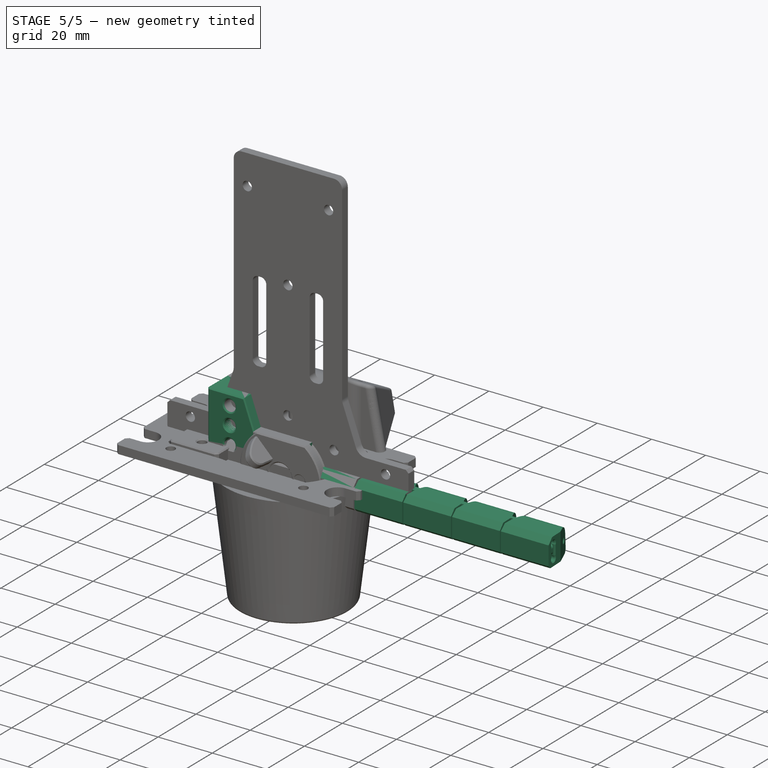
[diagram: stage 5 of 5 — iso view after this stage's code; geometry added in this stage tinted green]
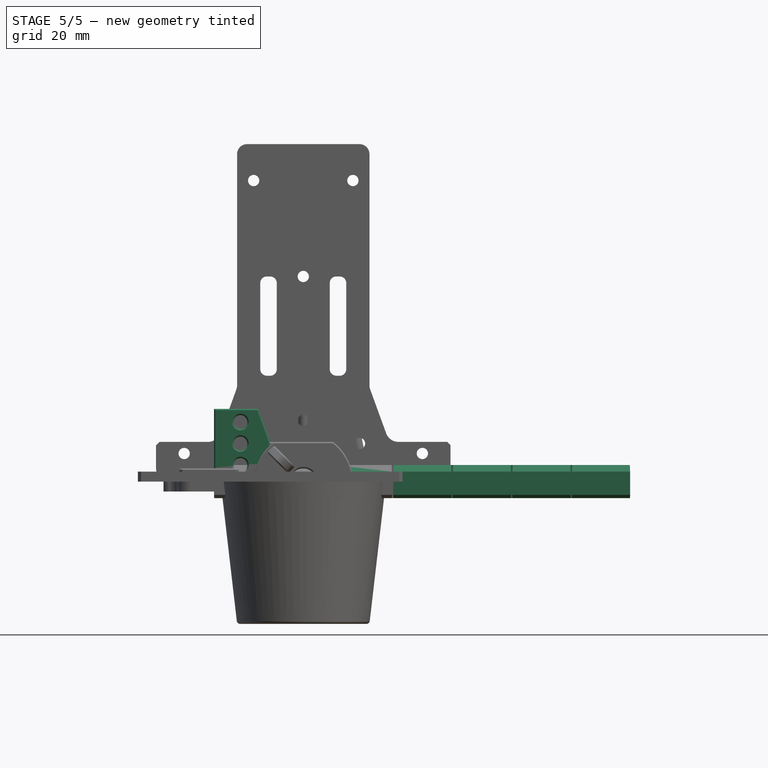
[diagram: stage 5 of 5 — front view after this stage's code; geometry added in this stage tinted green]
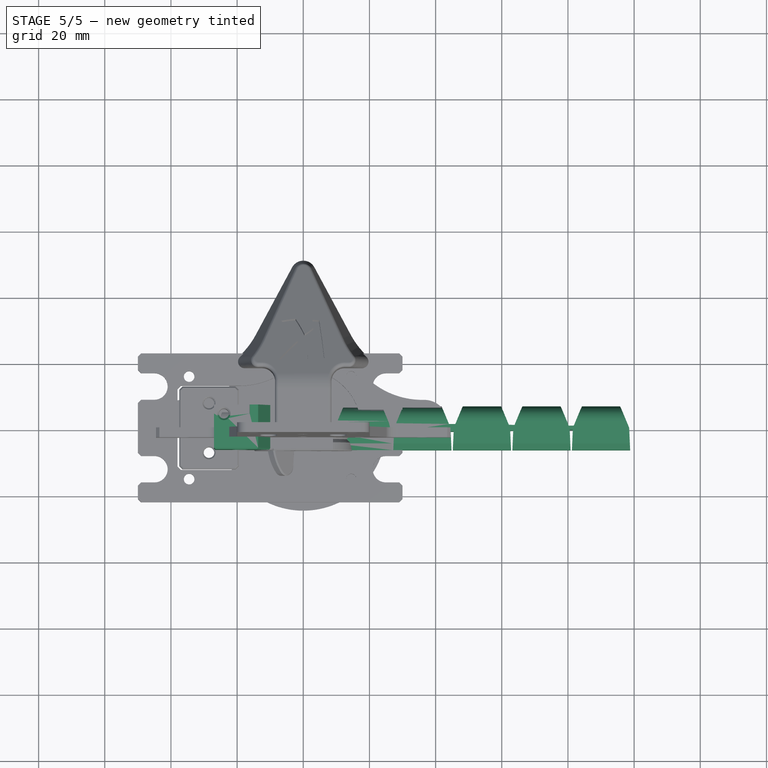
[diagram: stage 5 of 5 — top view after this stage's code; geometry added in this stage tinted green]
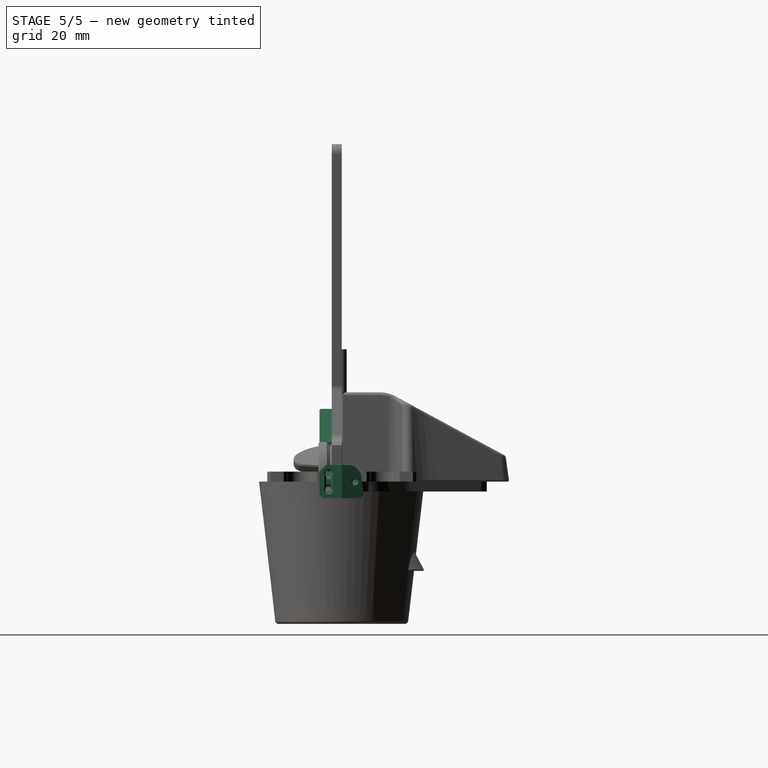
[diagram: stage 5 of 5 — right view after this stage's code; geometry added in this stage tinted green]
FEATURE [Sketcher::SketchObject] Sketch
  ArcFitTolerance = 1e-06
  AttachmentSupport = -> [XY_Plane]
  ExternalBSplineMaxDegree = 5
  ExternalBSplineTolerance = 0.0001
  FixShape = 1
  FullyConstrained = true
  InternalTolerance = 1e-06
  InvalidShape = false
  MakeInternals = false
  MapMode = 5
  Support = -> [XY_Plane]
  TreeRank = 11
  ValidateShape = false
  sketch-geometry (27):
    g0: LineSegment [constr] StartX=6.2132 StartY=6.72792 StartZ=0 EndX=15 EndY=15.5147 EndZ=0
    g1: LineSegment [constr] StartX=15 StartY=15.5147 StartZ=0 EndX=15 EndY=27.9411 EndZ=0
    g2: LineSegment [constr] StartX=15 StartY=27.9411 StartZ=0 EndX=6.2132 EndY=36.7279 EndZ=0
    g3: LineSegment [constr] StartX=6.2132 StartY=36.7279 StartZ=0 EndX=-6.2132 EndY=36.7279 EndZ=0
    g4: LineSegment [constr] StartX=-6.2132 StartY=36.7279 StartZ=0 EndX=-15 EndY=27.9411 EndZ=0
    g5: LineSegment [constr] StartX=-15 StartY=27.9411 StartZ=0 EndX=-15 EndY=15.5147 EndZ=0
    g6: LineSegment [constr] StartX=-15 StartY=15.5147 StartZ=0 EndX=-6.2132 EndY=6.72792 EndZ=0
    g7: LineSegment [constr] StartX=-6.2132 StartY=6.72792 StartZ=0 EndX=6.2132 EndY=6.72792 EndZ=0
    g8: Circle [constr] CenterX=2.5e-15 CenterY=21.7279 CenterZ=0 NormalX=0 NormalY=0 NormalZ=1 AngleXU=0 Radius=16.2359
    g9: LineSegment [constr] StartX=9 StartY=0 StartZ=0 EndX=21.7279 EndY=12.7279 EndZ=0
    g10: LineSegment [constr] StartX=21.7279 StartY=12.7279 StartZ=0 EndX=21.7279 EndY=30.7279 EndZ=0
    g11: LineSegment [constr] StartX=21.7279 StartY=30.7279 StartZ=0 EndX=9 EndY=43.4558 EndZ=0
    g12: LineSegment [constr] StartX=9 StartY=43.4558 StartZ=0 EndX=-9 EndY=43.4558 EndZ=0
    g13: LineSegment [constr] StartX=-9 StartY=43.4558 StartZ=0 EndX=-21.7279 EndY=30.7279 EndZ=0
    g14: LineSegment [constr] StartX=-21.7279 StartY=30.7279 StartZ=0 EndX=-21.7279 EndY=12.7279 EndZ=0
    g15: LineSegment [constr] StartX=-21.7279 StartY=12.7279 StartZ=0 EndX=-9 EndY=0 EndZ=0
    g16: LineSegment [constr] StartX=-9 StartY=0 StartZ=0 EndX=9 EndY=0 EndZ=0
    g17: Circle [constr] CenterX=2.5e-15 CenterY=21.7279 CenterZ=0 NormalX=0 NormalY=0 NormalZ=1 AngleXU=0 Radius=23.5181
    g18: LineSegment StartX=8.5 StartY=0 StartZ=0 EndX=5.7132 EndY=6.72792 EndZ=0
    g19: LineSegment StartX=5.7132 StartY=6.72792 StartZ=0 EndX=-5.7132 EndY=6.72792 EndZ=0
    g20: LineSegment StartX=-5.7132 StartY=6.72792 StartZ=0 EndX=-8.5 EndY=0 EndZ=0
    g21: LineSegment StartX=8.5 StartY=0 StartZ=0 EndX=8.8 EndY=-6.72792 EndZ=0
    g22: LineSegment StartX=8.8 StartY=-6.72792 StartZ=0 EndX=-8.8 EndY=-6.72792 EndZ=0
    g23: LineSegment StartX=-8.8 StartY=-6.72792 StartZ=0 EndX=-8.5 EndY=0 EndZ=0
    g24: LineSegment [constr] StartX=0 StartY=6.72792 StartZ=0 EndX=0 EndY=-6.72792 EndZ=0
    g25: Circle [constr] CenterX=-5 CenterY=0 CenterZ=0 NormalX=0 NormalY=0 NormalZ=1 AngleXU=0 Radius=1.6
    g26: Circle [constr] CenterX=5 CenterY=0 CenterZ=0 NormalX=0 NormalY=0 NormalZ=1 AngleXU=0 Radius=1.6
  constraints (64):
    c: Coincident(g0,g1)
    c: Coincident(g1,g2)
    c: Coincident(g2,g3)
    c: Coincident(g3,g4)
    c: Coincident(g4,g5)
    c: Coincident(g5,g6)
    c: Coincident(g6,g7)
    c: Coincident(g7,g0)
    c: Equal(g0, g1-g7) x7
    c: PointOnObject(g0,g8)
    c: PointOnObject(g1,g8)
    c: PointOnObject(g2,g8)
    c: PointOnObject(g3,g8)
    c: PointOnObject(g4,g8)
    c: PointOnObject(g5,g8)
    c: PointOnObject(g6,g8)
    c: PointOnObject(g7,g8)
    c: Coincident(g9,g10)
    c: Coincident(g10,g11)
    c: Coincident(g11,g12)
    c: Coincident(g12,g13)
    c: Coincident(g13,g14)
    c: Coincident(g14,g15)
    c: Coincident(g15,g16)
    c: Coincident(g16,g9)
    c: Equal(g9, g10-g16) x7
    c: PointOnObject(g9,g17)
    c: PointOnObject(g10,g17)
    c: PointOnObject(g11,g17)
    c: PointOnObject(g12,g17)
    c: PointOnObject(g13,g17)
    c: PointOnObject(g14,g17)
    c: PointOnObject(g15,g17)
    c: PointOnObject(g16,g17)
    c: Coincident(g17,g8)
    c: Parallel(g3,g12)
    c: Horizontal(g16)
    c: PointOnObject(g18,g16)
    c: PointOnObject(g18,g7)
    c: Coincident(g19,g18)
    c: Coincident(g20,g19)
    c: PointOnObject(g20,g16)
    c: Coincident(g21,g18)
    c: Coincident(g22,g21)
    c: Horizontal(g22)
    c: Coincident(g23,g22)
    c: Coincident(g23,g20)
    c: Symmetric(g6,g0,g24)
    c: Symmetric(g18,g19,g24)
    c: Symmetric(g21,g22,g24)
    c: DistanceY(g0,g2) = 30
    c: Symmetric(g18,g20,g24)
    c: DistanceX(g16,g16) = 18  'LargeurTotal'
    c: PointOnObject(g-1,g16)
    c: DistanceX(g21,g9) = 0.2  'Marge'
    c: DistanceX(g18,g9) = 0.5
    c: Symmetric(g24,g24,g-1)
    c: DistanceX(g18,g0) = 0.5
    c: PointOnObject(g25,g16)
    c: Symmetric(g26,g25,g-1)
    c: Equal(g26,g25)
    c: Diameter(g26) = 3.2
    c: DistanceX(g25,g26) = 10
    c: DistanceY(g21,g18) = 13.4558  'HauteurTotal'
FEATURE [PartDesign::Pad] Pad
  AddSubType = 0
  AlongSketchNormal = false
  AutoTaperInnerAngle = true
  CheckUpToFaceLimits = true
  ClaimChildren = false
  Direction = (0,0,1)
  Fit = 0
  FitJoin = 0
  FixShape = 1
  InnerFit = 0
  InnerFitJoin = 0
  InvalidShape = false
  Length = 10
  Length2 = 10
  Linearize = true
  Midplane = true
  NewSolid = false
  Profile = -> Sketch
  ReferenceAxis = -> Sketch [N_Axis]
  Refine = true
  Suppress = false
  TaperInnerAngle = 0
  TaperInnerAngleRev = 0
  TreeRank = 12
  Type = 0
  ValidateShape = false
  _ProfileBasedVersion = 1
FEATURE [Sketcher::SketchObject] Sketch002
  ArcFitTolerance = 1e-06
  AttachmentSupport = -> [YZ_Plane]
  ExternalBSplineMaxDegree = 5
  ExternalBSplineTolerance = 0.0001
  FixShape = 1
  FullyConstrained = true
  InternalTolerance = 1e-06
  InvalidShape = false
  MakeInternals = false
  MapMode = 5
  Placement = pos=(0,0,0) rot=(0.57735,0.57735,0.57735;2.0944rad)
  Support = -> [YZ_Plane]
  TreeRank = 15
  ValidateShape = false
  sketch-geometry (5):
    g0: Circle CenterX=4 CenterY=0 CenterZ=0 NormalX=0 NormalY=0 NormalZ=1 AngleXU=0 Radius=0.7
    g1: Circle CenterX=-4 CenterY=2.5 CenterZ=0 NormalX=0 NormalY=0 NormalZ=1 AngleXU=0 Radius=1
    g2: Circle CenterX=-4 CenterY=-2.5 CenterZ=0 NormalX=0 NormalY=0 NormalZ=1 AngleXU=0 Radius=1
    g3: LineSegment [constr] StartX=-4 StartY=2.5 StartZ=0 EndX=-4 EndY=-2.5 EndZ=0
    g4: GeomPoint [constr] X=-4 Y=0 Z=0
  constraints (11):
    c: PointOnObject(g0,g-1)
    c: Coincident(g3,g1)
    c: Coincident(g3,g2)
    c: Equal(g2,g1)
    c: Diameter(g0) = 1.4
    c: Diameter(g1) = 2
    c: Symmetric(g1,g2,g-1)
    c: PointOnObject(g4,g3)
    c: Symmetric(g4,g0,g-1)
    c: DistanceX(g-1,g0) = 4
    c: DistanceY(g3,g3) = 5
FEATURE [PartDesign::Pocket] Pocket
  AddSubType = 1
  AlongSketchNormal = false
  AutoTaperInnerAngle = true
  BaseFeature = -> Pad
  CheckUpToFaceLimits = true
  ClaimChildren = false
  Direction = (-1,2e-16,-3e-16)
  Fit = 0
  FitJoin = 0
  FixShape = 1
  InnerFit = 0
  InnerFitJoin = 0
  InvalidShape = false
  Length = 5
  Length2 = 10
  Linearize = true
  Midplane = true
  NewSolid = false
  Profile = -> Sketch002
  ReferenceAxis = -> Sketch002 [N_Axis]
  Refine = true
  Suppress = false
  TaperInnerAngle = 0
  TaperInnerAngleRev = 0
  TreeRank = 16
  Type = 1
  ValidateShape = false
  _ProfileBasedVersion = 1
  _Version = 1
FEATURE [PartDesign::Chamfer] Chamfer001
  AddSubType = 0
  Angle = 45
  Base = -> Pocket [Edge18]
  BaseFeature = -> Pocket
  ChamferType = 0
  FixShape = 1
  FlipDirection = false
  InvalidShape = false
  NewSolid = false
  Refine = true
  Size = 2
  Size2 = 1
  SupportTransform = false
  Suppress = false
  TreeRank = 18
  UseAllEdges = false
  ValidateShape = false
FEATURE [PartDesign::Fillet] Fillet002
  AddSubType = 0
  Base = -> Pocket006 [Edge21]
  BaseFeature = -> Pocket006
  FixShape = 1
  InvalidShape = false
  NewSolid = false
  Radius = 4
  Refine = true
  SupportTransform = false
  Suppress = false
  TreeRank = 73
  UseAllEdges = false
  ValidateShape = false
FEATURE [Sketcher::SketchObject] Sketch012
  ArcFitTolerance = 1e-06
  AttachmentSupport = -> [XZ_Plane001]
  ExternalBSplineMaxDegree = 5
  ExternalBSplineTolerance = 0.0001
  ExternalGeometry = -> [Fillet002]
  FixShape = 1
  FullyConstrained = true
  InternalTolerance = 1e-06
  InvalidShape = false
  MakeInternals = false
  MapMode = 5
  Placement = pos=(0,0,0) rot=(1,0,0;1.5708rad)
  Support = -> [XZ_Plane001]
  TreeRank = 75
  ValidateShape = false
  sketch-geometry (3):
    g0: LineSegment StartX=24 StartY=22 StartZ=0 EndX=24 EndY=5 EndZ=0
    g1: LineSegment StartX=0 StartY=0 StartZ=0 EndX=19 EndY=0 EndZ=0
    g2: ArcOfCircle CenterX=19 CenterY=5 CenterZ=0 NormalX=0 NormalY=0 NormalZ=1 AngleXU=0 Radius=5 StartAngle=4.71239 EndAngle=6.28319
  constraints (7):
    c: Vertical(g0)
    c: Coincident(g1,g-1)
    c: Horizontal(g1)
    c: Coincident(g2,g-3)
    c: Tangent(g2,g1) = -1.5708
    c: Tangent(g2,g0) = 1.5708
    c: PointOnObject(g0,g-4)
FEATURE [Sketcher::SketchObject] Sketch013
  ArcFitTolerance = 1e-06
  AttachmentSupport = -> [Fillet002]
  ExternalBSplineMaxDegree = 5
  ExternalBSplineTolerance = 0.0001
  ExternalGeometry = -> [Sketch012,Fillet002]
  FixShape = 1
  FullyConstrained = true
  InternalTolerance = 1e-06
  InvalidShape = false
  MakeInternals = false
  MapMode = 5
  Placement = pos=(0,-4.9e-15,22) rot=(0,0,1;0rad)
  Support = -> [Fillet002]
  TreeRank = 76
  ValidateShape = false
  sketch-geometry (1):
    g0: Circle CenterX=24 CenterY=4 CenterZ=0 NormalX=0 NormalY=0 NormalZ=1 AngleXU=0 Radius=1.5
  constraints (3):
    c: PointOnObject(g0,g-4)
    c: Vertical(g-3,g0)
    c: Diameter(g0) = 3
FEATURE [PartDesign::SubtractivePipe] Pipe
  AddSubType = 1
  AuxilleryCurvelinear = true
  AuxillerySpineTangent = false
  BaseFeature = -> Fillet002
  Binormal = (0,0,0)
  ClaimChildren = false
  Fit = 0
  FitJoin = 0
  FixShape = 1
  InnerFit = 0
  InnerFitJoin = 0
  InvalidShape = false
  Linearize = true
  Mode = 0
  MoveProfile = false
  NewSolid = false
  Profile = -> Sketch013
  Refine = true
  RotateProfile = false
  Spine = -> Sketch012
  SpineTangent = false
  Suppress = false
  Transformation = 0
  Transition = 1
  TreeRank = 77
  ValidateShape = false
  _ProfileBasedVersion = 2
FEATURE [Sketcher::SketchObject] Sketch014
  ArcFitTolerance = 1e-06
  AttachmentSupport = -> [XZ_Plane001]
  ExternalBSplineMaxDegree = 5
  ExternalBSplineTolerance = 0.0001
  ExternalGeometry = -> [Pipe]
  FixShape = 1
  FullyConstrained = true
  InternalTolerance = 1e-06
  InvalidShape = false
  MakeInternals = false
  MapMode = 5
  Placement = pos=(0,0,0) rot=(1,0,0;1.5708rad)
  Support = -> [XZ_Plane001]
  TreeRank = 78
  ValidateShape = false
  sketch-geometry (2):
    g0: Circle CenterX=19 CenterY=18 CenterZ=0 NormalX=0 NormalY=0 NormalZ=1 AngleXU=0 Radius=2.1
    g1: Circle [constr] CenterX=19 CenterY=18 CenterZ=0 NormalX=0 NormalY=0 NormalZ=1 AngleXU=0 Radius=3.5
  constraints (6):
    c: Diameter(g0) = 4.2
    c: Vertical(g0,g-3)
    c: Coincident(g1,g0)
    c: Tangent(g1,g-4)
    c: Diameter(g1) = 7
    c: DistanceY(g0,g-4) = 4
FEATURE [PartDesign::Pocket] Pocket007
  AddSubType = 1
  AlongSketchNormal = false
  AutoTaperInnerAngle = true
  BaseFeature = -> Pipe
  CheckUpToFaceLimits = true
  ClaimChildren = false
  Direction = (0,1,2e-16)
  Fit = 0
  FitJoin = 0
  FixShape = 1
  InnerFit = 0
  InnerFitJoin = 0
  InvalidShape = false
  Length = 5
  Length2 = 10
  Linearize = true
  Midplane = true
  NewSolid = false
  Profile = -> Sketch014
  ReferenceAxis = -> Sketch014 [N_Axis]
  Refine = true
  Suppress = false
  TaperInnerAngle = 0
  TaperInnerAngleRev = 0
  TreeRank = 79
  Type = 1
  ValidateShape = false
  _ProfileBasedVersion = 1
  _Version = 1
FEATURE [PartDesign::Pocket] Pocket008
  AddSubType = 1
  AlongSketchNormal = false
  AutoTaperInnerAngle = true
  BaseFeature = -> Pocket007
  CheckUpToFaceLimits = true
  ClaimChildren = false
  Direction = (0,-2e-16,1)
  Fit = 0
  FitJoin = 0
  FixShape = 1
  InnerFit = 0
  InnerFitJoin = 0
  InvalidShape = false
  Length = 2
  Length2 = 10
  Linearize = true
  NewSolid = false
  Profile = -> Pocket007 [Face19]
  Refine = true
  Suppress = false
  TaperInnerAngle = 0
  TaperInnerAngleRev = 0
  TreeRank = 80
  Type = 0
  ValidateShape = false
  _ProfileBasedVersion = 1
  _Version = 1
FEATURE [PartDesign::Fillet] Fillet003
  AddSubType = 0
  Base = -> Pocket008 [Edge56]
  BaseFeature = -> Pocket008
  FixShape = 1
  InvalidShape = false
  NewSolid = false
  Radius = 8
  Refine = true
  SupportTransform = false
  Suppress = false
  TreeRank = 81
  UseAllEdges = false
  ValidateShape = false
FEATURE [PartDesign::Chamfer] Chamfer004
  AddSubType = 0
  Angle = 45
  Base = -> Fillet003 [Edge19,Edge32]
  BaseFeature = -> Fillet003
  ChamferType = 0
  FixShape = 1
  FlipDirection = false
  InvalidShape = false
  NewSolid = false
  Refine = true
  Size = 0.5
  Size2 = 1
  SupportTransform = false
  Suppress = false
  TreeRank = 82
  UseAllEdges = false
  ValidateShape = false
FEATURE [PartDesign::Chamfer] Chamfer005
  AddSubType = 0
  Angle = 45
  Base = -> Chamfer004 [Edge57]
  BaseFeature = -> Chamfer004
  ChamferType = 1
  FixShape = 1
  FlipDirection = false
  InvalidShape = false
  NewSolid = false
  Refine = true
  Size = 3
  Size2 = 8
  SupportTransform = false
  Suppress = false
  TreeRank = 83
  UseAllEdges = false
  ValidateShape = false
FEATURE [PartDesign::Fillet] Fillet004
  AddSubType = 0
  Base = -> Chamfer005 [Edge10,Edge17]
  BaseFeature = -> Chamfer005
  FixShape = 1
  InvalidShape = false
  NewSolid = false
  Radius = 8
  Refine = true
  SupportTransform = false
  Suppress = false
  TreeRank = 84
  UseAllEdges = false
  ValidateShape = false
FEATURE [PartDesign::Chamfer] Chamfer006
  AddSubType = 0
  Angle = 45
  Base = -> Fillet004 [Edge32,Edge11,Edge10,Edge50,Edge52,Edge76]
  BaseFeature = -> Fillet004
  ChamferType = 0
  FixShape = 1
  FlipDirection = false
  InvalidShape = false
  NewSolid = false
  Refine = true
  Size = 0.4
  Size2 = 1
  SupportTransform = false
  Suppress = false
  TreeRank = 85
  UseAllEdges = false
  ValidateShape = false
FEATURE [PartDesign::Draft] Draft001
  AddSubType = 0
  Angle = 6.63
  Base = -> Chamfer001 [Face11]
  BaseFeature = -> Chamfer001
  FixShape = 1
  InvalidShape = false
  NeutralPlane = -> Chamfer001 [Face6]
  NewSolid = false
  Refine = true
  SupportTransform = false
  Suppress = false
  TreeRank = 220
  ValidateShape = false
FEATURE [PartDesign::Fillet] Fillet
  AddSubType = 0
  Base = -> Draft001 [Edge11]
  BaseFeature = -> Draft001
  FixShape = 1
  InvalidShape = false
  NewSolid = false
  Radius = 4
  Refine = true
  SupportTransform = false
  Suppress = false
  TreeRank = 19
  UseAllEdges = false
  ValidateShape = false
FEATURE [Sketcher::SketchObject] Sketch003
  ArcFitTolerance = 1e-06
  AttachmentSupport = -> [DatumPlane]
  ExternalBSplineMaxDegree = 5
  ExternalBSplineTolerance = 0.0001
  ExternalGeometry = -> [Fillet]
  FixShape = 1
  FullyConstrained = true
  InternalTolerance = 1e-06
  InvalidShape = false
  MakeInternals = false
  MapMode = 5
  Placement = pos=(-9,2e-15,-2e-15) rot=(0.57735,0.57735,0.57735;2.0944rad)
  Support = -> [DatumPlane]
  TreeRank = 21
  ValidateShape = false
  sketch-geometry (4):
    g0: ArcOfCircle CenterX=-4 CenterY=-2.5 CenterZ=0 NormalX=0 NormalY=0 NormalZ=1 AngleXU=0 Radius=0.8 StartAngle=3.14159 EndAngle=6.28319
    g1: ArcOfCircle CenterX=-4 CenterY=2.5 CenterZ=0 NormalX=0 NormalY=0 NormalZ=1 AngleXU=0 Radius=0.8 StartAngle=0 EndAngle=3.14159
    g2: LineSegment StartX=-3.2 StartY=-2.5 StartZ=0 EndX=-3.2 EndY=2.5 EndZ=0
    g3: LineSegment StartX=-4.8 StartY=2.5 StartZ=0 EndX=-4.8 EndY=-2.5 EndZ=0
  constraints (8):
    c: Tangent(g0,g2) = -1.5708
    c: Tangent(g2,g1) = -1.5708
    c: Tangent(g1,g3) = -1.5708
    c: Tangent(g3,g0) = -1.5708
    c: Equal(g0,g1)
    c: Coincident(g0,g-3)
    c: Symmetric(g1,g0,g-1)
    c: Radius(g1) = 0.8
FEATURE [PartDesign::Pocket] Pocket001
  AddSubType = 1
  AlongSketchNormal = false
  AutoTaperInnerAngle = true
  BaseFeature = -> Fillet
  CheckUpToFaceLimits = true
  ClaimChildren = false
  Direction = (-1,1e-16,-1e-16)
  Fit = 0
  FitJoin = 0
  FixShape = 1
  InnerFit = 0
  InnerFitJoin = 0
  InvalidShape = false
  Length = 1
  Length2 = 10
  Linearize = true
  NewSolid = false
  Profile = -> Sketch003
  ReferenceAxis = -> Sketch003 [N_Axis]
  Refine = true
  Reversed = true
  Suppress = false
  TaperInnerAngle = 0
  TaperInnerAngleRev = 0
  TreeRank = 22
  Type = 0
  ValidateShape = false
  _ProfileBasedVersion = 1
  _Version = 1
FEATURE [PartDesign::Fillet] Fillet001
  AddSubType = 0
  Base = -> Pocket001 [Edge44,Edge38]
  BaseFeature = -> Pocket001
  FixShape = 1
  InvalidShape = false
  NewSolid = false
  Radius = 1
  Refine = true
  SupportTransform = false
  Suppress = false
  TreeRank = 23
  UseAllEdges = false
  ValidateShape = false
FEATURE [PartDesign::Chamfer] Chamfer
  AddSubType = 0
  Angle = 45
  Base = -> Fillet001 [Edge35,Edge8,Edge53,Edge50,Edge4,Edge25,Edge15,Edge23]
  BaseFeature = -> Fillet001
  ChamferType = 0
  FixShape = 1
  FlipDirection = false
  InvalidShape = false
  NewSolid = false
  Refine = true
  Size = 0.4
  Size2 = 1
  SupportTransform = false
  Suppress = false
  TreeRank = 24
  UseAllEdges = false
  ValidateShape = false
FEATURE [PartDesign::Chamfer] Chamfer002
  AddSubType = 0
  Angle = 45
  Base = -> Chamfer [Edge59,Edge56]
  BaseFeature = -> Chamfer
  ChamferType = 0
  FixShape = 1
  FlipDirection = false
  InvalidShape = false
  NewSolid = false
  Refine = true
  Size = 1
  Size2 = 1
  SupportTransform = false
  Suppress = false
  TreeRank = 25
  UseAllEdges = false
  ValidateShape = false
FEATURE [PartDesign::LinearPattern] LinearPattern
  AddSubType = 0
  BaseFeature = -> Chamfer002
  CopyShape = false
  Direction = -> X_Axis
  FixShape = 1
  InvalidShape = false
  Length = 90
  NewSolid = false
  Occurrences = 6
  OriginalSubs = -> [Pad,Pocket,Chamfer001,Fillet,Pocket001,Fillet001,Chamfer,Chamfer002,Draft001]
  Originals = -> [Pad,Pocket,Chamfer001,Fillet,Pocket001,Fillet001,Chamfer,Chamfer002,Draft001]
  ParallelTransform = true
  Refine = true
  Reversed = true
  SubTransform = true
  Suppress = false
  TreeRank = 26
  ValidateShape = false
  _Version = 3
  expr: Length = Sketch.Constraints.LargeurTotal * (Occurrences - 1)
FEATURE [Sketcher::SketchObject] Sketch030
  ArcFitTolerance = 1e-06
  AttachmentSupport = -> [XY_Plane]
  ExternalBSplineMaxDegree = 5
  ExternalBSplineTolerance = 0.0001
  FixShape = 1
  FullyConstrained = false
  InternalTolerance = 1e-06
  InvalidShape = false
  MakeInternals = false
  MapMode = 5
  Support = -> [XY_Plane]
  TreeRank = 221
  ValidateShape = false
  expr: Constraints[10] = Sketch.Constraints.LargeurTotal * 5
  sketch-geometry (5):
    g0: LineSegment StartX=-90 StartY=0.5 StartZ=0 EndX=-90 EndY=-0.5 EndZ=0
    g1: LineSegment StartX=-90 StartY=-0.5 StartZ=0 EndX=0 EndY=-1.75 EndZ=0
    g2: LineSegment StartX=-9e-16 StartY=-1.75 StartZ=0 EndX=-9e-16 EndY=1.75 EndZ=0
    g3: LineSegment StartX=-9e-16 StartY=1.75 StartZ=0 EndX=-90 EndY=0.5 EndZ=0
    g4: GeomPoint [constr] X=-54.5938 Y=0 Z=0
  constraints (11):
    c: Coincident(g0,g1)
    c: Coincident(g1,g2)
    c: Coincident(g2,g3)
    c: Coincident(g3,g0)
    c: Vertical(g2)
    c: PointOnObject(g4,g-1)
    c: Symmetric(g1,g2,g-1)
    c: Symmetric(g0,g0,g-1)
    c: DistanceY(g2,g2) = 3.5
    c: DistanceY(g0,g0) = 1
    c: DistanceX(g0,g2) = 90
FEATURE [PartDesign::Pad] Pad009
  AddSubType = 0
  AlongSketchNormal = false
  AutoTaperInnerAngle = true
  BaseFeature = -> LinearPattern
  CheckUpToFaceLimits = true
  ClaimChildren = false
  Direction = (0,0,1)
  Fit = 0
  FitJoin = 0
  FixShape = 1
  InnerFit = 0
  InnerFitJoin = 0
  InvalidShape = false
  Length = 10
  Length2 = 10
  Linearize = true
  Midplane = true
  NewSolid = false
  Profile = -> Sketch030
  ReferenceAxis = -> Sketch030 [N_Axis]
  Refine = true
  Suppress = false
  TaperInnerAngle = 0
  TaperInnerAngleRev = 0
  TreeRank = 222
  Type = 0
  ValidateShape = false
  _ProfileBasedVersion = 1
FEATURE [Sketcher::SketchObject] Sketch031
  ArcFitTolerance = 1e-06
  AttachmentSupport = -> [XY_Plane]
  ExternalBSplineMaxDegree = 5
  ExternalBSplineTolerance = 0.0001
  FixShape = 1
  FullyConstrained = true
  InternalTolerance = 1e-06
  InvalidShape = false
  MakeInternals = false
  MapMode = 5
  Support = -> [XY_Plane]
  TreeRank = 223
  ValidateShape = false
  sketch-geometry (2):
    g0: Circle CenterX=-5 CenterY=0 CenterZ=0 NormalX=0 NormalY=0 NormalZ=1 AngleXU=0 Radius=1.6
    g1: Circle CenterX=5 CenterY=0 CenterZ=0 NormalX=0 NormalY=0 NormalZ=1 AngleXU=0 Radius=1.6
  constraints (5):
    c: PointOnObject(g0,g-1)
    c: Symmetric(g1,g0,g-1)
    c: Equal(g1,g0)
    c: Diameter(g1) = 3.2
    c: DistanceX(g0,g1) = 10
FEATURE [PartDesign::Pocket] Pocket013
  AddSubType = 1
  AlongSketchNormal = false
  AutoTaperInnerAngle = true
  BaseFeature = -> Pad009
  CheckUpToFaceLimits = true
  ClaimChildren = false
  Direction = (0,0,-1)
  Fit = 0
  FitJoin = 0
  FixShape = 1
  InnerFit = 0
  InnerFitJoin = 0
  InvalidShape = false
  Length = 5
  Length2 = 10
  Linearize = true
  Midplane = true
  NewSolid = false
  Profile = -> Sketch031
  ReferenceAxis = -> Sketch031 [N_Axis]
  Refine = true
  Suppress = false
  TaperInnerAngle = 0
  TaperInnerAngleRev = 0
  TreeRank = 224
  Type = 1
  ValidateShape = false
  _ProfileBasedVersion = 1
  _Version = 1
FEATURE [PartDesign::Chamfer] Chamfer018
  AddSubType = 0
  Angle = 45
  Base = -> Pocket013 [Edge101,Edge102,Edge50,Edge51]
  BaseFeature = -> Pocket013
  ChamferType = 0
  FixShape = 1
  FlipDirection = false
  InvalidShape = false
  NewSolid = false
  Refine = true
  Size = 0.4
  Size2 = 1
  SupportTransform = false
  Suppress = false
  TreeRank = 225
  UseAllEdges = false
  ValidateShape = false
FEATURE [PartDesign::Body] Body  label="FingerLeft"
  AutoGroupSolids = false
  ClaimAllChildren = false
  ExportMode = 0
  FixShape = 1
  Group = -> [Sketch,Pad,Sketch002,Pocket,Chamfer001,Draft001,Fillet,DatumPlane,Sketch003,Pocket001,Fillet001,Chamfer,Chamfer002,LinearPattern,Sketch030,Pad009,Sketch031,Pocket013,Chamfer018]
  InvalidShape = false
  Origin = -> Origin
  Tip = -> Chamfer018
  TreeRank = 10
  ValidateShape = false
  _ExportChildren = -> [Pad,Pocket,Chamfer001,Draft001,Fillet,DatumPlane,Pocket001,Fillet001,Chamfer,Chamfer002,LinearPattern,Pad009,Pocket013,Chamfer018]
  _GroupVersion = 1
FEATURE [Sketcher::SketchObject] Sketch032
  ArcFitTolerance = 1e-06
  AttachmentSupport = -> [Chamfer006]
  ExternalBSplineMaxDegree = 5
  ExternalBSplineTolerance = 0.0001
  ExternalGeometry = -> [Chamfer006]
  FixShape = 1
  FullyConstrained = true
  InternalTolerance = 1e-06
  InvalidShape = false
  MakeInternals = false
  MapMode = 5
  Placement = pos=(0,-6.72792,0) rot=(1,0,0;1.5708rad)
  Support = -> [Chamfer006]
  TreeRank = 229
  ValidateShape = false
  sketch-geometry (3):
    g0: Circle CenterX=0 CenterY=8.5 CenterZ=0 NormalX=0 NormalY=0 NormalZ=1 AngleXU=0 Radius=2.1
    g1: Circle CenterX=19 CenterY=11.5 CenterZ=0 NormalX=0 NormalY=0 NormalZ=1 AngleXU=0 Radius=2.1
    g2: LineSegment [constr] StartX=0 StartY=12 StartZ=0 EndX=0 EndY=5 EndZ=0
  constraints (8):
    c: PointOnObject(g0,g-2)
    c: Equal(g1,g0)
    c: Diameter(g1) = 4.2
    c: PointOnObject(g2,g-3)
    c: PointOnObject(g2,g-4)
    c: Vertical(g2)
    c: Symmetric(g2,g2,g0)
    c: Symmetric(g-5,g-6,g1)
FEATURE [PartDesign::Pocket] Pocket014
  AddSubType = 1
  AlongSketchNormal = false
  AutoTaperInnerAngle = true
  BaseFeature = -> Chamfer006
  CheckUpToFaceLimits = true
  ClaimChildren = false
  Direction = (0,1,-2e-16)
  Fit = 0
  FitJoin = 0
  FixShape = 1
  InnerFit = 0
  InnerFitJoin = 0
  InvalidShape = false
  Length = 6
  Length2 = 10
  Linearize = true
  NewSolid = false
  Profile = -> Sketch032 [Edge2]
  ReferenceAxis = -> Sketch032 [N_Axis]
  Refine = true
  Suppress = false
  TaperInnerAngle = 0
  TaperInnerAngleRev = 0
  TreeRank = 230
  Type = 0
  ValidateShape = false
  _ProfileBasedVersion = 1
  _Version = 1
FEATURE [PartDesign::Pocket] Pocket015
  AddSubType = 1
  AlongSketchNormal = false
  AutoTaperInnerAngle = true
  BaseFeature = -> Pocket014
  CheckUpToFaceLimits = true
  ClaimChildren = false
  Direction = (0,1,-2e-16)
  Fit = 0
  FitJoin = 0
  FixShape = 1
  InnerFit = 0
  InnerFitJoin = 0
  InvalidShape = false
  Length = 8
  Length2 = 10
  Linearize = true
  NewSolid = false
  Profile = -> Sketch032 [Edge1]
  ReferenceAxis = -> Sketch032 [N_Axis]
  Refine = true
  Suppress = false
  TaperInnerAngle = 0
  TaperInnerAngleRev = 0
  TreeRank = 231
  Type = 0
  ValidateShape = false
  _ProfileBasedVersion = 1
  _Version = 1
FEATURE [PartDesign::Chamfer] Chamfer019
  AddSubType = 0
  Angle = 45
  Base = -> Pocket015 [Face11]
  BaseFeature = -> Pocket015
  ChamferType = 0
  FixShape = 1
  FlipDirection = false
  InvalidShape = false
  NewSolid = false
  Refine = true
  Size = 0.4
  Size2 = 1
  SupportTransform = false
  Suppress = false
  TreeRank = 232
  UseAllEdges = false
  ValidateShape = false
FEATURE [PartDesign::Body] Body001  label="SupportFingerLeft"
  AutoGroupSolids = false
  ClaimAllChildren = false
  ExportMode = 0
  FixShape = 1
  Group = -> [Sketch004,Pad002,Sketch005,Pocket002,Sketch006,Pad003,Sketch007,Pocket003,Chamfer003,Sketch009,Pocket005,Draft,Sketch010,Pocket006,Fillet002,Sketch012,Sketch013,Pipe,Sketch014,Pocket007,Pocket008,Fillet003,Chamfer004,Chamfer005,Fillet004,Chamfer006,Sketch032,Pocket014,Pocket015,Chamfer019]
  InvalidShape = false
  Origin = -> Origin001
  SingleSolid = true
  Tip = -> Chamfer019
  TreeRank = 36
  ValidateShape = false
  _ExportChildren = -> [Pad002,Pocket002,Pad003,Pocket003,Chamfer003,Pocket005,Draft,Pocket006,Fillet002,Pipe,Pocket007,Pocket008,Fillet003,Chamfer004,Chamfer005,Fillet004,Chamfer006,Pocket014,Pocket015,Chamfer019]
  _GroupVersion = 1
FEATURE [PartDesign::FeatureBase] Clone
  BaseFeature = -> Body
  FixShape = 1
  InvalidShape = false
  NewSolid = false
  Suppress = false
  TreeRank = 255
  ValidateShape = false
FEATURE [PartDesign::Body] Body006  label="CopyFingerLeft"
  AutoGroupSolids = false
  BaseFeature = -> Body
  ClaimAllChildren = false
  ExportMode = 0
  FixShape = 1
  Group = -> [Clone]
  InvalidShape = false
  Origin = -> Origin011
  SingleSolid = true
  Tip = -> Clone
  TreeRank = 281
  ValidateShape = false
  _ExportChildren = -> [Clone]
  _GroupVersion = 1
FEATURE [PartDesign::FeatureBase] Clone001
  BaseFeature = -> Body001
  FixShape = 1
  InvalidShape = false
  NewSolid = false
  Suppress = false
  TreeRank = 266
  ValidateShape = false
FEATURE [PartDesign::Body] Body008  label="CopyClipLeft"
  AutoGroupSolids = false
  BaseFeature = -> Body002
  ClaimAllChildren = false
  ExportMode = 0
  FixShape = 1
  Group = -> [Clone002]
  InvalidShape = false
  Origin = -> Origin013
  SingleSolid = true
  Tip = -> Clone002
  TreeRank = 282
  ValidateShape = false
  _ExportChildren = -> [Clone002]
  _GroupVersion = 1
FEATURE [Part::Mirroring] Part__Mirroring  label="FingerRight"
  Base = (0,0,0)
  FixShape = 1
  InvalidShape = false
  Normal = (1,0,0)
  Source = -> Body006
  TreeRank = 286
  ValidateShape = false
FEATURE [Part::Mirroring] Part__Mirroring001  label="SupportfingerRight"
  Base = (0,0,0)
  FixShape = 1
  InvalidShape = false
  Normal = (1,0,0)
  Source = -> Body007
  TreeRank = 287
  ValidateShape = false
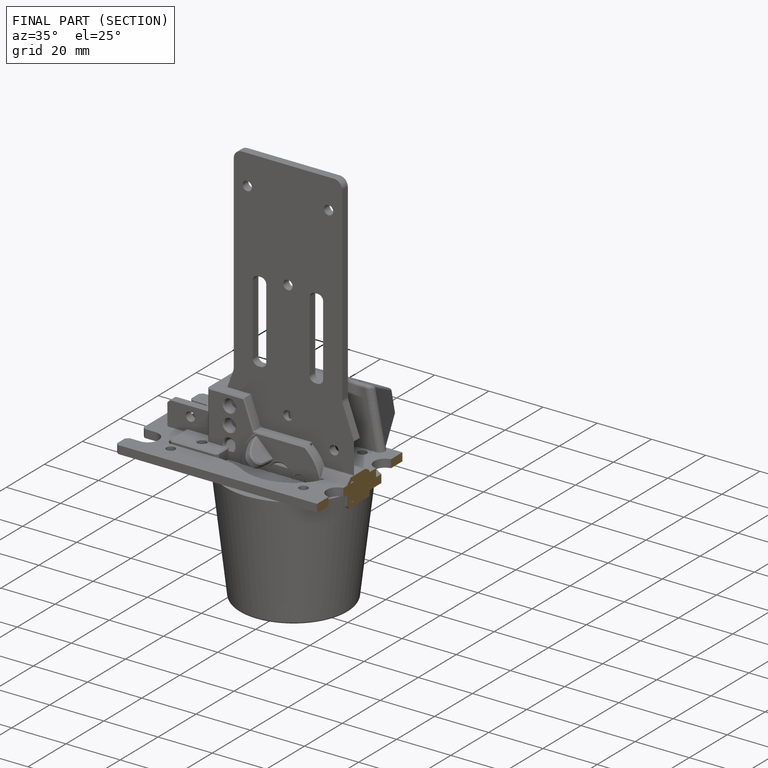
[diagram: finished part — half-section view (interior)]
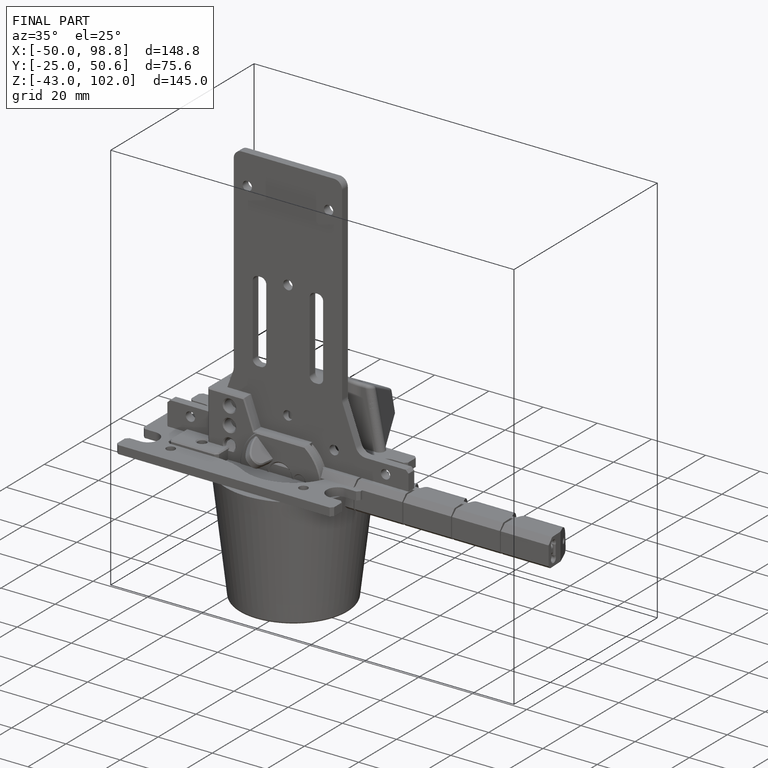
[diagram: finished part — iso view with bounding-box wireframe]
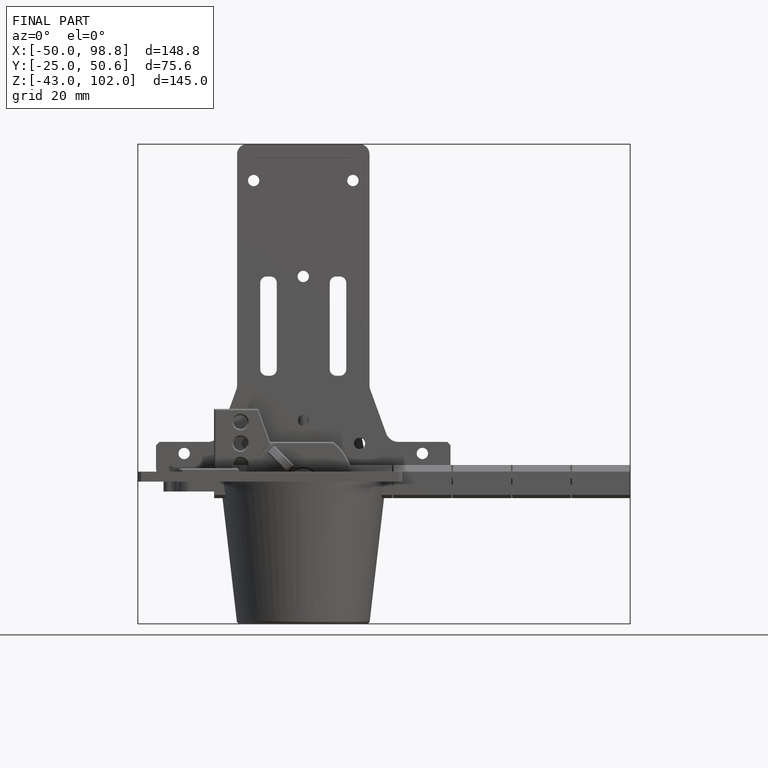
[diagram: finished part — front view with bounding-box wireframe]
